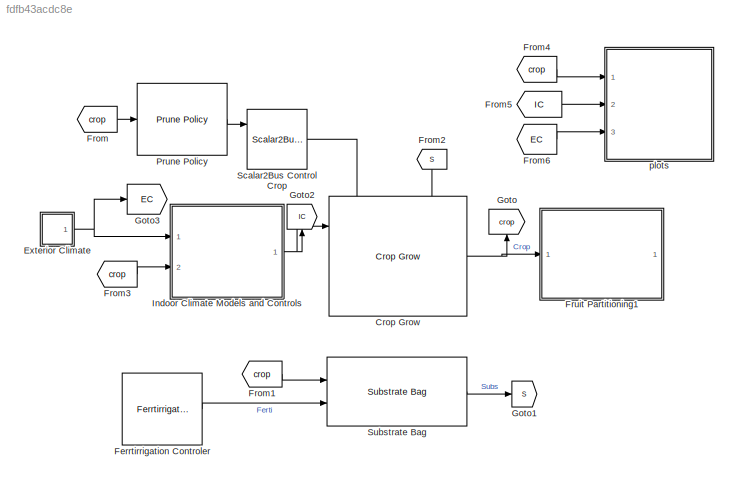
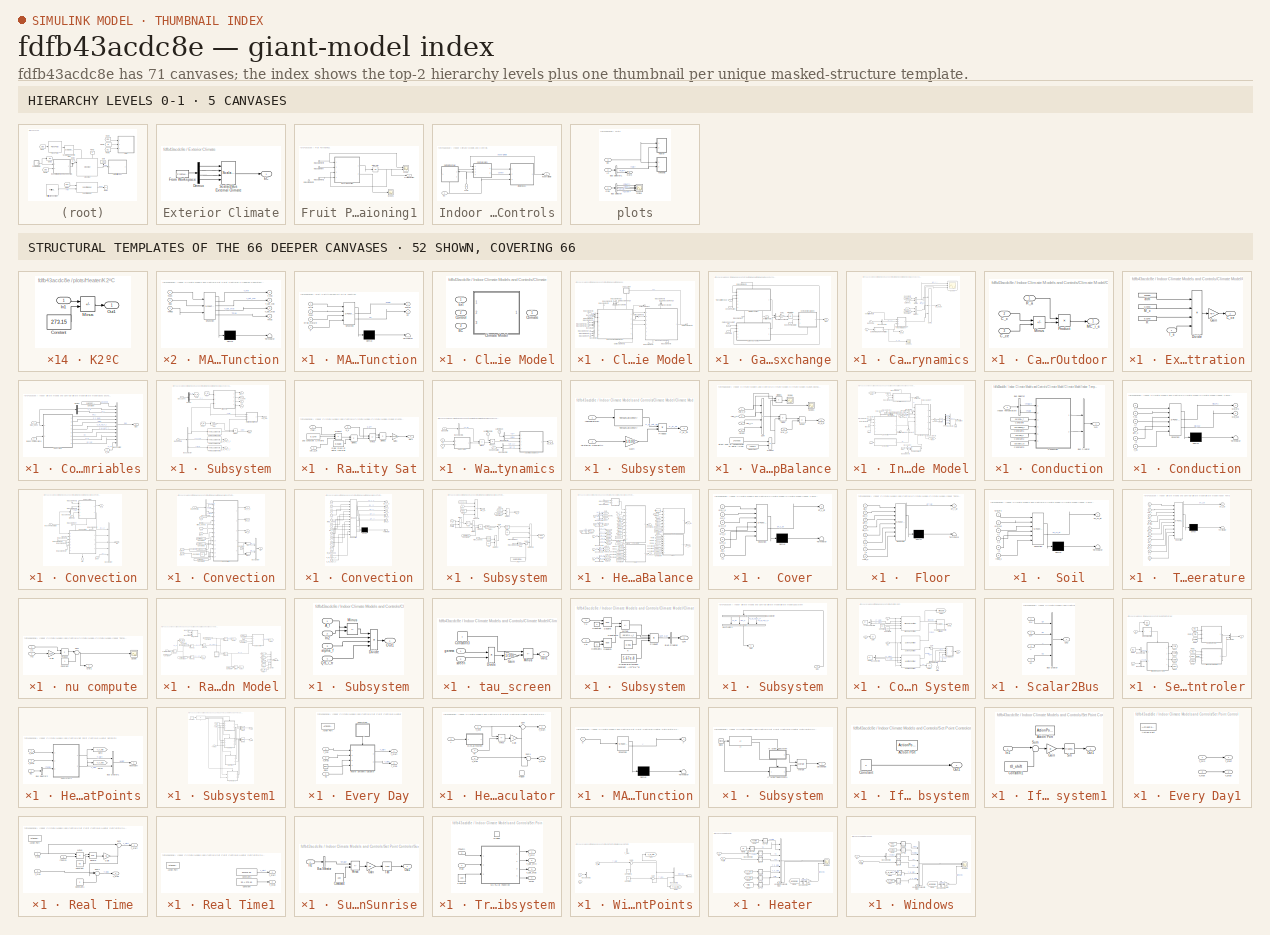
[diagram: thumbnail index - top-2 hierarchy levels (5 canvases) + 52 structural-template representatives of the remaining 66 canvases]
MODEL slx_fdfb43acdc8e
KIND model
CONFIG AbsTol = auto
CONFIG EnableMultiTasking = off
CONFIG FixedStep = auto
CONFIG MaxStep = auto
CONFIG MinStep = auto
CONFIG RelTol = 1e-3
CONFIG SampleTimeConstraint = Unconstrained
CONFIG SolverName = ode23
CONFIG StartTime = 0.0
CONFIG StopTime = tspan(end)
BLOCK [Reference] Crop Grow  REF=HORTISIM/Horticulture/Models/Crop Grow
  Ports = [3, 1]
  SourceBlock = HORTISIM/Horticulture/Models/Crop Grow
  SourceProductName = Horti Simulator
BLOCK [SubSystem] Exterior Climate
  NameLocation = left
  Ports = [0, 1]
  RequestExecContextInheritance = off
BLOCK [Demux] Exterior Climate/Demux
  Ports = [1, 4]
BLOCK [Outport] Exterior Climate/EC
BLOCK [FromWorkspace] Exterior Climate/From Workspace
  VariableName = EC
BLOCK [Reference] Exterior Climate/Scalar2Bus External Climate  REF=HORTISIM/Other 
Functions/Scalar2Bus
External Climate
  Ports = [4, 1]
  SourceBlock = HORTISIM/Other \nFunctions/Scalar2Bus\nExternal Climate
  SourceProductName = Horti Simulator
  SourceType = SubSystem
BLOCK [Reference] Ferrtirrigation Controler  REF=HORTISIM/Horticulture/Controls/Ferrtirrigation
 Controler
  NameLocation = top
  Ports = [0, 1]
  SourceBlock = HORTISIM/Horticulture/Controls/Ferrtirrigation\n Controler
  SourceProductName = Horti Simulator
BLOCK [From] From
  GotoTag = crop
BLOCK [From] From1
  GotoTag = crop
BLOCK [From] From2
  GotoTag = S
  NameLocation = left
BLOCK [From] From3
  GotoTag = crop
BLOCK [From] From4
  GotoTag = crop
BLOCK [From] From5
  GotoTag = IC
BLOCK [From] From6
  GotoTag = EC
BLOCK [SubSystem] Fruit Partitioning1
  AncestorBlock = HORTISIM/Horticulture/Models/Fruit Partitioning1
  Ports = [1, 1]
  RequestExecContextInheritance = off
BLOCK [Outport] Fruit Partitioning1/Fruit Distribution
BLOCK [Inport] Fruit Partitioning1/In Bus Element
BLOCK [Inport] Fruit Partitioning1/In Bus Element1
BLOCK [Inport] Fruit Partitioning1/In Bus Element3
BLOCK [Inport] Fruit Partitioning1/In Bus Element4
BLOCK [Integrator] Fruit Partitioning1/Integrator
  InitialCondition = 1e-3
  Ports = [1, 1]
BLOCK [SubSystem] Fruit Partitioning1/MATLAB Function
  ErrorFcn = Stateflow.Translate.translate
  PermitHierarchicalResolution = ExplicitOnly
  Ports = [4, 2]
  RequestExecContextInheritance = off
  SFBlockType = MATLAB Function
  TreatAsAtomicUnit = on
BLOCK [Demux] Fruit Partitioning1/MATLAB Function/ Demux 
  Outputs = 1
  Ports = [1, 1]
BLOCK [S-Function] Fruit Partitioning1/MATLAB Function/ SFunction 
  EnableBusSupport = on
  FunctionName = sf_sfun
  PortCounts = [4 3]
  Ports = [4, 3]
  SFcnIsStateOwnerBlock = off
  SFunctionDeploymentMode = off
  Tag = Stateflow S-Function 8
BLOCK [Terminator] Fruit Partitioning1/MATLAB Function/ Terminator 
BLOCK [Inport] Fruit Partitioning1/MATLAB Function/Cfruit
BLOCK [Inport] Fruit Partitioning1/MATLAB Function/Cfruit_mature
  Port = 3
BLOCK [Outport] Fruit Partitioning1/MATLAB Function/DT
  Port = 2
BLOCK [Inport] Fruit Partitioning1/MATLAB Function/T
  Port = 4
BLOCK [Inport] Fruit Partitioning1/MATLAB Function/Tsum
  Port = 2
BLOCK [Outport] Fruit Partitioning1/MATLAB Function/dCmdt
BLOCK [Scope] Fruit Partitioning1/Scope
  Floating = off
  NumInputPorts = 2
  Ports = [2]
  ScopeSpecificationString = Simulink.scopes.TimeScopeBlockCfg('CurrentConfiguration', extmgr.ConfigurationSet(extmgr.Configuration('Core','General UI',true),extmgr.Configuration('Core','Source UI',true),extmgr.Configuration('Sources','WiredSimulink',true,'DataLoggingVariableName','ScopeData2'),extmgr.Configuration('Visuals','Time Domain',true,'SerializedDisplays',{struct('MinYLimReal','-0.09261','MaxYLimReal','0.84345','YLab...<+1598ch>
BLOCK [Scope] Fruit Partitioning1/Scope1
  Floating = off
  NumInputPorts = 1
  Ports = [1]
  ScopeSpecificationString = Simulink.scopes.TimeScopeBlockCfg('CurrentConfiguration', extmgr.ConfigurationSet(extmgr.Configuration('Core','General UI',true),extmgr.Configuration('Core','Source UI',true),extmgr.Configuration('Sources','WiredSimulink',true,'DataLoggingVariableName','ScopeData1'),extmgr.Configuration('Visuals','Time Domain',true,'SerializedDisplays',{struct('MinYLimReal','-0.00625','MaxYLimReal','0.05625','YLab...<+1406ch>
BLOCK [Goto] Goto
  GotoTag = crop
  NameLocation = right
BLOCK [Goto] Goto1
  GotoTag = S
BLOCK [Goto] Goto2
  GotoTag = IC
  NameLocation = right
BLOCK [Goto] Goto3
  GotoTag = EC
BLOCK [SubSystem] Indoor Climate Models and Controls
  Ports = [2, 1]
  RequestExecContextInheritance = off
BLOCK [SubSystem] Indoor Climate Models and Controls/Climate Model
  LabelModeActiveChoice = Choice
  Ports = [3, 1]
  RequestExecContextInheritance = off
  Variant = on
  VariantControl = Choice
  VariantControlMode = label
BLOCK [Outport] Indoor Climate Models and Controls/Climate Model/Climate
BLOCK [SubSystem] Indoor Climate Models and Controls/Climate Model/Climate Model
  AncestorBlock = HORTISIM/Climate/Models/Climate Model
  Ports = [3, 1]
  RequestExecContextInheritance = off
  VariantControl = Choice
BLOCK [BusCreator] Indoor Climate Models and Controls/Climate Model/Climate Model/Bus Creator
  DisplayOption = bar
  InheritFromInputs = on
  Inputs = 3
  Ports = [3, 1]
BLOCK [BusCreator] Indoor Climate Models and Controls/Climate Model/Climate Model/Bus Creator1
  DisplayOption = bar
  InheritFromInputs = on
  Inputs = 3
  Ports = [3, 1]
BLOCK [BusCreator] Indoor Climate Models and Controls/Climate Model/Climate Model/Bus Creator2
  DisplayOption = bar
  InheritFromInputs = on
  Inputs = 2
  NameLocation = left
  Ports = [2, 1]
BLOCK [BusCreator] Indoor Climate Models and Controls/Climate Model/Climate Model/Bus Creator3
  DisplayOption = bar
  InheritFromInputs = on
  Inputs = 3
  NameLocation = left
  Ports = [3, 1]
BLOCK [BusCreator] Indoor Climate Models and Controls/Climate Model/Climate Model/Bus Creator4
  DisplayOption = bar
  InheritFromInputs = on
  Inputs = 2
  Ports = [2, 1]
BLOCK [SubSystem] Indoor Climate Models and Controls/Climate Model/Climate Model/Gases Exchange
  NameLocation = top
  PortSchema = {"entries":[{"content":{"sides":[{"content":{"connectorIds":["In1","In2","In3","In4"]},"type":"ConnectorPlacement.EquallySpacedRectSide","uuid":"550da9a1-5f22-4db3-9ee3-e3750278f626"},{"content":{"connectorIds":["Out1"],"side":"RIGHT"},"type":"ConnectorPlacement.EquallySpacedRectSide","uuid":"cf559ec0-337d-42e7-96bb-a49ff9e682f6"},{"content":{"connectorIds":["In5"],"side":"TOP"},"type":"ConnectorP...<+418ch>
  Ports = [7, 1]
  RequestExecContextInheritance = off
BLOCK [Outport] Indoor Climate Models and Controls/Climate Model/Climate Model/Gases Exchange/ Gas
BLOCK [Inport] Indoor Climate Models and Controls/Climate Model/Climate Model/Gases Exchange/CO2 Pump
  Port = 7
BLOCK [Inport] Indoor Climate Models and Controls/Climate Model/Climate Model/Gases Exchange/Carbon Consumption
  Port = 6
BLOCK [SubSystem] Indoor Climate Models and Controls/Climate Model/Climate Model/Gases Exchange/Carbon Dynamics
  PortSchema = {"entries":[{"content":{"sides":[{"content":{"connectorIds":["In1","In2","In3"]},"type":"ConnectorPlacement.EquallySpacedRectSide","uuid":"ce6da3e3-21f1-4394-8848-c3b9ed37cfe4"},{"content":{"connectorIds":["Out1","Out2"],"side":"RIGHT"},"type":"ConnectorPlacement.EquallySpacedRectSide","uuid":"ff9d1dc7-ad1d-4f02-8424-55a857bc099f"},{"content":{"connectorIds":["In4","In5"],"side":"TOP"},"type":"Con...<+270ch>
  Ports = [5, 2]
  RequestExecContextInheritance = off
BLOCK [BusSelector] Indoor Climate Models and Controls/Climate Model/Climate Model/Gases Exchange/Carbon Dynamics/Bus Selector1
  OutputSignals = C_c
  Ports = [1, 1]
BLOCK [Outport] Indoor Climate Models and Controls/Climate Model/Climate Model/Gases Exchange/Carbon Dynamics/C_ce
  Port = 2
BLOCK [SubSystem] Indoor Climate Models and Controls/Climate Model/Climate Model/Gases Exchange/Carbon Dynamics/Carbon Exchange Indoor-Outdoor
  Ports = [3, 1]
  RequestExecContextInheritance = off
BLOCK [Inport] Indoor Climate Models and Controls/Climate Model/Climate Model/Gases Exchange/Carbon Dynamics/Carbon Exchange Indoor-Outdoor/C_c
  Port = 2
BLOCK [Inport] Indoor Climate Models and Controls/Climate Model/Climate Model/Gases Exchange/Carbon Dynamics/Carbon Exchange Indoor-Outdoor/C_ce
  Port = 3
BLOCK [Outport] Indoor Climate Models and Controls/Climate Model/Climate Model/Gases Exchange/Carbon Dynamics/Carbon Exchange Indoor-Outdoor/MC_i_e
BLOCK [Sum] Indoor Climate Models and Controls/Climate Model/Climate Model/Gases Exchange/Carbon Dynamics/Carbon Exchange Indoor-Outdoor/Minus
  IconShape = rectangular
  Inputs = +-
  Ports = [2, 1]
BLOCK [Product] Indoor Climate Models and Controls/Climate Model/Climate Model/Gases Exchange/Carbon Dynamics/Carbon Exchange Indoor-Outdoor/Product
  Ports = [2, 1]
BLOCK [Inport] Indoor Climate Models and Controls/Climate Model/Climate Model/Gases Exchange/Carbon Dynamics/Carbon Exchange Indoor-Outdoor/R_a
BLOCK [Inport] Indoor Climate Models and Controls/Climate Model/Climate Model/Gases Exchange/Carbon Dynamics/CarbonC
BLOCK [Constant] Indoor Climate Models and Controls/Climate Model/Climate Model/Gases Exchange/Carbon Dynamics/Constant
  Value = params.V
BLOCK [Constant] Indoor Climate Models and Controls/Climate Model/Climate Model/Gases Exchange/Carbon Dynamics/Constant1
  Value = params.V
BLOCK [Product] Indoor Climate Models and Controls/Climate Model/Climate Model/Gases Exchange/Carbon Dynamics/Divide
  Inputs = /*
  Ports = [2, 1]
BLOCK [Product] Indoor Climate Models and Controls/Climate Model/Climate Model/Gases Exchange/Carbon Dynamics/Divide1
  Inputs = */
  Ports = [2, 1]
BLOCK [SubSystem] Indoor Climate Models and Controls/Climate Model/Climate Model/Gases Exchange/Carbon Dynamics/External CO2 Concentration
  Ports = [1, 1]
  RequestExecContextInheritance = off
BLOCK [Outport] Indoor Climate Models and Controls/Climate Model/Climate Model/Gases Exchange/Carbon Dynamics/External CO2 Concentration/C_ce
BLOCK [Product] Indoor Climate Models and Controls/Climate Model/Climate Model/Gases Exchange/Carbon Dynamics/External CO2 Concentration/Divide
  Inputs = **//
  Ports = [4, 1]
BLOCK [Gain] Indoor Climate Models and Controls/Climate Model/Climate Model/Gases Exchange/Carbon Dynamics/External CO2 Concentration/Gain
  Gain = 4e-4
BLOCK [Constant] Indoor Climate Models and Controls/Climate Model/Climate Model/Gases Exchange/Carbon Dynamics/External CO2 Concentration/M_c
  Value = 0.0440
BLOCK [Constant] Indoor Climate Models and Controls/Climate Model/Climate Model/Gases Exchange/Carbon Dynamics/External CO2 Concentration/R
  Value = 8.3140
BLOCK [Inport] Indoor Climate Models and Controls/Climate Model/Climate Model/Gases Exchange/Carbon Dynamics/External CO2 Concentration/T_e
BLOCK [Constant] Indoor Climate Models and Controls/Climate Model/Climate Model/Gases Exchange/Carbon Dynamics/External CO2 Concentration/atm
  Value = 101300
BLOCK [Inport] Indoor Climate Models and Controls/Climate Model/Climate Model/Gases Exchange/Carbon Dynamics/GasComp
  Port = 3
BLOCK [Inport] Indoor Climate Models and Controls/Climate Model/Climate Model/Gases Exchange/Carbon Dynamics/MC_cc_i
  Port = 2
BLOCK [Scope] Indoor Climate Models and Controls/Climate Model/Climate Model/Gases Exchange/Carbon Dynamics/Scope
  Floating = off
  NumInputPorts = 3
  Ports = [3]
  ScopeSpecificationString = Simulink.scopes.TimeScopeBlockCfg('CurrentConfiguration', extmgr.ConfigurationSet(extmgr.Configuration('Core','General UI',true),extmgr.Configuration('Core','Source UI',true),extmgr.Configuration('Sources','WiredSimulink',true,'DataLoggingVariableName','ScopeData9'),extmgr.Configuration('Visuals','Time Domain',true,'SerializedDisplays',{struct('MinYLimReal','-0.00000004','MaxYLimReal','0.000000016...<+2820ch>
BLOCK [Scope] Indoor Climate Models and Controls/Climate Model/Climate Model/Gases Exchange/Carbon Dynamics/Scope1
  Floating = off
  NumInputPorts = 1
  Ports = [1]
  ScopeSpecificationString = Simulink.scopes.TimeScopeBlockCfg('CurrentConfiguration', extmgr.ConfigurationSet(extmgr.Configuration('Core','General UI',true),extmgr.Configuration('Core','Source UI',true),extmgr.Configuration('Sources','WiredSimulink',true,'DataLoggingVariableName','ScopeData1'),extmgr.Configuration('Visuals','Time Domain',true,'SerializedDisplays',{struct('MinYLimReal','0.000723','MaxYLimReal','0.000797','YLa...<+1423ch>
BLOCK [Sum] Indoor Climate Models and Controls/Climate Model/Climate Model/Gases Exchange/Carbon Dynamics/Sum1
  IconShape = rectangular
  Inputs = |++-
  Ports = [3, 1]
BLOCK [Inport] Indoor Climate Models and Controls/Climate Model/Climate Model/Gases Exchange/Carbon Dynamics/Te
  Port = 4
BLOCK [Inport] Indoor Climate Models and Controls/Climate Model/Climate Model/Gases Exchange/Carbon Dynamics/Ventilation Rate
  Port = 5
BLOCK [Outport] Indoor Climate Models and Controls/Climate Model/Climate Model/Gases Exchange/Carbon Dynamics/dC_c_dt
BLOCK [SubSystem] Indoor Climate Models and Controls/Climate Model/Climate Model/Gases Exchange/Compute Mid Variables
  PortSchema = {"entries":[{"content":{"sides":[{"content":{"connectorIds":["In1","In2"]},"type":"ConnectorPlacement.EquallySpacedRectSide","uuid":"c9e251e2-f19d-4856-b15c-3b9f1eb64f83"},{"content":{"connectorIds":["Out1"],"side":"RIGHT"},"type":"ConnectorPlacement.EquallySpacedRectSide","uuid":"10734817-c937-42fb-8ae5-9505620c6f0f"},{"content":{"connectorIds":[],"side":"TOP"},"type":"ConnectorPlacement.EquallyS...<+395ch>
  Ports = [3, 1]
  RequestExecContextInheritance = off
BLOCK [BusCreator] Indoor Climate Models and Controls/Climate Model/Climate Model/Gases Exchange/Compute Mid Variables/Bus Creator
  DisplayOption = bar
  InheritFromInputs = on
  Inputs = 12
  Ports = [12, 1]
BLOCK [Inport] Indoor Climate Models and Controls/Climate Model/Climate Model/Gases Exchange/Compute Mid Variables/C_ce
  Port = 3
BLOCK [Constant] Indoor Climate Models and Controls/Climate Model/Climate Model/Gases Exchange/Compute Mid Variables/Constant
  Value = params.int_air_speed
BLOCK [Demux] Indoor Climate Models and Controls/Climate Model/Climate Model/Gases Exchange/Compute Mid Variables/Demux
  Outputs = 2
  Ports = [1, 2]
BLOCK [Outport] Indoor Climate Models and Controls/Climate Model/Climate Model/Gases Exchange/Compute Mid Variables/Gas
BLOCK [Inport] Indoor Climate Models and Controls/Climate Model/Climate Model/Gases Exchange/Compute Mid Variables/Gas_Conc
BLOCK [Inport] Indoor Climate Models and Controls/Climate Model/Climate Model/Gases Exchange/Compute Mid Variables/Indoor Temperature
  Port = 2
BLOCK [SubSystem] Indoor Climate Models and Controls/Climate Model/Climate Model/Gases Exchange/Compute Mid Variables/Subsystem
  Ports = [2, 8]
  RequestExecContextInheritance = off
BLOCK [SubSystem] Indoor Climate Models and Controls/Climate Model/Climate Model/Gases Exchange/Compute Mid Variables/Subsystem/Air Density
  ErrorFcn = Stateflow.Translate.translate
  PermitHierarchicalResolution = ExplicitOnly
  Ports = [3, 4]
  RequestExecContextInheritance = off
  SFBlockType = MATLAB Function
  TreatAsAtomicUnit = on
BLOCK [Demux] Indoor Climate Models and Controls/Climate Model/Climate Model/Gases Exchange/Compute Mid Variables/Subsystem/Air Density/ Demux 
  Outputs = 1
  Ports = [1, 1]
BLOCK [S-Function] Indoor Climate Models and Controls/Climate Model/Climate Model/Gases Exchange/Compute Mid Variables/Subsystem/Air Density/ SFunction 
  EnableBusSupport = on
  FunctionName = sf_sfun
  PortCounts = [3 5]
  Ports = [3, 5]
  SFcnIsStateOwnerBlock = off
  SFunctionDeploymentMode = off
  Tag = Stateflow S-Function 4
BLOCK [Terminator] Indoor Climate Models and Controls/Climate Model/Climate Model/Gases Exchange/Compute Mid Variables/Subsystem/Air Density/ Terminator 
BLOCK [Inport] Indoor Climate Models and Controls/Climate Model/Climate Model/Gases Exchange/Compute Mid Variables/Subsystem/Air Density/C_c
  Port = 2
BLOCK [Outport] Indoor Climate Models and Controls/Climate Model/Climate Model/Gases Exchange/Compute Mid Variables/Subsystem/Air Density/C_c_ppm
  Port = 2
BLOCK [Inport] Indoor Climate Models and Controls/Climate Model/Climate Model/Gases Exchange/Compute Mid Variables/Subsystem/Air Density/C_w
BLOCK [Inport] Indoor Climate Models and Controls/Climate Model/Climate Model/Gases Exchange/Compute Mid Variables/Subsystem/Air Density/T_i
  Port = 3
BLOCK [Outport] Indoor Climate Models and Controls/Climate Model/Climate Model/Gases Exchange/Compute Mid Variables/Subsystem/Air Density/p_a
  Port = 4
BLOCK [Outport] Indoor Climate Models and Controls/Climate Model/Climate Model/Gases Exchange/Compute Mid Variables/Subsystem/Air Density/rho_i
BLOCK [Outport] Indoor Climate Models and Controls/Climate Model/Climate Model/Gases Exchange/Compute Mid Variables/Subsystem/Air Density/xH
  Port = 3
BLOCK [BusSelector] Indoor Climate Models and Controls/Climate Model/Climate Model/Gases Exchange/Compute Mid Variables/Subsystem/Bus Selector
  OutputSignals = Tair,Tcover,Tfloor
  Ports = [1, 3]
BLOCK [Outport] Indoor Climate Models and Controls/Climate Model/Climate Model/Gases Exchange/Compute Mid Variables/Subsystem/C_c_ppm
  Port = 2
BLOCK [Outport] Indoor Climate Models and Controls/Climate Model/Climate Model/Gases Exchange/Compute Mid Variables/Subsystem/C_w_sat_T_c
  Port = 4
BLOCK [Outport] Indoor Climate Models and Controls/Climate Model/Climate Model/Gases Exchange/Compute Mid Variables/Subsystem/C_w_sat_T_f
  Port = 5
BLOCK [Demux] Indoor Climate Models and Controls/Climate Model/Climate Model/Gases Exchange/Compute Mid Variables/Subsystem/Demux
  Outputs = 2
  Ports = [1, 2]
BLOCK [Product] Indoor Climate Models and Controls/Climate Model/Climate Model/Gases Exchange/Compute Mid Variables/Subsystem/Divide
  Inputs = */
  Ports = [2, 1]
BLOCK [From] Indoor Climate Models and Controls/Climate Model/Climate Model/Gases Exchange/Compute Mid Variables/Subsystem/From
  GotoTag = C_w
BLOCK [From] Indoor Climate Models and Controls/Climate Model/Climate Model/Gases Exchange/Compute Mid Variables/Subsystem/From2
  GotoTag = C_w
BLOCK [Gain] Indoor Climate Models and Controls/Climate Model/Climate Model/Gases Exchange/Compute Mid Variables/Subsystem/Gain
  Gain = 100
BLOCK [Inport] Indoor Climate Models and Controls/Climate Model/Climate Model/Gases Exchange/Compute Mid Variables/Subsystem/Gas_Conc
BLOCK [Goto] Indoor Climate Models and Controls/Climate Model/Climate Model/Gases Exchange/Compute Mid Variables/Subsystem/Goto
  GotoTag = C_w
BLOCK [Outport] Indoor Climate Models and Controls/Climate Model/Climate Model/Gases Exchange/Compute Mid Variables/Subsystem/HRInt
  Port = 3
BLOCK [Inport] Indoor Climate Models and Controls/Climate Model/Climate Model/Gases Exchange/Compute Mid Variables/Subsystem/IndoorTemp
  Port = 2
BLOCK [SubSystem] Indoor Climate Models and Controls/Climate Model/Climate Model/Gases Exchange/Compute Mid Variables/Subsystem/Ratio of Humidity Sat
  Ports = [3, 1]
  RequestExecContextInheritance = off
BLOCK [Constant] Indoor Climate Models and Controls/Climate Model/Climate Model/Gases Exchange/Compute Mid Variables/Subsystem/Ratio of Humidity Sat/ molar mass of water [kg//mol]
  Value = 0.0180
BLOCK [Inport] Indoor Climate Models and Controls/Climate Model/Climate Model/Gases Exchange/Compute Mid Variables/Subsystem/Ratio of Humidity Sat/<Tair>
BLOCK [Product] Indoor Climate Models and Controls/Climate Model/Climate Model/Gases Exchange/Compute Mid Variables/Subsystem/Ratio of Humidity Sat/Divide1
  Inputs = */
  Ports = [2, 1]
BLOCK [Product] Indoor Climate Models and Controls/Climate Model/Climate Model/Gases Exchange/Compute Mid Variables/Subsystem/Ratio of Humidity Sat/Divide2
  Inputs = */
  Ports = [2, 1]
BLOCK [Gain] Indoor Climate Models and Controls/Climate Model/Climate Model/Gases Exchange/Compute Mid Variables/Subsystem/Ratio of Humidity Sat/Gain1
  Gain = 0.62198
BLOCK [Sum] Indoor Climate Models and Controls/Climate Model/Climate Model/Gases Exchange/Compute Mid Variables/Subsystem/Ratio of Humidity Sat/Minus
  IconShape = rectangular
  Inputs = +-
  Ports = [2, 1]
BLOCK [Outport] Indoor Climate Models and Controls/Climate Model/Climate Model/Gases Exchange/Compute Mid Variables/Subsystem/Ratio of Humidity Sat/Out1
BLOCK [Product] Indoor Climate Models and Controls/Climate Model/Climate Model/Gases Exchange/Compute Mid Variables/Subsystem/Ratio of Humidity Sat/Product
  Inputs = 3
  Ports = [3, 1]
BLOCK [Constant] Indoor Climate Models and Controls/Climate Model/Climate Model/Gases Exchange/Compute Mid Variables/Subsystem/Ratio of Humidity Sat/gas constant [J//mol//K]
  Value = 8.3140
BLOCK [Inport] Indoor Climate Models and Controls/Climate Model/Climate Model/Gases Exchange/Compute Mid Variables/Subsystem/Ratio of Humidity Sat/p_a
  Port = 2
BLOCK [Inport] Indoor Climate Models and Controls/Climate Model/Climate Model/Gases Exchange/Compute Mid Variables/Subsystem/Ratio of Humidity Sat/sat_C_w
  Port = 3
BLOCK [Reference] Indoor Climate Models and Controls/Climate Model/Climate Model/Gases Exchange/Compute Mid Variables/Subsystem/Temp2SatDensity  REF=HORTISIM/Other 
Functions/Temp2SatDensity
  Ports = [1, 1]
  SourceBlock = HORTISIM/Other \nFunctions/Temp2SatDensity
  SourceProductName = Horti Simulator
  SourceType = SubSystem
BLOCK [Reference] Indoor Climate Models and Controls/Climate Model/Climate Model/Gases Exchange/Compute Mid Variables/Subsystem/Temp2SatDensity1  REF=HORTISIM/Other 
Functions/Temp2SatDensity
  Ports = [1, 1]
  SourceBlock = HORTISIM/Other \nFunctions/Temp2SatDensity
  SourceProductName = Horti Simulator
  SourceType = SubSystem
BLOCK [Reference] Indoor Climate Models and Controls/Climate Model/Climate Model/Gases Exchange/Compute Mid Variables/Subsystem/Temp2SatDensity2  REF=HORTISIM/Other 
Functions/Temp2SatDensity
  Ports = [1, 1]
  SourceBlock = HORTISIM/Other \nFunctions/Temp2SatDensity
  SourceProductName = Horti Simulator
  SourceType = SubSystem
BLOCK [Outport] Indoor Climate Models and Controls/Climate Model/Climate Model/Gases Exchange/Compute Mid Variables/Subsystem/p_a
  Port = 7
BLOCK [Outport] Indoor Climate Models and Controls/Climate Model/Climate Model/Gases Exchange/Compute Mid Variables/Subsystem/rho_i
BLOCK [Outport] Indoor Climate Models and Controls/Climate Model/Climate Model/Gases Exchange/Compute Mid Variables/Subsystem/xH
  Port = 6
BLOCK [Outport] Indoor Climate Models and Controls/Climate Model/Climate Model/Gases Exchange/Compute Mid Variables/Subsystem/xH_sat
  Port = 8
BLOCK [Inport] Indoor Climate Models and Controls/Climate Model/Climate Model/Gases Exchange/Condensation
  Port = 4
BLOCK [Gain] Indoor Climate Models and Controls/Climate Model/Climate Model/Gases Exchange/Gain1
  Gain = 24*3600
BLOCK [Inport] Indoor Climate Models and Controls/Climate Model/Climate Model/Gases Exchange/In Bus Element
  Port = 5
BLOCK [Inport] Indoor Climate Models and Controls/Climate Model/Climate Model/Gases Exchange/In Bus Element1
  Port = 5
BLOCK [Inport] Indoor Climate Models and Controls/Climate Model/Climate Model/Gases Exchange/Indoor Temperature
BLOCK [Integrator] Indoor Climate Models and Controls/Climate Model/Climate Model/Gases Exchange/Integrator1
  AbsoluteTolerance = 1e-5
  InitialCondition = x0.G0
  Ports = [1, 1]
BLOCK [Inport] Indoor Climate Models and Controls/Climate Model/Climate Model/Gases Exchange/Transpiration Heat
  Port = 2
BLOCK [Concatenate] Indoor Climate Models and Controls/Climate Model/Climate Model/Gases Exchange/Vector Concatenate
  Ports = [2, 1]
BLOCK [Inport] Indoor Climate Models and Controls/Climate Model/Climate Model/Gases Exchange/Ventilation Rate
  NameLocation = top
  Port = 3
BLOCK [SubSystem] Indoor Climate Models and Controls/Climate Model/Climate Model/Gases Exchange/Water Dynamics
  PortSchema = {"entries":[{"content":{"sides":[{"content":{"connectorIds":["In1","In2","In3"]},"type":"ConnectorPlacement.EquallySpacedRectSide","uuid":"ce6da3e3-21f1-4394-8848-c3b9ed37cfe4"},{"content":{"connectorIds":["Out1"],"side":"RIGHT"},"type":"ConnectorPlacement.EquallySpacedRectSide","uuid":"ff9d1dc7-ad1d-4f02-8424-55a857bc099f"},{"content":{"connectorIds":["In4"],"side":"TOP"},"type":"ConnectorPlaceme...<+412ch>
  Ports = [6, 1]
  RequestExecContextInheritance = off
BLOCK [BusSelector] Indoor Climate Models and Controls/Climate Model/Climate Model/Gases Exchange/Water Dynamics/Bus Selector
  OutputSignals = QT,Qfog
  Ports = [1, 2]
BLOCK [BusSelector] Indoor Climate Models and Controls/Climate Model/Climate Model/Gases Exchange/Water Dynamics/Bus Selector1
  OutputSignals = C_w
  Ports = [1, 1]
BLOCK [BusSelector] Indoor Climate Models and Controls/Climate Model/Climate Model/Gases Exchange/Water Dynamics/Bus Selector2
  OutputSignals = QP_i_c,QP_i_f
  Ports = [1, 2]
BLOCK [Inport] Indoor Climate Models and Controls/Climate Model/Climate Model/Gases Exchange/Water Dynamics/Condensation
  Port = 3
BLOCK [Inport] Indoor Climate Models and Controls/Climate Model/Climate Model/Gases Exchange/Water Dynamics/GasComp
BLOCK [Inport] Indoor Climate Models and Controls/Climate Model/Climate Model/Gases Exchange/Water Dynamics/He
  Port = 4
BLOCK [Inport] Indoor Climate Models and Controls/Climate Model/Climate Model/Gases Exchange/Water Dynamics/Latent Heat
  NameLocation = left
  Port = 2
BLOCK [Sum] Indoor Climate Models and Controls/Climate Model/Climate Model/Gases Exchange/Water Dynamics/Minus
  IconShape = rectangular
  Inputs = +-
  Ports = [2, 1]
BLOCK [Product] Indoor Climate Models and Controls/Climate Model/Climate Model/Gases Exchange/Water Dynamics/Product
  Ports = [2, 1]
BLOCK [SubSystem] Indoor Climate Models and Controls/Climate Model/Climate Model/Gases Exchange/Water Dynamics/Subsystem
  Ports = [2, 1]
  RequestExecContextInheritance = off
BLOCK [Inport] Indoor Climate Models and Controls/Climate Model/Climate Model/Gases Exchange/Water Dynamics/Subsystem/<Exterior Humidity>
  Port = 2
BLOCK [Inport] Indoor Climate Models and Controls/Climate Model/Climate Model/Gases Exchange/Water Dynamics/Subsystem/<Temperature>
BLOCK [Outport] Indoor Climate Models and Controls/Climate Model/Climate Model/Gases Exchange/Water Dynamics/Subsystem/C_w_Te
BLOCK [Gain] Indoor Climate Models and Controls/Climate Model/Climate Model/Gases Exchange/Water Dynamics/Subsystem/Gain
  Gain = 1/100
BLOCK [Product] Indoor Climate Models and Controls/Climate Model/Climate Model/Gases Exchange/Water Dynamics/Subsystem/Product
  Ports = [2, 1]
BLOCK [Reference] Indoor Climate Models and Controls/Climate Model/Climate Model/Gases Exchange/Water Dynamics/Subsystem/Temp2SatDensity  REF=HORTISIM/Other 
Functions/Temp2SatDensity
  Ports = [1, 1]
  SourceBlock = HORTISIM/Other \nFunctions/Temp2SatDensity
  SourceProductName = Horti Simulator
  SourceType = SubSystem
BLOCK [Inport] Indoor Climate Models and Controls/Climate Model/Climate Model/Gases Exchange/Water Dynamics/Te
  Port = 5
BLOCK [SubSystem] Indoor Climate Models and Controls/Climate Model/Climate Model/Gases Exchange/Water Dynamics/Vapor Mass Balance
  Ports = [5, 1]
  RequestExecContextInheritance = off
BLOCK [Inport] Indoor Climate Models and Controls/Climate Model/Climate Model/Gases Exchange/Water Dynamics/Vapor Mass Balance/<QP_i_c>
  Port = 4
BLOCK [Inport] Indoor Climate Models and Controls/Climate Model/Climate Model/Gases Exchange/Water Dynamics/Vapor Mass Balance/<QP_i_f>
  Port = 5
BLOCK [Inport] Indoor Climate Models and Controls/Climate Model/Climate Model/Gases Exchange/Water Dynamics/Vapor Mass Balance/<QT_v_i>
BLOCK [Inport] Indoor Climate Models and Controls/Climate Model/Climate Model/Gases Exchange/Water Dynamics/Vapor Mass Balance/<Qfog>
  Port = 2
BLOCK [Constant] Indoor Climate Models and Controls/Climate Model/Climate Model/Gases Exchange/Water Dynamics/Vapor Mass Balance/Constant1
  Value = params.V
BLOCK [Product] Indoor Climate Models and Controls/Climate Model/Climate Model/Gases Exchange/Water Dynamics/Vapor Mass Balance/Divide
  Inputs = */
  Ports = [2, 1]
BLOCK [Product] Indoor Climate Models and Controls/Climate Model/Climate Model/Gases Exchange/Water Dynamics/Vapor Mass Balance/Divide1
  Inputs = */
  Ports = [2, 1]
BLOCK [Inport] Indoor Climate Models and Controls/Climate Model/Climate Model/Gases Exchange/Water Dynamics/Vapor Mass Balance/MW_i_e
  Port = 3
BLOCK [Sum] Indoor Climate Models and Controls/Climate Model/Climate Model/Gases Exchange/Water Dynamics/Vapor Mass Balance/Minus
  IconShape = rectangular
  Inputs = +-
  Ports = [2, 1]
BLOCK [Product] Indoor Climate Models and Controls/Climate Model/Climate Model/Gases Exchange/Water Dynamics/Vapor Mass Balance/Product
  Ports = [2, 1]
BLOCK [Scope] Indoor Climate Models and Controls/Climate Model/Climate Model/Gases Exchange/Water Dynamics/Vapor Mass Balance/Scope
  Floating = off
  NumInputPorts = 1
  Ports = [1]
  ScopeSpecificationString = Simulink.scopes.TimeScopeBlockCfg('CurrentConfiguration', extmgr.ConfigurationSet(extmgr.Configuration('Core','General UI',true),extmgr.Configuration('Core','Source UI',true),extmgr.Configuration('Sources','WiredSimulink',true,'DataLoggingVariableName','ScopeData1'),extmgr.Configuration('Visuals','Time Domain',true,'SerializedDisplays',{struct('MinYLimReal','-0.00000004','MaxYLimReal','0.00000038'...<+1412ch>
BLOCK [Scope] Indoor Climate Models and Controls/Climate Model/Climate Model/Gases Exchange/Water Dynamics/Vapor Mass Balance/Scope1
  Floating = off
  NumInputPorts = 1
  Ports = [1]
  ScopeSpecificationString = Simulink.scopes.TimeScopeBlockCfg('CurrentConfiguration', extmgr.ConfigurationSet(extmgr.Configuration('Core','General UI',true),extmgr.Configuration('Core','Source UI',true),extmgr.Configuration('Sources','WiredSimulink',true,'DataLoggingVariableName','ScopeData4'),extmgr.Configuration('Visuals','Time Domain',true,'SerializedDisplays',{struct('MinYLimReal','-2530.14826','MaxYLimReal','22771.3343'...<+1418ch>
BLOCK [Sum] Indoor Climate Models and Controls/Climate Model/Climate Model/Gases Exchange/Water Dynamics/Vapor Mass Balance/Sum
  IconShape = rectangular
  Inputs = |+--+
  Ports = [4, 1]
BLOCK [Outport] Indoor Climate Models and Controls/Climate Model/Climate Model/Gases Exchange/Water Dynamics/Vapor Mass Balance/dC_w_dt
BLOCK [Constant] Indoor Climate Models and Controls/Climate Model/Climate Model/Gases Exchange/Water Dynamics/Vapor Mass Balance/latent heat of condensation of water [J//kg]
  Value = 2437000
BLOCK [Inport] Indoor Climate Models and Controls/Climate Model/Climate Model/Gases Exchange/Water Dynamics/Ventilation Rate
  NameLocation = left
  Port = 6
BLOCK [Outport] Indoor Climate Models and Controls/Climate Model/Climate Model/Gases Exchange/Water Dynamics/dC_w_dt
BLOCK [Inport] Indoor Climate Models and Controls/Climate Model/Climate Model/In Bus Element1
BLOCK [Inport] Indoor Climate Models and Controls/Climate Model/Climate Model/In Bus Element10
  NameLocation = left
  Port = 3
BLOCK [Inport] Indoor Climate Models and Controls/Climate Model/Climate Model/In Bus Element11
  Port = 3
BLOCK [Inport] Indoor Climate Models and Controls/Climate Model/Climate Model/In Bus Element12
  Port = 3
BLOCK [Inport] Indoor Climate Models and Controls/Climate Model/Climate Model/In Bus Element13
  Port = 3
BLOCK [Inport] Indoor Climate Models and Controls/Climate Model/Climate Model/In Bus Element14
BLOCK [Inport] Indoor Climate Models and Controls/Climate Model/Climate Model/In Bus Element15
  NameLocation = left
  Port = 2
BLOCK [Inport] Indoor Climate Models and Controls/Climate Model/Climate Model/In Bus Element16
  NameLocation = left
  Port = 2
BLOCK [Inport] Indoor Climate Models and Controls/Climate Model/Climate Model/In Bus Element2
BLOCK [Inport] Indoor Climate Models and Controls/Climate Model/Climate Model/In Bus Element3
  NameLocation = left
  Port = 2
BLOCK [Inport] Indoor Climate Models and Controls/Climate Model/Climate Model/In Bus Element4
  Port = 2
BLOCK [Inport] Indoor Climate Models and Controls/Climate Model/Climate Model/In Bus Element5
  NameLocation = left
  Port = 2
BLOCK [Inport] Indoor Climate Models and Controls/Climate Model/Climate Model/In Bus Element6
  Port = 2
BLOCK [Inport] Indoor Climate Models and Controls/Climate Model/Climate Model/In Bus Element7
BLOCK [Inport] Indoor Climate Models and Controls/Climate Model/Climate Model/In Bus Element8
  Port = 2
BLOCK [Inport] Indoor Climate Models and Controls/Climate Model/Climate Model/In Bus Element9
  NameLocation = left
  Port = 3
BLOCK [SubSystem] Indoor Climate Models and Controls/Climate Model/Climate Model/Indoor Temperature Model
  PortSchema = {"entries":[{"content":{"sides":[{"content":{"connectorIds":["In1","In2","In3"]},"type":"ConnectorPlacement.EquallySpacedRectSide","uuid":"402556d7-b277-4cb3-8556-883bae99c69c"},{"content":{"connectorIds":["Out1","Out2","Out3","Out4"],"side":"RIGHT"},"type":"ConnectorPlacement.EquallySpacedRectSide","uuid":"e8ec9f82-8759-4d98-a5e5-ef4db996ec8c"},{"content":{"connectorIds":["In4","In5","In6"],"side...<+440ch>
  Ports = [6, 5]
  RequestExecContextInheritance = off
BLOCK [BusCreator] Indoor Climate Models and Controls/Climate Model/Climate Model/Indoor Temperature Model/Bus Creator
  DisplayOption = bar
  InheritFromInputs = on
  Inputs = 2
  Ports = [2, 1]
BLOCK [BusCreator] Indoor Climate Models and Controls/Climate Model/Climate Model/Indoor Temperature Model/Bus Creator1
  DisplayOption = bar
  InheritFromInputs = on
  Inputs = 2
  Ports = [2, 1]
BLOCK [BusCreator] Indoor Climate Models and Controls/Climate Model/Climate Model/Indoor Temperature Model/Bus Creator2
  DisplayOption = bar
  InheritFromInputs = on
  Inputs = 4
  NameLocation = left
  Ports = [4, 1]
BLOCK [BusCreator] Indoor Climate Models and Controls/Climate Model/Climate Model/Indoor Temperature Model/Bus Creator3
  DisplayOption = bar
  InheritFromInputs = on
  Inputs = 4
  Ports = [4, 1]
BLOCK [BusSelector] Indoor Climate Models and Controls/Climate Model/Climate Model/Indoor Temperature Model/Bus Selector
  OutputSignals = Tcover
  Ports = [1, 1]
BLOCK [Outport] Indoor Climate Models and Controls/Climate Model/Climate Model/Indoor Temperature Model/Condensation Heat
  NameLocation = left
  Port = 4
BLOCK [SubSystem] Indoor Climate Models and Controls/Climate Model/Climate Model/Indoor Temperature Model/Conduction
  Ports = [1, 1]
  RequestExecContextInheritance = off
BLOCK [BusCreator] Indoor Climate Models and Controls/Climate Model/Climate Model/Indoor Temperature Model/Conduction/Bus Creator
  DisplayOption = bar
  InheritFromInputs = on
  Inputs = 2
  Ports = [2, 1]
BLOCK [BusSelector] Indoor Climate Models and Controls/Climate Model/Climate Model/Indoor Temperature Model/Conduction/Bus Selector
  OutputSignals = Tfloor,Tsoil
  Ports = [1, 2]
BLOCK [SubSystem] Indoor Climate Models and Controls/Climate Model/Climate Model/Indoor Temperature Model/Conduction/Conduction
  ErrorFcn = Stateflow.Translate.translate
  NameLocation = top
  PermitHierarchicalResolution = ExplicitOnly
  Ports = [6, 2]
  RequestExecContextInheritance = off
  SFBlockType = MATLAB Function
  TreatAsAtomicUnit = on
BLOCK [Demux] Indoor Climate Models and Controls/Climate Model/Climate Model/Indoor Temperature Model/Conduction/Conduction/ Demux 
  Outputs = 1
  Ports = [1, 1]
BLOCK [S-Function] Indoor Climate Models and Controls/Climate Model/Climate Model/Indoor Temperature Model/Conduction/Conduction/ SFunction 
  EnableBusSupport = on
  FunctionName = sf_sfun
  PortCounts = [6 3]
  Ports = [6, 3]
  SFcnIsStateOwnerBlock = off
  SFunctionDeploymentMode = off
  Tag = Stateflow S-Function 6
BLOCK [Terminator] Indoor Climate Models and Controls/Climate Model/Climate Model/Indoor Temperature Model/Conduction/Conduction/ Terminator 
BLOCK [Inport] Indoor Climate Models and Controls/Climate Model/Climate Model/Indoor Temperature Model/Conduction/Conduction/A_f
  Port = 3
BLOCK [Outport] Indoor Climate Models and Controls/Climate Model/Climate Model/Indoor Temperature Model/Conduction/Conduction/QD_s12
  Port = 2
BLOCK [Outport] Indoor Climate Models and Controls/Climate Model/Climate Model/Indoor Temperature Model/Conduction/Conduction/QD_sf1
BLOCK [Inport] Indoor Climate Models and Controls/Climate Model/Climate Model/Indoor Temperature Model/Conduction/Conduction/T_f
BLOCK [Inport] Indoor Climate Models and Controls/Climate Model/Climate Model/Indoor Temperature Model/Conduction/Conduction/T_s1
  Port = 2
BLOCK [Inport] Indoor Climate Models and Controls/Climate Model/Climate Model/Indoor Temperature Model/Conduction/Conduction/T_ss
  Port = 6
BLOCK [Inport] Indoor Climate Models and Controls/Climate Model/Climate Model/Indoor Temperature Model/Conduction/Conduction/l_s
  Port = 5
BLOCK [Inport] Indoor Climate Models and Controls/Climate Model/Climate Model/Indoor Temperature Model/Conduction/Conduction/lam_s
  Port = 4
BLOCK [Constant] Indoor Climate Models and Controls/Climate Model/Climate Model/Indoor Temperature Model/Conduction/Constant
  Value = params.A_f
BLOCK [Constant] Indoor Climate Models and Controls/Climate Model/Climate Model/Indoor Temperature Model/Conduction/Constant1
  Value = params.lam_s
BLOCK [Constant] Indoor Climate Models and Controls/Climate Model/Climate Model/Indoor Temperature Model/Conduction/Constant2
  Value = params.l_s
BLOCK [Constant] Indoor Climate Models and Controls/Climate Model/Climate Model/Indoor Temperature Model/Conduction/Constant3
  Value = params.T_ss
BLOCK [Inport] Indoor Climate Models and Controls/Climate Model/Climate Model/Indoor Temperature Model/Conduction/Indoor Temperature
BLOCK [Outport] Indoor Climate Models and Controls/Climate Model/Climate Model/Indoor Temperature Model/Conduction/QD
BLOCK [SubSystem] Indoor Climate Models and Controls/Climate Model/Climate Model/Indoor Temperature Model/Convection
  PortSchema = {"entries":[{"content":{"sides":[{"content":{"connectorIds":["In1","In2","In3"]},"type":"ConnectorPlacement.EquallySpacedRectSide","uuid":"3a7e199a-659d-4634-89e1-ef85cb7ed502"},{"content":{"connectorIds":["Out1","Out2","Out3"],"side":"RIGHT"},"type":"ConnectorPlacement.EquallySpacedRectSide","uuid":"10ed7806-8be5-4e88-a0ca-6abfb5c9ab8d"},{"content":{"connectorIds":["In4","In5"],"side":"TOP"},"typ...<+421ch>
  Ports = [5, 3]
  RequestExecContextInheritance = off
BLOCK [BusCreator] Indoor Climate Models and Controls/Climate Model/Climate Model/Indoor Temperature Model/Convection/Bus Creator
  DisplayOption = bar
  InheritFromInputs = on
  Inputs = 5
  Ports = [5, 1]
BLOCK [BusSelector] Indoor Climate Models and Controls/Climate Model/Climate Model/Indoor Temperature Model/Convection/Bus Selector1
  OutputSignals = Tair
  Ports = [1, 1]
BLOCK [SubSystem] Indoor Climate Models and Controls/Climate Model/Climate Model/Indoor Temperature Model/Convection/Convection
  PortSchema = {"entries":[{"content":{"sides":[{"content":{"connectorIds":["In1","In2","In3","In4","In5"]},"type":"ConnectorPlacement.EquallySpacedRectSide","uuid":"490685c0-4e11-426f-bb8f-3f4d655c5ac7"},{"content":{"connectorIds":["Out1","Out2","Out3"],"side":"RIGHT"},"type":"ConnectorPlacement.EquallySpacedRectSide","uuid":"d4812e49-5d44-4dbe-a973-0d0765960a30"},{"content":{"connectorIds":["In6","In7"],"side"...<+439ch>
  Ports = [7, 4]
  RequestExecContextInheritance = off
BLOCK [BusCreator] Indoor Climate Models and Controls/Climate Model/Climate Model/Indoor Temperature Model/Convection/Convection/Bus Creator
  DisplayOption = bar
  InheritFromInputs = on
  Inputs = 2
  Ports = [2, 1]
BLOCK [BusSelector] Indoor Climate Models and Controls/Climate Model/Climate Model/Indoor Temperature Model/Convection/Convection/Bus Selector1
  OutputSignals = Tcover,Tair,Tfloor
  Ports = [1, 3]
BLOCK [Inport] Indoor Climate Models and Controls/Climate Model/Climate Model/Indoor Temperature Model/Convection/Convection/C_w
  Port = 7
BLOCK [Constant] Indoor Climate Models and Controls/Climate Model/Climate Model/Indoor Temperature Model/Convection/Convection/Constant
  Value = 0
BLOCK [Constant] Indoor Climate Models and Controls/Climate Model/Climate Model/Indoor Temperature Model/Convection/Convection/Constant1
  Value = params.A_f
BLOCK [Constant] Indoor Climate Models and Controls/Climate Model/Climate Model/Indoor Temperature Model/Convection/Convection/Constant2
  Value = params.A_f
BLOCK [Constant] Indoor Climate Models and Controls/Climate Model/Climate Model/Indoor Temperature Model/Convection/Convection/Constant3
  Value = params.d_c
BLOCK [Constant] Indoor Climate Models and Controls/Climate Model/Climate Model/Indoor Temperature Model/Convection/Convection/Constant4
  Value = 0.5
BLOCK [Constant] Indoor Climate Models and Controls/Climate Model/Climate Model/Indoor Temperature Model/Convection/Convection/Constant5
  Value = params.int_air_speed
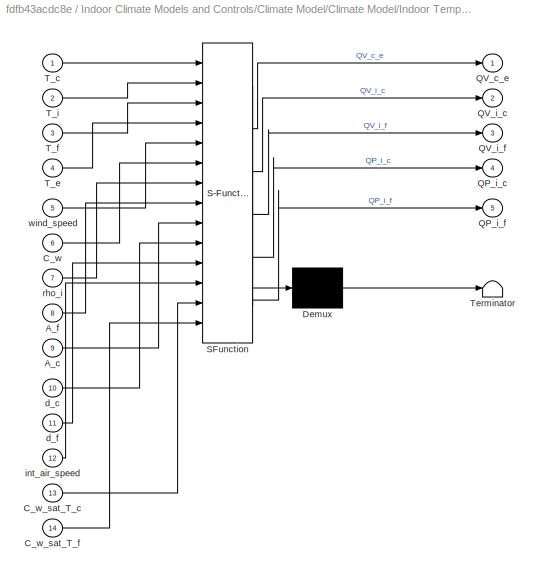
BLOCK [SubSystem] Indoor Climate Models and Controls/Climate Model/Climate Model/Indoor Temperature Model/Convection/Convection/Convection
  ErrorFcn = Stateflow.Translate.translate
  NameLocation = top
  PermitHierarchicalResolution = ExplicitOnly
  Ports = [14, 5]
  RequestExecContextInheritance = off
  SFBlockType = MATLAB Function
  TreatAsAtomicUnit = on
BLOCK [Demux] Indoor Climate Models and Controls/Climate Model/Climate Model/Indoor Temperature Model/Convection/Convection/Convection/ Demux 
  Outputs = 1
  Ports = [1, 1]
BLOCK [S-Function] Indoor Climate Models and Controls/Climate Model/Climate Model/Indoor Temperature Model/Convection/Convection/Convection/ SFunction 
  EnableBusSupport = on
  FunctionName = sf_sfun
  PortCounts = [14 6]
  Ports = [14, 6]
  SFcnIsStateOwnerBlock = off
  SFunctionDeploymentMode = off
  Tag = Stateflow S-Function 7
BLOCK [Terminator] Indoor Climate Models and Controls/Climate Model/Climate Model/Indoor Temperature Model/Convection/Convection/Convection/ Terminator 
BLOCK [Inport] Indoor Climate Models and Controls/Climate Model/Climate Model/Indoor Temperature Model/Convection/Convection/Convection/A_c
  Port = 9
BLOCK [Inport] Indoor Climate Models and Controls/Climate Model/Climate Model/Indoor Temperature Model/Convection/Convection/Convection/A_f
  Port = 8
BLOCK [Inport] Indoor Climate Models and Controls/Climate Model/Climate Model/Indoor Temperature Model/Convection/Convection/Convection/C_w
  Port = 6
BLOCK [Inport] Indoor Climate Models and Controls/Climate Model/Climate Model/Indoor Temperature Model/Convection/Convection/Convection/C_w_sat_T_c
  Port = 13
BLOCK [Inport] Indoor Climate Models and Controls/Climate Model/Climate Model/Indoor Temperature Model/Convection/Convection/Convection/C_w_sat_T_f
  Port = 14
BLOCK [Outport] Indoor Climate Models and Controls/Climate Model/Climate Model/Indoor Temperature Model/Convection/Convection/Convection/QP_i_c
  Port = 4
BLOCK [Outport] Indoor Climate Models and Controls/Climate Model/Climate Model/Indoor Temperature Model/Convection/Convection/Convection/QP_i_f
  Port = 5
BLOCK [Outport] Indoor Climate Models and Controls/Climate Model/Climate Model/Indoor Temperature Model/Convection/Convection/Convection/QV_c_e
BLOCK [Outport] Indoor Climate Models and Controls/Climate Model/Climate Model/Indoor Temperature Model/Convection/Convection/Convection/QV_i_c
  Port = 2
BLOCK [Outport] Indoor Climate Models and Controls/Climate Model/Climate Model/Indoor Temperature Model/Convection/Convection/Convection/QV_i_f
  Port = 3
BLOCK [Inport] Indoor Climate Models and Controls/Climate Model/Climate Model/Indoor Temperature Model/Convection/Convection/Convection/T_c
BLOCK [Inport] Indoor Climate Models and Controls/Climate Model/Climate Model/Indoor Temperature Model/Convection/Convection/Convection/T_e
  Port = 4
BLOCK [Inport] Indoor Climate Models and Controls/Climate Model/Climate Model/Indoor Temperature Model/Convection/Convection/Convection/T_f
  Port = 3
BLOCK [Inport] Indoor Climate Models and Controls/Climate Model/Climate Model/Indoor Temperature Model/Convection/Convection/Convection/T_i
  Port = 2
BLOCK [Inport] Indoor Climate Models and Controls/Climate Model/Climate Model/Indoor Temperature Model/Convection/Convection/Convection/d_c
  Port = 10
BLOCK [Inport] Indoor Climate Models and Controls/Climate Model/Climate Model/Indoor Temperature Model/Convection/Convection/Convection/d_f
  Port = 11
BLOCK [Inport] Indoor Climate Models and Controls/Climate Model/Climate Model/Indoor Temperature Model/Convection/Convection/Convection/int_air_speed
  Port = 12
BLOCK [Inport] Indoor Climate Models and Controls/Climate Model/Climate Model/Indoor Temperature Model/Convection/Convection/Convection/rho_i
  Port = 7
BLOCK [Inport] Indoor Climate Models and Controls/Climate Model/Climate Model/Indoor Temperature Model/Convection/Convection/Convection/wind_speed
  Port = 5
BLOCK [Inport] Indoor Climate Models and Controls/Climate Model/Climate Model/Indoor Temperature Model/Convection/Convection/Cw_Tc
  Port = 2
BLOCK [Inport] Indoor Climate Models and Controls/Climate Model/Climate Model/Indoor Temperature Model/Convection/Convection/Cw_Tf
  Port = 3
BLOCK [Inport] Indoor Climate Models and Controls/Climate Model/Climate Model/Indoor Temperature Model/Convection/Convection/IndoorTemp
BLOCK [MinMax] Indoor Climate Models and Controls/Climate Model/Climate Model/Indoor Temperature Model/Convection/Convection/Max
  Function = max
  Inputs = 2
  Ports = [2, 1]
BLOCK [MinMax] Indoor Climate Models and Controls/Climate Model/Climate Model/Indoor Temperature Model/Convection/Convection/Max1
  Function = max
  Inputs = 2
  Ports = [2, 1]
BLOCK [Outport] Indoor Climate Models and Controls/Climate Model/Climate Model/Indoor Temperature Model/Convection/Convection/QP
  Port = 4
BLOCK [Outport] Indoor Climate Models and Controls/Climate Model/Climate Model/Indoor Temperature Model/Convection/Convection/QV_c_e
BLOCK [Outport] Indoor Climate Models and Controls/Climate Model/Climate Model/Indoor Temperature Model/Convection/Convection/QV_i_c
  Port = 2
BLOCK [Outport] Indoor Climate Models and Controls/Climate Model/Climate Model/Indoor Temperature Model/Convection/Convection/QV_i_f
  Port = 3
BLOCK [Inport] Indoor Climate Models and Controls/Climate Model/Climate Model/Indoor Temperature Model/Convection/Convection/T_e
  Port = 4
BLOCK [Inport] Indoor Climate Models and Controls/Climate Model/Climate Model/Indoor Temperature Model/Convection/Convection/rho_i
  Port = 6
BLOCK [Inport] Indoor Climate Models and Controls/Climate Model/Climate Model/Indoor Temperature Model/Convection/Convection/wind_speed
  Port = 5
BLOCK [Inport] Indoor Climate Models and Controls/Climate Model/Climate Model/Indoor Temperature Model/Convection/In Bus Element
  Port = 5
BLOCK [Inport] Indoor Climate Models and Controls/Climate Model/Climate Model/Indoor Temperature Model/Convection/In Bus Element1
BLOCK [Inport] Indoor Climate Models and Controls/Climate Model/Climate Model/Indoor Temperature Model/Convection/In Bus Element2
BLOCK [Inport] Indoor Climate Models and Controls/Climate Model/Climate Model/Indoor Temperature Model/Convection/In Bus Element3
BLOCK [Inport] Indoor Climate Models and Controls/Climate Model/Climate Model/Indoor Temperature Model/Convection/In Bus Element4
BLOCK [Inport] Indoor Climate Models and Controls/Climate Model/Climate Model/Indoor Temperature Model/Convection/In Bus Element5
  NameLocation = top
  Port = 5
BLOCK [Inport] Indoor Climate Models and Controls/Climate Model/Climate Model/Indoor Temperature Model/Convection/In Bus Element6
  Port = 5
BLOCK [Inport] Indoor Climate Models and Controls/Climate Model/Climate Model/Indoor Temperature Model/Convection/In Bus Element7
  Port = 5
BLOCK [Inport] Indoor Climate Models and Controls/Climate Model/Climate Model/Indoor Temperature Model/Convection/Indoor Temperature
  Port = 3
BLOCK [Outport] Indoor Climate Models and Controls/Climate Model/Climate Model/Indoor Temperature Model/Convection/QP
  NameLocation = left
  Port = 2
BLOCK [Outport] Indoor Climate Models and Controls/Climate Model/Climate Model/Indoor Temperature Model/Convection/QV
  PortDimensions = 5
  VarSizeSig = No
BLOCK [Inport] Indoor Climate Models and Controls/Climate Model/Climate Model/Indoor Temperature Model/Convection/QV_i
  Port = 4
BLOCK [Outport] Indoor Climate Models and Controls/Climate Model/Climate Model/Indoor Temperature Model/Convection/R_a
  Port = 3
BLOCK [SubSystem] Indoor Climate Models and Controls/Climate Model/Climate Model/Indoor Temperature Model/Convection/Subsystem
  PortSchema = {"entries":[{"content":{"sides":[{"content":{"connectorIds":["In1","In2","In3","In4"]},"type":"ConnectorPlacement.EquallySpacedRectSide","uuid":"b628b76c-815c-4d2d-bf8b-9241abf78a18"},{"content":{"connectorIds":["Out1","Out2"],"side":"RIGHT"},"type":"ConnectorPlacement.EquallySpacedRectSide","uuid":"d01161a9-1f84-445a-b084-f8cb6d6fe506"},{"content":{"connectorIds":[],"side":"TOP"},"type":"Connecto...<+414ch>
  Ports = [5, 2]
  RequestExecContextInheritance = off
BLOCK [Inport] Indoor Climate Models and Controls/Climate Model/Climate Model/Indoor Temperature Model/Convection/Subsystem/<Tair>
  Port = 3
BLOCK [Constant] Indoor Climate Models and Controls/Climate Model/Climate Model/Indoor Temperature Model/Convection/Subsystem/AR1
  Value = params.minWindows
  VectorParams1D = off
BLOCK [Abs] Indoor Climate Models and Controls/Climate Model/Climate Model/Indoor Temperature Model/Convection/Subsystem/Abs
  SaturateOnIntegerOverflow = off
  ZeroCross = off
BLOCK [Constant] Indoor Climate Models and Controls/Climate Model/Climate Model/Indoor Temperature Model/Convection/Subsystem/Cd
  Value = 0.8
  VectorParams1D = off
BLOCK [Constant] Indoor Climate Models and Controls/Climate Model/Climate Model/Indoor Temperature Model/Convection/Subsystem/Constant
  Value = params.V
BLOCK [Constant] Indoor Climate Models and Controls/Climate Model/Climate Model/Indoor Temperature Model/Convection/Subsystem/Constant1
  Value = params.H
BLOCK [Constant] Indoor Climate Models and Controls/Climate Model/Climate Model/Indoor Temperature Model/Convection/Subsystem/Cw
  Value = 0.7
  VectorParams1D = off
BLOCK [Product] Indoor Climate Models and Controls/Climate Model/Climate Model/Indoor Temperature Model/Convection/Subsystem/Divide
  Inputs = */
  Ports = [2, 1]
BLOCK [Product] Indoor Climate Models and Controls/Climate Model/Climate Model/Indoor Temperature Model/Convection/Subsystem/Divide1
  Inputs = */
  Ports = [2, 1]
BLOCK [From] Indoor Climate Models and Controls/Climate Model/Climate Model/Indoor Temperature Model/Convection/Subsystem/From
  GotoTag = Vdot
BLOCK [From] Indoor Climate Models and Controls/Climate Model/Climate Model/Indoor Temperature Model/Convection/Subsystem/From1
  GotoTag = Vdot
BLOCK [Gain] Indoor Climate Models and Controls/Climate Model/Climate Model/Indoor Temperature Model/Convection/Subsystem/Gain
  Gain = 1/100
BLOCK [Gain] Indoor Climate Models and Controls/Climate Model/Climate Model/Indoor Temperature Model/Convection/Subsystem/Gain1
  Gain = 2*9.8100/4
BLOCK [Goto] Indoor Climate Models and Controls/Climate Model/Climate Model/Indoor Temperature Model/Convection/Subsystem/Goto
  GotoTag = Vdot
BLOCK [Inport] Indoor Climate Models and Controls/Climate Model/Climate Model/Indoor Temperature Model/Convection/Subsystem/In Bus Element
  Port = 4
BLOCK [Inport] Indoor Climate Models and Controls/Climate Model/Climate Model/Indoor Temperature Model/Convection/Subsystem/In Bus Element1
  Port = 4
BLOCK [Sum] Indoor Climate Models and Controls/Climate Model/Climate Model/Indoor Temperature Model/Convection/Subsystem/Minus
  IconShape = rectangular
  Inputs = -+
  Ports = [2, 1]
BLOCK [Product] Indoor Climate Models and Controls/Climate Model/Climate Model/Indoor Temperature Model/Convection/Subsystem/Product
  Ports = [2, 1]
BLOCK [Product] Indoor Climate Models and Controls/Climate Model/Climate Model/Indoor Temperature Model/Convection/Subsystem/Product1
  Ports = [2, 1]
BLOCK [Product] Indoor Climate Models and Controls/Climate Model/Climate Model/Indoor Temperature Model/Convection/Subsystem/Product2
  Inputs = 4
  Ports = [4, 1]
BLOCK [Product] Indoor Climate Models and Controls/Climate Model/Climate Model/Indoor Temperature Model/Convection/Subsystem/Product3
  Inputs = 4
  Ports = [4, 1]
BLOCK [Outport] Indoor Climate Models and Controls/Climate Model/Climate Model/Indoor Temperature Model/Convection/Subsystem/QV_i_e
  Port = 2
BLOCK [Outport] Indoor Climate Models and Controls/Climate Model/Climate Model/Indoor Temperature Model/Convection/Subsystem/R_a
BLOCK [Sqrt] Indoor Climate Models and Controls/Climate Model/Climate Model/Indoor Temperature Model/Convection/Subsystem/Sqrt
BLOCK [Math] Indoor Climate Models and Controls/Climate Model/Climate Model/Indoor Temperature Model/Convection/Subsystem/Square
  Operator = square
  Ports = [1, 1]
BLOCK [Sum] Indoor Climate Models and Controls/Climate Model/Climate Model/Indoor Temperature Model/Convection/Subsystem/Sum
  Inputs = |++
  Ports = [2, 1]
BLOCK [Sum] Indoor Climate Models and Controls/Climate Model/Climate Model/Indoor Temperature Model/Convection/Subsystem/Sum1
  Inputs = |++
  Ports = [2, 1]
BLOCK [Inport] Indoor Climate Models and Controls/Climate Model/Climate Model/Indoor Temperature Model/Convection/Subsystem/T_e
BLOCK [Constant] Indoor Climate Models and Controls/Climate Model/Climate Model/Indoor Temperature Model/Convection/Subsystem/c_i
  Value = 1.0032e+03
  VectorParams1D = off
BLOCK [Inport] Indoor Climate Models and Controls/Climate Model/Climate Model/Indoor Temperature Model/Convection/Subsystem/rho_i
  Port = 5
BLOCK [Inport] Indoor Climate Models and Controls/Climate Model/Climate Model/Indoor Temperature Model/Convection/Subsystem/wind_speed
  Port = 2
BLOCK [Inport] Indoor Climate Models and Controls/Climate Model/Climate Model/Indoor Temperature Model/Convection/Windows
  Port = 2
BLOCK [Demux] Indoor Climate Models and Controls/Climate Model/Climate Model/Indoor Temperature Model/Demux
  Ports = [1, 4]
BLOCK [Inport] Indoor Climate Models and Controls/Climate Model/Climate Model/Indoor Temperature Model/Fog
  Port = 4
BLOCK [From] Indoor Climate Models and Controls/Climate Model/Climate Model/Indoor Temperature Model/From
  GotoTag = screen
BLOCK [From] Indoor Climate Models and Controls/Climate Model/Climate Model/Indoor Temperature Model/From1
  GotoTag = T
BLOCK [From] Indoor Climate Models and Controls/Climate Model/Climate Model/Indoor Temperature Model/From2
  GotoTag = T
BLOCK [From] Indoor Climate Models and Controls/Climate Model/Climate Model/Indoor Temperature Model/From3
  GotoTag = T
BLOCK [Goto] Indoor Climate Models and Controls/Climate Model/Climate Model/Indoor Temperature Model/Goto
  GotoTag = T
  NameLocation = left
BLOCK [Goto] Indoor Climate Models and Controls/Climate Model/Climate Model/Indoor Temperature Model/Goto1
  GotoTag = screen
  NameLocation = top
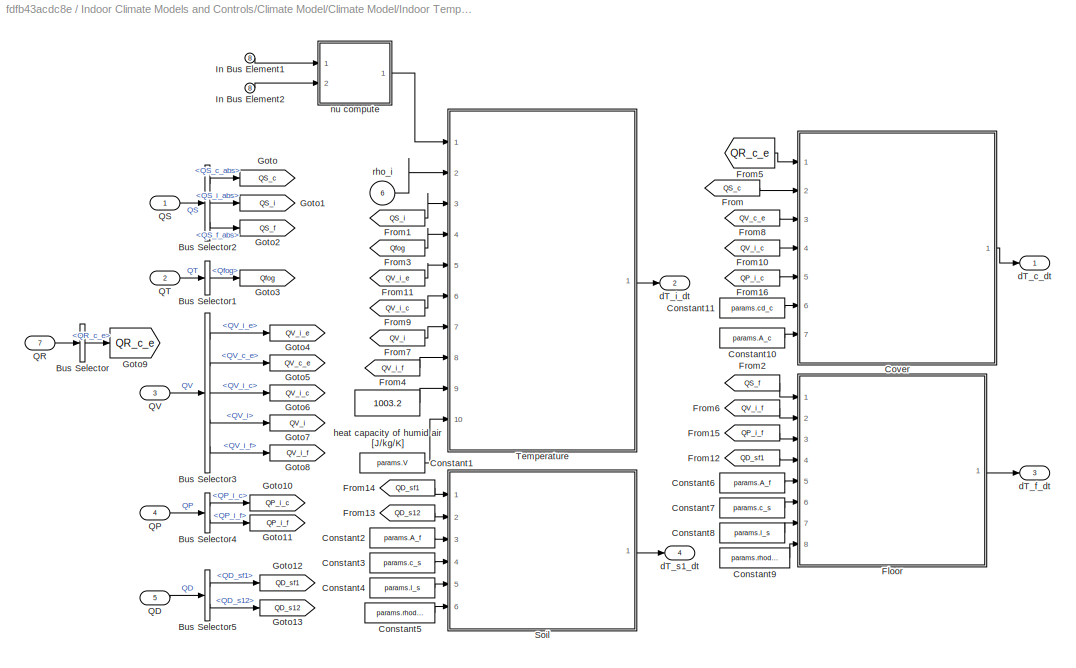
BLOCK [SubSystem] Indoor Climate Models and Controls/Climate Model/Climate Model/Indoor Temperature Model/Heat Balance
  PortSchema = {"entries":[{"content":{"sides":[{"content":{"connectorIds":["In1","In2","In3","In4","In5"]},"type":"ConnectorPlacement.EquallySpacedRectSide","uuid":"ccfbb954-e9e7-4841-9dc1-a760315eb250"},{"content":{"connectorIds":["Out1","Out2","Out3","Out4"],"side":"RIGHT"},"type":"ConnectorPlacement.EquallySpacedRectSide","uuid":"e9754eb2-54ce-43cf-bf33-7cf2f1345c42"},{"content":{"connectorIds":["In6"],"side...<+445ch>
  Ports = [8, 4]
  RequestExecContextInheritance = off
BLOCK [SubSystem] Indoor Climate Models and Controls/Climate Model/Climate Model/Indoor Temperature Model/Heat Balance/ Cover
  ErrorFcn = Stateflow.Translate.translate
  PermitHierarchicalResolution = ExplicitOnly
  Ports = [7, 1]
  RequestExecContextInheritance = off
  SFBlockType = MATLAB Function
  TreatAsAtomicUnit = on
BLOCK [Demux] Indoor Climate Models and Controls/Climate Model/Climate Model/Indoor Temperature Model/Heat Balance/ Cover/ Demux 
  Outputs = 1
  Ports = [1, 1]
BLOCK [S-Function] Indoor Climate Models and Controls/Climate Model/Climate Model/Indoor Temperature Model/Heat Balance/ Cover/ SFunction 
  EnableBusSupport = on
  FunctionName = sf_sfun
  PortCounts = [7 2]
  Ports = [7, 2]
  SFcnIsStateOwnerBlock = off
  SFunctionDeploymentMode = off
  Tag = Stateflow S-Function 1
BLOCK [Terminator] Indoor Climate Models and Controls/Climate Model/Climate Model/Indoor Temperature Model/Heat Balance/ Cover/ Terminator 
BLOCK [Inport] Indoor Climate Models and Controls/Climate Model/Climate Model/Indoor Temperature Model/Heat Balance/ Cover/A_c
  Port = 7
BLOCK [Inport] Indoor Climate Models and Controls/Climate Model/Climate Model/Indoor Temperature Model/Heat Balance/ Cover/QP_i_c
  Port = 5
BLOCK [Inport] Indoor Climate Models and Controls/Climate Model/Climate Model/Indoor Temperature Model/Heat Balance/ Cover/QR_c_e
BLOCK [Inport] Indoor Climate Models and Controls/Climate Model/Climate Model/Indoor Temperature Model/Heat Balance/ Cover/QS_c
  Port = 2
BLOCK [Inport] Indoor Climate Models and Controls/Climate Model/Climate Model/Indoor Temperature Model/Heat Balance/ Cover/QV_c_e
  Port = 3
BLOCK [Inport] Indoor Climate Models and Controls/Climate Model/Climate Model/Indoor Temperature Model/Heat Balance/ Cover/QV_i_c
  Port = 4
BLOCK [Inport] Indoor Climate Models and Controls/Climate Model/Climate Model/Indoor Temperature Model/Heat Balance/ Cover/cd_c
  Port = 6
BLOCK [Outport] Indoor Climate Models and Controls/Climate Model/Climate Model/Indoor Temperature Model/Heat Balance/ Cover/dT_c_dt
BLOCK [SubSystem] Indoor Climate Models and Controls/Climate Model/Climate Model/Indoor Temperature Model/Heat Balance/ Floor
  ErrorFcn = Stateflow.Translate.translate
  PermitHierarchicalResolution = ExplicitOnly
  Ports = [8, 1]
  RequestExecContextInheritance = off
  SFBlockType = MATLAB Function
  TreatAsAtomicUnit = on
BLOCK [Demux] Indoor Climate Models and Controls/Climate Model/Climate Model/Indoor Temperature Model/Heat Balance/ Floor/ Demux 
  Outputs = 1
  Ports = [1, 1]
BLOCK [S-Function] Indoor Climate Models and Controls/Climate Model/Climate Model/Indoor Temperature Model/Heat Balance/ Floor/ SFunction 
  EnableBusSupport = on
  FunctionName = sf_sfun
  PortCounts = [8 2]
  Ports = [8, 2]
  SFcnIsStateOwnerBlock = off
  SFunctionDeploymentMode = off
  Tag = Stateflow S-Function 3
BLOCK [Terminator] Indoor Climate Models and Controls/Climate Model/Climate Model/Indoor Temperature Model/Heat Balance/ Floor/ Terminator 
BLOCK [Inport] Indoor Climate Models and Controls/Climate Model/Climate Model/Indoor Temperature Model/Heat Balance/ Floor/A_f
  Port = 5
BLOCK [Inport] Indoor Climate Models and Controls/Climate Model/Climate Model/Indoor Temperature Model/Heat Balance/ Floor/QD_sf1
  Port = 4
BLOCK [Inport] Indoor Climate Models and Controls/Climate Model/Climate Model/Indoor Temperature Model/Heat Balance/ Floor/QP_i_f
  Port = 3
BLOCK [Inport] Indoor Climate Models and Controls/Climate Model/Climate Model/Indoor Temperature Model/Heat Balance/ Floor/QS_f
BLOCK [Inport] Indoor Climate Models and Controls/Climate Model/Climate Model/Indoor Temperature Model/Heat Balance/ Floor/QV_i_f
  Port = 2
BLOCK [Inport] Indoor Climate Models and Controls/Climate Model/Climate Model/Indoor Temperature Model/Heat Balance/ Floor/c_s
  Port = 6
BLOCK [Outport] Indoor Climate Models and Controls/Climate Model/Climate Model/Indoor Temperature Model/Heat Balance/ Floor/dT_f_dt
BLOCK [Inport] Indoor Climate Models and Controls/Climate Model/Climate Model/Indoor Temperature Model/Heat Balance/ Floor/l_s
  Port = 7
BLOCK [Inport] Indoor Climate Models and Controls/Climate Model/Climate Model/Indoor Temperature Model/Heat Balance/ Floor/rhod_s
  Port = 8
BLOCK [SubSystem] Indoor Climate Models and Controls/Climate Model/Climate Model/Indoor Temperature Model/Heat Balance/ Soil
  ErrorFcn = Stateflow.Translate.translate
  PermitHierarchicalResolution = ExplicitOnly
  Ports = [6, 1]
  RequestExecContextInheritance = off
  SFBlockType = MATLAB Function
  TreatAsAtomicUnit = on
BLOCK [Demux] Indoor Climate Models and Controls/Climate Model/Climate Model/Indoor Temperature Model/Heat Balance/ Soil/ Demux 
  Outputs = 1
  Ports = [1, 1]
BLOCK [S-Function] Indoor Climate Models and Controls/Climate Model/Climate Model/Indoor Temperature Model/Heat Balance/ Soil/ SFunction 
  EnableBusSupport = on
  FunctionName = sf_sfun
  PortCounts = [6 2]
  Ports = [6, 2]
  SFcnIsStateOwnerBlock = off
  SFunctionDeploymentMode = off
  Tag = Stateflow S-Function 10
BLOCK [Terminator] Indoor Climate Models and Controls/Climate Model/Climate Model/Indoor Temperature Model/Heat Balance/ Soil/ Terminator 
BLOCK [Inport] Indoor Climate Models and Controls/Climate Model/Climate Model/Indoor Temperature Model/Heat Balance/ Soil/A_f
  Port = 3
BLOCK [Inport] Indoor Climate Models and Controls/Climate Model/Climate Model/Indoor Temperature Model/Heat Balance/ Soil/QD_s12
  Port = 2
BLOCK [Inport] Indoor Climate Models and Controls/Climate Model/Climate Model/Indoor Temperature Model/Heat Balance/ Soil/QD_sf1
BLOCK [Inport] Indoor Climate Models and Controls/Climate Model/Climate Model/Indoor Temperature Model/Heat Balance/ Soil/c_s
  Port = 4
BLOCK [Outport] Indoor Climate Models and Controls/Climate Model/Climate Model/Indoor Temperature Model/Heat Balance/ Soil/dT_s1_dt
BLOCK [Inport] Indoor Climate Models and Controls/Climate Model/Climate Model/Indoor Temperature Model/Heat Balance/ Soil/l_s
  Port = 5
BLOCK [Inport] Indoor Climate Models and Controls/Climate Model/Climate Model/Indoor Temperature Model/Heat Balance/ Soil/rhod_s
  Port = 6
BLOCK [SubSystem] Indoor Climate Models and Controls/Climate Model/Climate Model/Indoor Temperature Model/Heat Balance/ Temperature
  ErrorFcn = Stateflow.Translate.translate
  PermitHierarchicalResolution = ExplicitOnly
  Ports = [10, 1]
  RequestExecContextInheritance = off
  SFBlockType = MATLAB Function
  TreatAsAtomicUnit = on
BLOCK [Demux] Indoor Climate Models and Controls/Climate Model/Climate Model/Indoor Temperature Model/Heat Balance/ Temperature/ Demux 
  Outputs = 1
  Ports = [1, 1]
BLOCK [S-Function] Indoor Climate Models and Controls/Climate Model/Climate Model/Indoor Temperature Model/Heat Balance/ Temperature/ SFunction 
  EnableBusSupport = on
  FunctionName = sf_sfun
  PortCounts = [10 2]
  Ports = [10, 2]
  SFcnIsStateOwnerBlock = off
  SFunctionDeploymentMode = off
  Tag = Stateflow S-Function 5
BLOCK [Terminator] Indoor Climate Models and Controls/Climate Model/Climate Model/Indoor Temperature Model/Heat Balance/ Temperature/ Terminator 
BLOCK [Inport] Indoor Climate Models and Controls/Climate Model/Climate Model/Indoor Temperature Model/Heat Balance/ Temperature/QS_i
  Port = 3
BLOCK [Inport] Indoor Climate Models and Controls/Climate Model/Climate Model/Indoor Temperature Model/Heat Balance/ Temperature/QT_fog
  Port = 4
BLOCK [Inport] Indoor Climate Models and Controls/Climate Model/Climate Model/Indoor Temperature Model/Heat Balance/ Temperature/QV_i
  Port = 7
BLOCK [Inport] Indoor Climate Models and Controls/Climate Model/Climate Model/Indoor Temperature Model/Heat Balance/ Temperature/QV_i_c
  Port = 6
BLOCK [Inport] Indoor Climate Models and Controls/Climate Model/Climate Model/Indoor Temperature Model/Heat Balance/ Temperature/QV_i_e
  Port = 5
BLOCK [Inport] Indoor Climate Models and Controls/Climate Model/Climate Model/Indoor Temperature Model/Heat Balance/ Temperature/QV_i_f
  Port = 8
BLOCK [Inport] Indoor Climate Models and Controls/Climate Model/Climate Model/Indoor Temperature Model/Heat Balance/ Temperature/V
  Port = 10
BLOCK [Inport] Indoor Climate Models and Controls/Climate Model/Climate Model/Indoor Temperature Model/Heat Balance/ Temperature/c_i
  Port = 9
BLOCK [Outport] Indoor Climate Models and Controls/Climate Model/Climate Model/Indoor Temperature Model/Heat Balance/ Temperature/dT_i_dt
BLOCK [Inport] Indoor Climate Models and Controls/Climate Model/Climate Model/Indoor Temperature Model/Heat Balance/ Temperature/nu
BLOCK [Inport] Indoor Climate Models and Controls/Climate Model/Climate Model/Indoor Temperature Model/Heat Balance/ Temperature/rho_i
  Port = 2
BLOCK [BusSelector] Indoor Climate Models and Controls/Climate Model/Climate Model/Indoor Temperature Model/Heat Balance/Bus Selector
  OutputSignals = QR_c_e
  Ports = [1, 1]
BLOCK [BusSelector] Indoor Climate Models and Controls/Climate Model/Climate Model/Indoor Temperature Model/Heat Balance/Bus Selector1
  OutputSignals = Qfog
  Ports = [1, 1]
BLOCK [BusSelector] Indoor Climate Models and Controls/Climate Model/Climate Model/Indoor Temperature Model/Heat Balance/Bus Selector2
  OutputSignals = QS_c_abs,QS_i_abs,QS_f_abs
  Ports = [1, 3]
BLOCK [BusSelector] Indoor Climate Models and Controls/Climate Model/Climate Model/Indoor Temperature Model/Heat Balance/Bus Selector3
  OutputSignals = QV_i_e,QV_c_e,QV_i_c,QV_i,QV_i_f
  Ports = [1, 5]
BLOCK [BusSelector] Indoor Climate Models and Controls/Climate Model/Climate Model/Indoor Temperature Model/Heat Balance/Bus Selector4
  OutputSignals = QP_i_c,QP_i_f
  Ports = [1, 2]
BLOCK [BusSelector] Indoor Climate Models and Controls/Climate Model/Climate Model/Indoor Temperature Model/Heat Balance/Bus Selector5
  OutputSignals = QD_sf1,QD_s12
  Ports = [1, 2]
BLOCK [Constant] Indoor Climate Models and Controls/Climate Model/Climate Model/Indoor Temperature Model/Heat Balance/Constant1
  Value = params.V
BLOCK [Constant] Indoor Climate Models and Controls/Climate Model/Climate Model/Indoor Temperature Model/Heat Balance/Constant10
  Value = params.A_c
BLOCK [Constant] Indoor Climate Models and Controls/Climate Model/Climate Model/Indoor Temperature Model/Heat Balance/Constant11
  Value = params.cd_c
BLOCK [Constant] Indoor Climate Models and Controls/Climate Model/Climate Model/Indoor Temperature Model/Heat Balance/Constant2
  Value = params.A_f
BLOCK [Constant] Indoor Climate Models and Controls/Climate Model/Climate Model/Indoor Temperature Model/Heat Balance/Constant3
  Value = params.c_s
BLOCK [Constant] Indoor Climate Models and Controls/Climate Model/Climate Model/Indoor Temperature Model/Heat Balance/Constant4
  Value = params.l_s
BLOCK [Constant] Indoor Climate Models and Controls/Climate Model/Climate Model/Indoor Temperature Model/Heat Balance/Constant5
  Value = params.rhod_s
BLOCK [Constant] Indoor Climate Models and Controls/Climate Model/Climate Model/Indoor Temperature Model/Heat Balance/Constant6
  Value = params.A_f
BLOCK [Constant] Indoor Climate Models and Controls/Climate Model/Climate Model/Indoor Temperature Model/Heat Balance/Constant7
  Value = params.c_s
BLOCK [Constant] Indoor Climate Models and Controls/Climate Model/Climate Model/Indoor Temperature Model/Heat Balance/Constant8
  Value = params.l_s
BLOCK [Constant] Indoor Climate Models and Controls/Climate Model/Climate Model/Indoor Temperature Model/Heat Balance/Constant9
  Value = params.rhod_s
BLOCK [From] Indoor Climate Models and Controls/Climate Model/Climate Model/Indoor Temperature Model/Heat Balance/From
  GotoTag = QS_c
BLOCK [From] Indoor Climate Models and Controls/Climate Model/Climate Model/Indoor Temperature Model/Heat Balance/From1
  GotoTag = QS_i
BLOCK [From] Indoor Climate Models and Controls/Climate Model/Climate Model/Indoor Temperature Model/Heat Balance/From10
  GotoTag = QV_i_c
BLOCK [From] Indoor Climate Models and Controls/Climate Model/Climate Model/Indoor Temperature Model/Heat Balance/From11
  GotoTag = QV_i_e
BLOCK [From] Indoor Climate Models and Controls/Climate Model/Climate Model/Indoor Temperature Model/Heat Balance/From12
  GotoTag = QD_sf1
BLOCK [From] Indoor Climate Models and Controls/Climate Model/Climate Model/Indoor Temperature Model/Heat Balance/From13
  GotoTag = QD_s12
BLOCK [From] Indoor Climate Models and Controls/Climate Model/Climate Model/Indoor Temperature Model/Heat Balance/From14
  GotoTag = QD_sf1
BLOCK [From] Indoor Climate Models and Controls/Climate Model/Climate Model/Indoor Temperature Model/Heat Balance/From15
  GotoTag = QP_i_f
BLOCK [From] Indoor Climate Models and Controls/Climate Model/Climate Model/Indoor Temperature Model/Heat Balance/From16
  GotoTag = QP_i_c
BLOCK [From] Indoor Climate Models and Controls/Climate Model/Climate Model/Indoor Temperature Model/Heat Balance/From2
  GotoTag = QS_f
BLOCK [From] Indoor Climate Models and Controls/Climate Model/Climate Model/Indoor Temperature Model/Heat Balance/From3
  GotoTag = Qfog
BLOCK [From] Indoor Climate Models and Controls/Climate Model/Climate Model/Indoor Temperature Model/Heat Balance/From4
  GotoTag = QV_i_f
BLOCK [From] Indoor Climate Models and Controls/Climate Model/Climate Model/Indoor Temperature Model/Heat Balance/From5
  GotoTag = QR_c_e
BLOCK [From] Indoor Climate Models and Controls/Climate Model/Climate Model/Indoor Temperature Model/Heat Balance/From6
  GotoTag = QV_i_f
BLOCK [From] Indoor Climate Models and Controls/Climate Model/Climate Model/Indoor Temperature Model/Heat Balance/From7
  GotoTag = QV_i
BLOCK [From] Indoor Climate Models and Controls/Climate Model/Climate Model/Indoor Temperature Model/Heat Balance/From8
  GotoTag = QV_c_e
BLOCK [From] Indoor Climate Models and Controls/Climate Model/Climate Model/Indoor Temperature Model/Heat Balance/From9
  GotoTag = QV_i_c
BLOCK [Goto] Indoor Climate Models and Controls/Climate Model/Climate Model/Indoor Temperature Model/Heat Balance/Goto
  GotoTag = QS_c
BLOCK [Goto] Indoor Climate Models and Controls/Climate Model/Climate Model/Indoor Temperature Model/Heat Balance/Goto1
  GotoTag = QS_i
BLOCK [Goto] Indoor Climate Models and Controls/Climate Model/Climate Model/Indoor Temperature Model/Heat Balance/Goto10
  GotoTag = QP_i_c
BLOCK [Goto] Indoor Climate Models and Controls/Climate Model/Climate Model/Indoor Temperature Model/Heat Balance/Goto11
  GotoTag = QP_i_f
BLOCK [Goto] Indoor Climate Models and Controls/Climate Model/Climate Model/Indoor Temperature Model/Heat Balance/Goto12
  GotoTag = QD_sf1
BLOCK [Goto] Indoor Climate Models and Controls/Climate Model/Climate Model/Indoor Temperature Model/Heat Balance/Goto13
  GotoTag = QD_s12
BLOCK [Goto] Indoor Climate Models and Controls/Climate Model/Climate Model/Indoor Temperature Model/Heat Balance/Goto2
  GotoTag = QS_f
BLOCK [Goto] Indoor Climate Models and Controls/Climate Model/Climate Model/Indoor Temperature Model/Heat Balance/Goto3
  GotoTag = Qfog
BLOCK [Goto] Indoor Climate Models and Controls/Climate Model/Climate Model/Indoor Temperature Model/Heat Balance/Goto4
  GotoTag = QV_i_e
BLOCK [Goto] Indoor Climate Models and Controls/Climate Model/Climate Model/Indoor Temperature Model/Heat Balance/Goto5
  GotoTag = QV_c_e
BLOCK [Goto] Indoor Climate Models and Controls/Climate Model/Climate Model/Indoor Temperature Model/Heat Balance/Goto6
  GotoTag = QV_i_c
BLOCK [Goto] Indoor Climate Models and Controls/Climate Model/Climate Model/Indoor Temperature Model/Heat Balance/Goto7
  GotoTag = QV_i
BLOCK [Goto] Indoor Climate Models and Controls/Climate Model/Climate Model/Indoor Temperature Model/Heat Balance/Goto8
  GotoTag = QV_i_f
BLOCK [Goto] Indoor Climate Models and Controls/Climate Model/Climate Model/Indoor Temperature Model/Heat Balance/Goto9
  GotoTag = QR_c_e
BLOCK [Inport] Indoor Climate Models and Controls/Climate Model/Climate Model/Indoor Temperature Model/Heat Balance/In Bus Element1
  Port = 8
BLOCK [Inport] Indoor Climate Models and Controls/Climate Model/Climate Model/Indoor Temperature Model/Heat Balance/In Bus Element2
  Port = 8
BLOCK [Inport] Indoor Climate Models and Controls/Climate Model/Climate Model/Indoor Temperature Model/Heat Balance/QD
  Port = 5
BLOCK [Inport] Indoor Climate Models and Controls/Climate Model/Climate Model/Indoor Temperature Model/Heat Balance/QP
  Port = 4
BLOCK [Inport] Indoor Climate Models and Controls/Climate Model/Climate Model/Indoor Temperature Model/Heat Balance/QR
  Port = 7
BLOCK [Inport] Indoor Climate Models and Controls/Climate Model/Climate Model/Indoor Temperature Model/Heat Balance/QS
BLOCK [Inport] Indoor Climate Models and Controls/Climate Model/Climate Model/Indoor Temperature Model/Heat Balance/QT
  Port = 2
BLOCK [Inport] Indoor Climate Models and Controls/Climate Model/Climate Model/Indoor Temperature Model/Heat Balance/QV
  Port = 3
BLOCK [Outport] Indoor Climate Models and Controls/Climate Model/Climate Model/Indoor Temperature Model/Heat Balance/dT_c_dt
BLOCK [Outport] Indoor Climate Models and Controls/Climate Model/Climate Model/Indoor Temperature Model/Heat Balance/dT_f_dt
  Port = 3
BLOCK [Outport] Indoor Climate Models and Controls/Climate Model/Climate Model/Indoor Temperature Model/Heat Balance/dT_i_dt
  Port = 2
BLOCK [Outport] Indoor Climate Models and Controls/Climate Model/Climate Model/Indoor Temperature Model/Heat Balance/dT_s1_dt
  Port = 4
BLOCK [Constant] Indoor Climate Models and Controls/Climate Model/Climate Model/Indoor Temperature Model/Heat Balance/heat capacity of humid air [J//kg//K] 
  Value = 1003.2
BLOCK [SubSystem] Indoor Climate Models and Controls/Climate Model/Climate Model/Indoor Temperature Model/Heat Balance/nu compute
  Ports = [2, 1]
  RequestExecContextInheritance = off
BLOCK [Constant] Indoor Climate Models and Controls/Climate Model/Climate Model/Indoor Temperature Model/Heat Balance/nu compute/Constant
BLOCK [Gain] Indoor Climate Models and Controls/Climate Model/Climate Model/Indoor Temperature Model/Heat Balance/nu compute/Gain
  Gain = 1/100
BLOCK [Inport] Indoor Climate Models and Controls/Climate Model/Climate Model/Indoor Temperature Model/Heat Balance/nu compute/In1
BLOCK [Inport] Indoor Climate Models and Controls/Climate Model/Climate Model/Indoor Temperature Model/Heat Balance/nu compute/In2
  Port = 2
BLOCK [Outport] Indoor Climate Models and Controls/Climate Model/Climate Model/Indoor Temperature Model/Heat Balance/nu compute/Out1
BLOCK [Product] Indoor Climate Models and Controls/Climate Model/Climate Model/Indoor Temperature Model/Heat Balance/nu compute/Product
  Ports = [2, 1]
BLOCK [Scope] Indoor Climate Models and Controls/Climate Model/Climate Model/Indoor Temperature Model/Heat Balance/nu compute/Scope
  Floating = off
  NumInputPorts = 1
  Ports = [1]
  ScopeSpecificationString = Simulink.scopes.TimeScopeBlockCfg('CurrentConfiguration', extmgr.ConfigurationSet(extmgr.Configuration('Core','General UI',true),extmgr.Configuration('Core','Source UI',true),extmgr.Configuration('Sources','WiredSimulink',true),extmgr.Configuration('Visuals','Time Domain',true,'SerializedDisplays',{struct('MinYLimReal','0.999999999999997','MaxYLimReal','1.000000000000025','YLabelReal','','MinYLimM...<+1430ch>
BLOCK [Sum] Indoor Climate Models and Controls/Climate Model/Climate Model/Indoor Temperature Model/Heat Balance/nu compute/Sum
  Inputs = |++
  Ports = [2, 1]
BLOCK [Inport] Indoor Climate Models and Controls/Climate Model/Climate Model/Indoor Temperature Model/Heat Balance/rho_i
  Port = 6
BLOCK [Inport] Indoor Climate Models and Controls/Climate Model/Climate Model/Indoor Temperature Model/In Bus Element
  NameLocation = left
  Port = 3
BLOCK [Inport] Indoor Climate Models and Controls/Climate Model/Climate Model/Indoor Temperature Model/In Bus Element1
  Port = 3
BLOCK [Inport] Indoor Climate Models and Controls/Climate Model/Climate Model/Indoor Temperature Model/In Bus Element10
  NameLocation = left
  Port = 6
BLOCK [Inport] Indoor Climate Models and Controls/Climate Model/Climate Model/Indoor Temperature Model/In Bus Element11
  NameLocation = left
  Port = 6
BLOCK [Inport] Indoor Climate Models and Controls/Climate Model/Climate Model/Indoor Temperature Model/In Bus Element2
  Port = 2
BLOCK [Inport] Indoor Climate Models and Controls/Climate Model/Climate Model/Indoor Temperature Model/In Bus Element3
  NameLocation = left
  Port = 6
BLOCK [Inport] Indoor Climate Models and Controls/Climate Model/Climate Model/Indoor Temperature Model/In Bus Element4
  Port = 2
BLOCK [Inport] Indoor Climate Models and Controls/Climate Model/Climate Model/Indoor Temperature Model/In Bus Element5
  Port = 2
BLOCK [Inport] Indoor Climate Models and Controls/Climate Model/Climate Model/Indoor Temperature Model/In Bus Element6
  NameLocation = left
  Port = 6
BLOCK [Inport] Indoor Climate Models and Controls/Climate Model/Climate Model/Indoor Temperature Model/In Bus Element7
  NameLocation = left
  Port = 6
BLOCK [Inport] Indoor Climate Models and Controls/Climate Model/Climate Model/Indoor Temperature Model/In Bus Element8
  Port = 2
BLOCK [Inport] Indoor Climate Models and Controls/Climate Model/Climate Model/Indoor Temperature Model/In Bus Element9
  Port = 3
BLOCK [Outport] Indoor Climate Models and Controls/Climate Model/Climate Model/Indoor Temperature Model/Indoor Climate
BLOCK [Integrator] Indoor Climate Models and Controls/Climate Model/Climate Model/Indoor Temperature Model/Integrator
  AbsoluteTolerance = 0.01
  InitialCondition = x0.T0
  Ports = [1, 1]
BLOCK [Gain] Indoor Climate Models and Controls/Climate Model/Climate Model/Indoor Temperature Model/Mass2Heat
  Gain = 2437000
BLOCK [SubSystem] Indoor Climate Models and Controls/Climate Model/Climate Model/Indoor Temperature Model/Radiation Model
  PortSchema = {"entries":[{"content":{"sides":[{"content":{"connectorIds":["In1","In2"]},"type":"ConnectorPlacement.EquallySpacedRectSide","uuid":"cb5a2538-07d5-409a-bc47-ac7157db0ef4"},{"content":{"connectorIds":["Out1"],"side":"RIGHT"},"type":"ConnectorPlacement.EquallySpacedRectSide","uuid":"7dfe2e6f-8ee6-45c0-8502-080571e1b483"},{"content":{"connectorIds":["In3"],"side":"TOP"},"type":"ConnectorPlacement.Equ...<+251ch>
  Ports = [3, 1]
  RequestExecContextInheritance = off
BLOCK [SubSystem] Indoor Climate Models and Controls/Climate Model/Climate Model/Indoor Temperature Model/Radiation Model/1-\alpha
  PortSchema = {"entries":[{"content":{"sides":[{"content":{"connectorIds":[]},"type":"ConnectorPlacement.EquallySpacedRectSide","uuid":"bf116baa-1c91-42ba-b5ce-6949a5122443"},{"content":{"connectorIds":["Out1"],"side":"RIGHT"},"type":"ConnectorPlacement.EquallySpacedRectSide","uuid":"479b2a41-aae8-4d0f-95ce-40d0c52850dd"},{"content":{"connectorIds":["In1"],"side":"TOP"},"type":"ConnectorPlacement.EquallySpacedR...<+240ch>
  Ports = [1, 1]
  RequestExecContextInheritance = off
BLOCK [Constant] Indoor Climate Models and Controls/Climate Model/Climate Model/Indoor Temperature Model/Radiation Model/1-\alpha/Constant6
BLOCK [Inport] Indoor Climate Models and Controls/Climate Model/Climate Model/Indoor Temperature Model/Radiation Model/1-\alpha/In1
BLOCK [Sum] Indoor Climate Models and Controls/Climate Model/Climate Model/Indoor Temperature Model/Radiation Model/1-\alpha/Minus
  IconShape = rectangular
  Inputs = +-
  Ports = [2, 1]
BLOCK [Outport] Indoor Climate Models and Controls/Climate Model/Climate Model/Indoor Temperature Model/Radiation Model/1-\alpha/Out1
BLOCK [Inport] Indoor Climate Models and Controls/Climate Model/Climate Model/Indoor Temperature Model/Radiation Model/Area
  Port = 3
BLOCK [BusCreator] Indoor Climate Models and Controls/Climate Model/Climate Model/Indoor Temperature Model/Radiation Model/Bus Creator
  DisplayOption = bar
  InheritFromInputs = on
  Inputs = 5
  Ports = [5, 1]
BLOCK [Constant] Indoor Climate Models and Controls/Climate Model/Climate Model/Indoor Temperature Model/Radiation Model/Constant
  Value = params.alpha_f
BLOCK [Constant] Indoor Climate Models and Controls/Climate Model/Climate Model/Indoor Temperature Model/Radiation Model/Constant1
  Value = params.alpha_c
BLOCK [Constant] Indoor Climate Models and Controls/Climate Model/Climate Model/Indoor Temperature Model/Radiation Model/Constant2
  Value = params.tau_c
BLOCK [Constant] Indoor Climate Models and Controls/Climate Model/Climate Model/Indoor Temperature Model/Radiation Model/Constant3
  Value = params.alpha_i
BLOCK [Constant] Indoor Climate Models and Controls/Climate Model/Climate Model/Indoor Temperature Model/Radiation Model/Constant4
  Value = params.A_f
BLOCK [Constant] Indoor Climate Models and Controls/Climate Model/Climate Model/Indoor Temperature Model/Radiation Model/Constant5
  Value = params.A_f
BLOCK [Constant] Indoor Climate Models and Controls/Climate Model/Climate Model/Indoor Temperature Model/Radiation Model/Constant7
  Value = params.A_f
BLOCK [Product] Indoor Climate Models and Controls/Climate Model/Climate Model/Indoor Temperature Model/Radiation Model/Divide
  Inputs = */
  Ports = [2, 1]
BLOCK [Inport] Indoor Climate Models and Controls/Climate Model/Climate Model/Indoor Temperature Model/Radiation Model/Exterior Radiation
  Port = 2
BLOCK [From] Indoor Climate Models and Controls/Climate Model/Climate Model/Indoor Temperature Model/Radiation Model/From
  GotoTag = QS_f
BLOCK [From] Indoor Climate Models and Controls/Climate Model/Climate Model/Indoor Temperature Model/Radiation Model/From1
  GotoTag = QS_i
BLOCK [From] Indoor Climate Models and Controls/Climate Model/Climate Model/Indoor Temperature Model/Radiation Model/From2
  GotoTag = QS_c
BLOCK [From] Indoor Climate Models and Controls/Climate Model/Climate Model/Indoor Temperature Model/Radiation Model/From3
  GotoTag = R_i
BLOCK [From] Indoor Climate Models and Controls/Climate Model/Climate Model/Indoor Temperature Model/Radiation Model/From4
  GotoTag = QS_tot
BLOCK [Goto] Indoor Climate Models and Controls/Climate Model/Climate Model/Indoor Temperature Model/Radiation Model/Goto
  GotoTag = QS_c
BLOCK [Goto] Indoor Climate Models and Controls/Climate Model/Climate Model/Indoor Temperature Model/Radiation Model/Goto1
  GotoTag = QS_i
BLOCK [Goto] Indoor Climate Models and Controls/Climate Model/Climate Model/Indoor Temperature Model/Radiation Model/Goto2
  GotoTag = QS_f
BLOCK [Goto] Indoor Climate Models and Controls/Climate Model/Climate Model/Indoor Temperature Model/Radiation Model/Goto3
  GotoTag = R_i
BLOCK [Goto] Indoor Climate Models and Controls/Climate Model/Climate Model/Indoor Temperature Model/Radiation Model/Goto4
  GotoTag = QS_tot
BLOCK [Inport] Indoor Climate Models and Controls/Climate Model/Climate Model/Indoor Temperature Model/Radiation Model/In Bus Element
BLOCK [Inport] Indoor Climate Models and Controls/Climate Model/Climate Model/Indoor Temperature Model/Radiation Model/In Bus Element1
BLOCK [Product] Indoor Climate Models and Controls/Climate Model/Climate Model/Indoor Temperature Model/Radiation Model/Product
  Ports = [2, 1]
BLOCK [Product] Indoor Climate Models and Controls/Climate Model/Climate Model/Indoor Temperature Model/Radiation Model/Product1
  Ports = [2, 1]
BLOCK [Product] Indoor Climate Models and Controls/Climate Model/Climate Model/Indoor Temperature Model/Radiation Model/Product2
  Ports = [2, 1]
BLOCK [Product] Indoor Climate Models and Controls/Climate Model/Climate Model/Indoor Temperature Model/Radiation Model/Product3
  Ports = [2, 1]
BLOCK [Product] Indoor Climate Models and Controls/Climate Model/Climate Model/Indoor Temperature Model/Radiation Model/Product4
  Ports = [2, 1]
BLOCK [Product] Indoor Climate Models and Controls/Climate Model/Climate Model/Indoor Temperature Model/Radiation Model/Product5
  Ports = [2, 1]
BLOCK [Outport] Indoor Climate Models and Controls/Climate Model/Climate Model/Indoor Temperature Model/Radiation Model/Solar Energy  
BLOCK [SubSystem] Indoor Climate Models and Controls/Climate Model/Climate Model/Indoor Temperature Model/Radiation Model/Subsystem
  Ports = [4, 1]
  RequestExecContextInheritance = off
BLOCK [Inport] Indoor Climate Models and Controls/Climate Model/Climate Model/Indoor Temperature Model/Radiation Model/Subsystem/A_f
BLOCK [Product] Indoor Climate Models and Controls/Climate Model/Climate Model/Indoor Temperature Model/Radiation Model/Subsystem/Divide
  Inputs = */**
  Ports = [4, 1]
BLOCK [Inport] Indoor Climate Models and Controls/Climate Model/Climate Model/Indoor Temperature Model/Radiation Model/Subsystem/In2
  Port = 2
BLOCK [Sum] Indoor Climate Models and Controls/Climate Model/Climate Model/Indoor Temperature Model/Radiation Model/Subsystem/Minus
  IconShape = rectangular
  Inputs = +-
  Ports = [2, 1]
BLOCK [Outport] Indoor Climate Models and Controls/Climate Model/Climate Model/Indoor Temperature Model/Radiation Model/Subsystem/Out1
BLOCK [Inport] Indoor Climate Models and Controls/Climate Model/Climate Model/Indoor Temperature Model/Radiation Model/Subsystem/QS_i_tr
  Port = 4
BLOCK [Inport] Indoor Climate Models and Controls/Climate Model/Climate Model/Indoor Temperature Model/Radiation Model/Subsystem/alpha_f
  Port = 3
BLOCK [SubSystem] Indoor Climate Models and Controls/Climate Model/Climate Model/Indoor Temperature Model/Radiation Model/tau_screen
  Ports = [2, 1]
  RequestExecContextInheritance = off
BLOCK [Constant] Indoor Climate Models and Controls/Climate Model/Climate Model/Indoor Temperature Model/Radiation Model/tau_screen/Constant3
BLOCK [Product] Indoor Climate Models and Controls/Climate Model/Climate Model/Indoor Temperature Model/Radiation Model/tau_screen/Divide
  Inputs = **
  Ports = [2, 1]
BLOCK [Gain] Indoor Climate Models and Controls/Climate Model/Climate Model/Indoor Temperature Model/Radiation Model/tau_screen/Gain
  Gain = 1/100
BLOCK [Sum] Indoor Climate Models and Controls/Climate Model/Climate Model/Indoor Temperature Model/Radiation Model/tau_screen/Minus
  IconShape = rectangular
  Inputs = +-
  Ports = [2, 1]
BLOCK [Outport] Indoor Climate Models and Controls/Climate Model/Climate Model/Indoor Temperature Model/Radiation Model/tau_screen/Out1
BLOCK [Inport] Indoor Climate Models and Controls/Climate Model/Climate Model/Indoor Temperature Model/Radiation Model/tau_screen/gamma
BLOCK [Inport] Indoor Climate Models and Controls/Climate Model/Climate Model/Indoor Temperature Model/Radiation Model/tau_screen/screen
  Port = 2
BLOCK [Inport] Indoor Climate Models and Controls/Climate Model/Climate Model/Indoor Temperature Model/Screen
  NameLocation = top
  Port = 5
BLOCK [Gain] Indoor Climate Models and Controls/Climate Model/Climate Model/Indoor Temperature Model/Sec2Days
  Gain = 24*3600
BLOCK [Outport] Indoor Climate Models and Controls/Climate Model/Climate Model/Indoor Temperature Model/Solar Energy
  Port = 5
BLOCK [SubSystem] Indoor Climate Models and Controls/Climate Model/Climate Model/Indoor Temperature Model/Subsystem
  Ports = [2, 1]
  RequestExecContextInheritance = off
BLOCK [Constant] Indoor Climate Models and Controls/Climate Model/Climate Model/Indoor Temperature Model/Subsystem/ Stefan-Boltzmann constant [W//m^2//K^4] 
  Value = 5.67e-8
BLOCK [BusCreator] Indoor Climate Models and Controls/Climate Model/Climate Model/Indoor Temperature Model/Subsystem/Bus Creator
  DisplayOption = bar
  InheritFromInputs = on
  Inputs = 1
  Ports = [1, 1]
BLOCK [Constant] Indoor Climate Models and Controls/Climate Model/Climate Model/Indoor Temperature Model/Subsystem/Constant
  Value = 4
BLOCK [Constant] Indoor Climate Models and Controls/Climate Model/Climate Model/Indoor Temperature Model/Subsystem/Constant1
  Value = 4
BLOCK [Constant] Indoor Climate Models and Controls/Climate Model/Climate Model/Indoor Temperature Model/Subsystem/Constant2
  Value = params.A_c
BLOCK [Sum] Indoor Climate Models and Controls/Climate Model/Climate Model/Indoor Temperature Model/Subsystem/Minus
  IconShape = rectangular
  Inputs = +-
  Ports = [2, 1]
BLOCK [Product] Indoor Climate Models and Controls/Climate Model/Climate Model/Indoor Temperature Model/Subsystem/Product
  Inputs = 4
  Ports = [4, 1]
BLOCK [Outport] Indoor Climate Models and Controls/Climate Model/Climate Model/Indoor Temperature Model/Subsystem/QR
BLOCK [Math] Indoor Climate Models and Controls/Climate Model/Climate Model/Indoor Temperature Model/Subsystem/Square
  Operator = pow
  Ports = [2, 1]
BLOCK [Math] Indoor Climate Models and Controls/Climate Model/Climate Model/Indoor Temperature Model/Subsystem/Square1
  Operator = pow
  Ports = [2, 1]
BLOCK [Inport] Indoor Climate Models and Controls/Climate Model/Climate Model/Indoor Temperature Model/Subsystem/Tc
BLOCK [Inport] Indoor Climate Models and Controls/Climate Model/Climate Model/Indoor Temperature Model/Subsystem/Te
  Port = 2
BLOCK [Constant] Indoor Climate Models and Controls/Climate Model/Climate Model/Indoor Temperature Model/Subsystem/k
  Value = 0.985
BLOCK [Outport] Indoor Climate Models and Controls/Climate Model/Climate Model/Indoor Temperature Model/Transpiration Heat
  NameLocation = left
  Port = 2
BLOCK [Concatenate] Indoor Climate Models and Controls/Climate Model/Climate Model/Indoor Temperature Model/Vector Concatenate
  NumInputs = 4
  Ports = [4, 1]
BLOCK [Outport] Indoor Climate Models and Controls/Climate Model/Climate Model/Indoor Temperature Model/Ventilation Rate
  Port = 3
BLOCK [Inport] Indoor Climate Models and Controls/Climate Model/Climate Model/Indoor Temperature Model/Windows
BLOCK [Outport] Indoor Climate Models and Controls/Climate Model/Climate Model/Out Bus Element
BLOCK [Outport] Indoor Climate Models and Controls/Climate Model/Climate Model/Out Bus Element1
BLOCK [Outport] Indoor Climate Models and Controls/Climate Model/Climate Model/Out Bus Element2
BLOCK [Outport] Indoor Climate Models and Controls/Climate Model/Climate Model/Out Bus Element3
BLOCK [SubSystem] Indoor Climate Models and Controls/Climate Model/Climate Model/Subsystem
  NameLocation = left
  PortSchema = {"entries":[{"content":{"sides":[{"content":{"connectorIds":[]},"type":"ConnectorPlacement.EquallySpacedRectSide","uuid":"35868875-f783-4ad4-af7a-8ba6d23e35d0"},{"content":{"connectorIds":["Out1"],"side":"RIGHT"},"type":"ConnectorPlacement.EquallySpacedRectSide","uuid":"2025d12d-e021-4399-bfe6-d7037c727539"},{"content":{"connectorIds":[],"side":"TOP"},"type":"ConnectorPlacement.EquallySpacedRectSi...<+384ch>
  Ports = [1, 1]
  RequestExecContextInheritance = off
BLOCK [BusCreator] Indoor Climate Models and Controls/Climate Model/Climate Model/Subsystem/Bus Creator3
  DisplayOption = bar
  InheritFromInputs = on
  Inputs = 4
  NameLocation = left
  Ports = [4, 1]
BLOCK [BusSelector] Indoor Climate Models and Controls/Climate Model/Climate Model/Subsystem/Bus Selector
  NameLocation = left
  OutputSignals = C_w,rho_i,C_w_sat_T_c,C_w_sat_T_f
  Ports = [1, 4]
BLOCK [Inport] Indoor Climate Models and Controls/Climate Model/Climate Model/Subsystem/Gas
BLOCK [Outport] Indoor Climate Models and Controls/Climate Model/Climate Model/Subsystem/Out1
BLOCK [Inport] Indoor Climate Models and Controls/Climate Model/Control
  Port = 2
BLOCK [Inport] Indoor Climate Models and Controls/Climate Model/EC
  Port = 3
BLOCK [Inport] Indoor Climate Models and Controls/Climate Model/Ext
BLOCK [SubSystem] Indoor Climate Models and Controls/Control System
  NameLocation = top
  PortSchema = {"entries":[{"content":{"sides":[{"content":{"connectorIds":["In1","In2","In3"]},"type":"ConnectorPlacement.EquallySpacedRectSide","uuid":"7d0146e2-a53b-49ab-a7f4-04cd7ef00b9a"},{"content":{"connectorIds":["Out1","Out2"],"side":"RIGHT"},"type":"ConnectorPlacement.EquallySpacedRectSide","uuid":"fee587e2-4b5c-4140-8904-07609d427593"},{"content":{"connectorIds":[],"side":"TOP"},"type":"ConnectorPlace...<+408ch>
  Ports = [4, 2]
  RequestExecContextInheritance = off
BLOCK [BusSelector] Indoor Climate Models and Controls/Control System/Bus Selector
  NameLocation = right
  OutputSignals = HeatVars.QV,HeatVars.QT,A_v,CC
  Ports = [1, 4]
BLOCK [BusSelector] Indoor Climate Models and Controls/Control System/Bus Selector1
  OutputSignals = Heater.T_start,Windows.T_stop
  Ports = [1, 2]
BLOCK [BusSelector] Indoor Climate Models and Controls/Control System/Bus Selector2
  OutputSignals = Heater.T_stop,Heater.T_start
  Ports = [1, 2]
BLOCK [Outport] Indoor Climate Models and Controls/Control System/CoCl1
  Port = 2
BLOCK [Constant] Indoor Climate Models and Controls/Control System/Constant2
  Value = 100
BLOCK [Constant] Indoor Climate Models and Controls/Control System/Constant3
  Value = 80
BLOCK [Inport] Indoor Climate Models and Controls/Control System/Crop
  NameLocation = right
  Port = 3
BLOCK [Inport] Indoor Climate Models and Controls/Control System/EC
  Port = 4
BLOCK [Outport] Indoor Climate Models and Controls/Control System/Ext
BLOCK [From] Indoor Climate Models and Controls/Control System/From
  GotoTag = st
BLOCK [From] Indoor Climate Models and Controls/Control System/From1
  GotoTag = st
BLOCK [Goto] Indoor Climate Models and Controls/Control System/Goto
  GotoTag = st
BLOCK [Goto] Indoor Climate Models and Controls/Control System/Goto1
  GotoTag = Th
  TagVisibility = global
BLOCK [Goto] Indoor Climate Models and Controls/Control System/Goto2
  GotoTag = Windows
  TagVisibility = global
BLOCK [Reference] Indoor Climate Models and Controls/Control System/Heating Controler  REF=HORTISIM/Climate/Controls/Heating Controler
  NameLocation = top
  Ports = [4, 3]
  SourceBlock = HORTISIM/Climate/Controls/Heating Controler
  SourceProductName = Horti Simulator
BLOCK [Inport] Indoor Climate Models and Controls/Control System/IC
BLOCK [Inport] Indoor Climate Models and Controls/Control System/ST
  Port = 2
BLOCK [SubSystem] Indoor Climate Models and Controls/Control System/Scalar2Bus 
  Ports = [4, 1]
  RequestExecContextInheritance = off
BLOCK [Inport] Indoor Climate Models and Controls/Control System/Scalar2Bus /A
  Port = 3
BLOCK [BusCreator] Indoor Climate Models and Controls/Control System/Scalar2Bus /Bus Creator
  DisplayOption = bar
  InheritFromInputs = on
  Inputs = 4
  Ports = [4, 1]
BLOCK [Inport] Indoor Climate Models and Controls/Control System/Scalar2Bus /CC
  Port = 4
BLOCK [Outport] Indoor Climate Models and Controls/Control System/Scalar2Bus /CoCl
BLOCK [Inport] Indoor Climate Models and Controls/Control System/Scalar2Bus /QT
  Port = 2
BLOCK [Inport] Indoor Climate Models and Controls/Control System/Scalar2Bus /QV
BLOCK [Reference] Indoor Climate Models and Controls/Control System/Scalar2Bus Control Climate1  REF=HORTISIM/Other 
Functions/Scalar2Bus 
Control Climate
  Ports = [4, 1]
  SourceBlock = HORTISIM/Other \nFunctions/Scalar2Bus \nControl Climate
  SourceProductName = Horti Simulator
  SourceType = SubSystem
BLOCK [Reference] Indoor Climate Models and Controls/Control System/Screen Controler  REF=HORTISIM/Climate/Controls/Screen Controler
  NameLocation = top
  Ports = [1, 2]
  SourceBlock = HORTISIM/Climate/Controls/Screen Controler
  SourceProductName = Horti Simulator
BLOCK [Sum] Indoor Climate Models and Controls/Control System/Sum
  Inputs = |++
  Ports = [2, 1]
BLOCK [Reference] Indoor Climate Models and Controls/Control System/Windows Controler  REF=HORTISIM/Climate/Controls/Windows Controler
  NameLocation = top
  Ports = [5, 2]
  SourceBlock = HORTISIM/Climate/Controls/Windows Controler
  SourceProductName = Horti Simulator
BLOCK [Inport] Indoor Climate Models and Controls/Crop
  NameLocation = right
  Port = 2
BLOCK [Inport] Indoor Climate Models and Controls/EC
BLOCK [Outport] Indoor Climate Models and Controls/Indoor Climate
BLOCK [SubSystem] Indoor Climate Models and Controls/Set Point Controler
  NameLocation = top
  PortSchema = {"entries":[{"content":{"sides":[{"content":{"connectorIds":["Out1","In1"]},"type":"ConnectorPlacement.EquallySpacedRectSide","uuid":"f4e16d49-2d4b-4271-89b5-3d9d4afc6df8"},{"content":{"connectorIds":[],"side":"RIGHT"},"type":"ConnectorPlacement.EquallySpacedRectSide","uuid":"2cc2085b-d4b5-43d5-9499-e0c517c8a674"},{"content":{"connectorIds":[],"side":"TOP"},"type":"ConnectorPlacement.EquallySpaced...<+390ch>
  Ports = [2, 1]
  RequestExecContextInheritance = off
BLOCK [BusCreator] Indoor Climate Models and Controls/Set Point Controler/Bus Creator
  DisplayOption = bar
  InheritFromInputs = on
  Inputs = 2
  Ports = [2, 1]
BLOCK [BusSelector] Indoor Climate Models and Controls/Set Point Controler/Bus Selector
  OutputSignals = Tsum
  Ports = [1, 1]
BLOCK [BusSelector] Indoor Climate Models and Controls/Set Point Controler/Bus Selector1
  OutputSignals = Rad
  Ports = [1, 1]
BLOCK [Inport] Indoor Climate Models and Controls/Set Point Controler/Crop
BLOCK [Inport] Indoor Climate Models and Controls/Set Point Controler/EC
  Port = 2
BLOCK [From] Indoor Climate Models and Controls/Set Point Controler/From
  GotoTag = EC
BLOCK [From] Indoor Climate Models and Controls/Set Point Controler/From1
  GotoTag = EC
BLOCK [From] Indoor Climate Models and Controls/Set Point Controler/From2
  GotoTag = EC
BLOCK [From] Indoor Climate Models and Controls/Set Point Controler/From3
  GotoTag = Tmin
  TagVisibility = global
BLOCK [From] Indoor Climate Models and Controls/Set Point Controler/From4
  GotoTag = Toptmin
  TagVisibility = global
BLOCK [From] Indoor Climate Models and Controls/Set Point Controler/From5
  GotoTag = Toptmax
  TagVisibility = global
BLOCK [From] Indoor Climate Models and Controls/Set Point Controler/From6
  GotoTag = Tmax
  TagVisibility = global
BLOCK [Goto] Indoor Climate Models and Controls/Set Point Controler/Goto
  GotoTag = EC
BLOCK [Goto] Indoor Climate Models and Controls/Set Point Controler/Goto1
  GotoTag = Tmin
  TagVisibility = global
BLOCK [Goto] Indoor Climate Models and Controls/Set Point Controler/Goto2
  GotoTag = Toptmin
  TagVisibility = global
BLOCK [Goto] Indoor Climate Models and Controls/Set Point Controler/Goto3
  GotoTag = Toptmax
  TagVisibility = global
BLOCK [Goto] Indoor Climate Models and Controls/Set Point Controler/Goto4
  GotoTag = Tmax
  TagVisibility = global
BLOCK [SubSystem] Indoor Climate Models and Controls/Set Point Controler/Heater SetPoints
  Ports = [3, 1]
  RequestExecContextInheritance = off
BLOCK [BusCreator] Indoor Climate Models and Controls/Set Point Controler/Heater SetPoints/Bus Creator1
  DisplayOption = bar
  InheritFromInputs = on
  Inputs = 2
  Ports = [2, 1]
BLOCK [BusSelector] Indoor Climate Models and Controls/Set Point Controler/Heater SetPoints/Bus Selector2
  OutputSignals = Temp
  Ports = [1, 1]
BLOCK [Inport] Indoor Climate Models and Controls/Set Point Controler/Heater SetPoints/EC
BLOCK [Goto] Indoor Climate Models and Controls/Set Point Controler/Heater SetPoints/Goto
  GotoTag = T_h_start
  TagVisibility = global
BLOCK [Goto] Indoor Climate Models and Controls/Set Point Controler/Heater SetPoints/Goto1
  GotoTag = T_h_stop
  TagVisibility = global
BLOCK [Outport] Indoor Climate Models and Controls/Set Point Controler/Heater SetPoints/HeateSetr
BLOCK [SubSystem] Indoor Climate Models and Controls/Set Point Controler/Heater SetPoints/Subsystem1
  Ports = [3, 2]
  RequestExecContextInheritance = off
BLOCK [Inport] Indoor Climate Models and Controls/Set Point Controler/Heater SetPoints/Subsystem1/<Temp>
  Port = 3
BLOCK [Constant] Indoor Climate Models and Controls/Set Point Controler/Heater SetPoints/Subsystem1/Constant
  Value = 2
BLOCK [SubSystem] Indoor Climate Models and Controls/Set Point Controler/Heater SetPoints/Subsystem1/Every Day
  Ports = [3, 2, 0, 0, 0, 0, 0, 1]
  RequestExecContextInheritance = off
BLOCK [ActionPort] Indoor Climate Models and Controls/Set Point Controler/Heater SetPoints/Subsystem1/Every Day/Action Port
  ActionPortLabel = if(u1 == 1)
BLOCK [Clock] Indoor Climate Models and Controls/Set Point Controler/Heater SetPoints/Subsystem1/Every Day/Clock
BLOCK [SubSystem] Indoor Climate Models and Controls/Set Point Controler/Heater SetPoints/Subsystem1/Every Day/Heater Setpoints Calculator
  Ports = [4, 2, 0, 1]
  RequestExecContextInheritance = off
BLOCK [Gain] Indoor Climate Models and Controls/Set Point Controler/Heater SetPoints/Subsystem1/Every Day/Heater Setpoints Calculator/Gain
  Gain = 2
BLOCK [SubSystem] Indoor Climate Models and Controls/Set Point Controler/Heater SetPoints/Subsystem1/Every Day/Heater Setpoints Calculator/MATLAB Function
  Commented = through
  ErrorFcn = Stateflow.Translate.translate
  PermitHierarchicalResolution = ExplicitOnly
  Ports = [1, 1]
  RequestExecContextInheritance = off
  SFBlockType = MATLAB Function
  TreatAsAtomicUnit = on
BLOCK [Demux] Indoor Climate Models and Controls/Set Point Controler/Heater SetPoints/Subsystem1/Every Day/Heater Setpoints Calculator/MATLAB Function/ Demux 
  Outputs = 1
  Ports = [1, 1]
BLOCK [S-Function] Indoor Climate Models and Controls/Set Point Controler/Heater SetPoints/Subsystem1/Every Day/Heater Setpoints Calculator/MATLAB Function/ SFunction 
  EnableBusSupport = on
  FunctionName = sf_sfun
  PortCounts = [1 2]
  Ports = [1, 2]
  SFcnIsStateOwnerBlock = off
  SFunctionDeploymentMode = off
  Tag = Stateflow S-Function 9
BLOCK [Terminator] Indoor Climate Models and Controls/Set Point Controler/Heater SetPoints/Subsystem1/Every Day/Heater Setpoints Calculator/MATLAB Function/ Terminator 
BLOCK [Inport] Indoor Climate Models and Controls/Set Point Controler/Heater SetPoints/Subsystem1/Every Day/Heater Setpoints Calculator/MATLAB Function/u
BLOCK [Outport] Indoor Climate Models and Controls/Set Point Controler/Heater SetPoints/Subsystem1/Every Day/Heater Setpoints Calculator/MATLAB Function/y
BLOCK [Sum] Indoor Climate Models and Controls/Set Point Controler/Heater SetPoints/Subsystem1/Every Day/Heater Setpoints Calculator/Minus
  IconShape = rectangular
  Inputs = +-
  Ports = [2, 1]
BLOCK [Sum] Indoor Climate Models and Controls/Set Point Controler/Heater SetPoints/Subsystem1/Every Day/Heater Setpoints Calculator/Sum
  Inputs = |++
  Ports = [2, 1]
BLOCK [Sum] Indoor Climate Models and Controls/Set Point Controler/Heater SetPoints/Subsystem1/Every Day/Heater Setpoints Calculator/Sum1
  Inputs = |++
  NameLocation = top
  Ports = [2, 1]
BLOCK [Inport] Indoor Climate Models and Controls/Set Point Controler/Heater SetPoints/Subsystem1/Every Day/Heater Setpoints Calculator/T_max
  Port = 2
BLOCK [Inport] Indoor Climate Models and Controls/Set Point Controler/Heater SetPoints/Subsystem1/Every Day/Heater Setpoints Calculator/T_min
BLOCK [Outport] Indoor Climate Models and Controls/Set Point Controler/Heater SetPoints/Subsystem1/Every Day/Heater Setpoints Calculator/T_start
BLOCK [Outport] Indoor Climate Models and Controls/Set Point Controler/Heater SetPoints/Subsystem1/Every Day/Heater Setpoints Calculator/T_stop
  Port = 2
BLOCK [Inport] Indoor Climate Models and Controls/Set Point Controler/Heater SetPoints/Subsystem1/Every Day/Heater Setpoints Calculator/Te
  Port = 4
BLOCK [TriggerPort] Indoor Climate Models and Controls/Set Point Controler/Heater SetPoints/Subsystem1/Every Day/Heater Setpoints Calculator/Trigger
  Ports = []
  StatesWhenEnabling = held
  TriggerType = either
  VariantControl = (inherit)
BLOCK [Inport] Indoor Climate Models and Controls/Set Point Controler/Heater SetPoints/Subsystem1/Every Day/Heater Setpoints Calculator/t
  Port = 3
BLOCK [SubSystem] Indoor Climate Models and Controls/Set Point Controler/Heater SetPoints/Subsystem1/Every Day/Subsystem
  NameLocation = left
  Ports = [0, 1]
  RequestExecContextInheritance = off
BLOCK [Clock] Indoor Climate Models and Controls/Set Point Controler/Heater SetPoints/Subsystem1/Every Day/Subsystem/Clock
BLOCK [Outport] Indoor Climate Models and Controls/Set Point Controler/Heater SetPoints/Subsystem1/Every Day/Subsystem/DayChange
BLOCK [If] Indoor Climate Models and Controls/Set Point Controler/Heater SetPoints/Subsystem1/Every Day/Subsystem/If
  IfExpression = u1 == 0
  Ports = [1, 2]
BLOCK [SubSystem] Indoor Climate Models and Controls/Set Point Controler/Heater SetPoints/Subsystem1/Every Day/Subsystem/If Action Subsystem
  Ports = [0, 1, 0, 0, 0, 0, 0, 1]
  RequestExecContextInheritance = off
  TreatAsAtomicUnit = on
BLOCK [ActionPort] Indoor Climate Models and Controls/Set Point Controler/Heater SetPoints/Subsystem1/Every Day/Subsystem/If Action Subsystem/Action Port
  ActionPortLabel = if(u1 == 0)
BLOCK [Constant] Indoor Climate Models and Controls/Set Point Controler/Heater SetPoints/Subsystem1/Every Day/Subsystem/If Action Subsystem/Constant
  Value = 0
BLOCK [Outport] Indoor Climate Models and Controls/Set Point Controler/Heater SetPoints/Subsystem1/Every Day/Subsystem/If Action Subsystem/Out1
BLOCK [SubSystem] Indoor Climate Models and Controls/Set Point Controler/Heater SetPoints/Subsystem1/Every Day/Subsystem/If Action Subsystem1
  Ports = [1, 1, 0, 0, 0, 0, 0, 1]
  RequestExecContextInheritance = off
  TreatAsAtomicUnit = on
BLOCK [ActionPort] Indoor Climate Models and Controls/Set Point Controler/Heater SetPoints/Subsystem1/Every Day/Subsystem/If Action Subsystem1/Action Port
  ActionPortLabel = else
BLOCK [Constant] Indoor Climate Models and Controls/Set Point Controler/Heater SetPoints/Subsystem1/Every Day/Subsystem/If Action Subsystem1/Constant1
  Value = t0_shift
BLOCK [Gain] Indoor Climate Models and Controls/Set Point Controler/Heater SetPoints/Subsystem1/Every Day/Subsystem/If Action Subsystem1/Gain
  Gain = pi
BLOCK [Inport] Indoor Climate Models and Controls/Set Point Controler/Heater SetPoints/Subsystem1/Every Day/Subsystem/If Action Subsystem1/In1
BLOCK [Outport] Indoor Climate Models and Controls/Set Point Controler/Heater SetPoints/Subsystem1/Every Day/Subsystem/If Action Subsystem1/Out1
BLOCK [Trigonometry] Indoor Climate Models and Controls/Set Point Controler/Heater SetPoints/Subsystem1/Every Day/Subsystem/If Action Subsystem1/Sin
  Ports = [1, 1]
BLOCK [Sum] Indoor Climate Models and Controls/Set Point Controler/Heater SetPoints/Subsystem1/Every Day/Subsystem/If Action Subsystem1/Sum
  Inputs = |++
  Ports = [2, 1]
BLOCK [Merge] Indoor Climate Models and Controls/Set Point Controler/Heater SetPoints/Subsystem1/Every Day/Subsystem/Merge
  Ports = [2, 1]
BLOCK [Inport] Indoor Climate Models and Controls/Set Point Controler/Heater SetPoints/Subsystem1/Every Day/T_max
  NameLocation = top
  Port = 2
BLOCK [Inport] Indoor Climate Models and Controls/Set Point Controler/Heater SetPoints/Subsystem1/Every Day/T_min
  NameLocation = top
BLOCK [Outport] Indoor Climate Models and Controls/Set Point Controler/Heater SetPoints/Subsystem1/Every Day/T_start
BLOCK [Outport] Indoor Climate Models and Controls/Set Point Controler/Heater SetPoints/Subsystem1/Every Day/T_stop
  Port = 2
BLOCK [Inport] Indoor Climate Models and Controls/Set Point Controler/Heater SetPoints/Subsystem1/Every Day/Te
  Port = 3
BLOCK [SubSystem] Indoor Climate Models and Controls/Set Point Controler/Heater SetPoints/Subsystem1/Every Day1
  Ports = [2, 2, 0, 0, 0, 0, 0, 1]
  RequestExecContextInheritance = off
BLOCK [ActionPort] Indoor Climate Models and Controls/Set Point Controler/Heater SetPoints/Subsystem1/Every Day1/Action Port
  ActionPortLabel = elseif(u1==4)
BLOCK [Inport] Indoor Climate Models and Controls/Set Point Controler/Heater SetPoints/Subsystem1/Every Day1/T_max
  NameLocation = top
  Port = 2
BLOCK [Inport] Indoor Climate Models and Controls/Set Point Controler/Heater SetPoints/Subsystem1/Every Day1/T_min
  NameLocation = top
BLOCK [Outport] Indoor Climate Models and Controls/Set Point Controler/Heater SetPoints/Subsystem1/Every Day1/T_start
BLOCK [Outport] Indoor Climate Models and Controls/Set Point Controler/Heater SetPoints/Subsystem1/Every Day1/T_stop
  Port = 2
BLOCK [If] Indoor Climate Models and Controls/Set Point Controler/Heater SetPoints/Subsystem1/If
  ElseIfExpressions = u1 == 2,u1 == 3,u1==4
  IfExpression = u1 == 1
  Ports = [1, 4]
  ShowElse = off
BLOCK [Merge] Indoor Climate Models and Controls/Set Point Controler/Heater SetPoints/Subsystem1/Merge
  Inputs = 4
  Ports = [4, 1]
BLOCK [Merge] Indoor Climate Models and Controls/Set Point Controler/Heater SetPoints/Subsystem1/Merge1
  Inputs = 4
  Ports = [4, 1]
BLOCK [SubSystem] Indoor Climate Models and Controls/Set Point Controler/Heater SetPoints/Subsystem1/Real Time
  Ports = [3, 2, 0, 0, 0, 0, 0, 1]
  RequestExecContextInheritance = off
BLOCK [Inport] Indoor Climate Models and Controls/Set Point Controler/Heater SetPoints/Subsystem1/Real Time/<Temp>
  Port = 3
BLOCK [ActionPort] Indoor Climate Models and Controls/Set Point Controler/Heater SetPoints/Subsystem1/Real Time/Action Port
  ActionPortLabel = elseif(u1 == 2)
BLOCK [Constant] Indoor Climate Models and Controls/Set Point Controler/Heater SetPoints/Subsystem1/Real Time/Constant
  Value = 0.5
BLOCK [Constant] Indoor Climate Models and Controls/Set Point Controler/Heater SetPoints/Subsystem1/Real Time/Constant1
  Value = 2
BLOCK [Gain] Indoor Climate Models and Controls/Set Point Controler/Heater SetPoints/Subsystem1/Real Time/Gain
  Gain = 3.5
BLOCK [Sum] Indoor Climate Models and Controls/Set Point Controler/Heater SetPoints/Subsystem1/Real Time/Minus
  IconShape = rectangular
  Inputs = +-
  Ports = [2, 1]
BLOCK [Math] Indoor Climate Models and Controls/Set Point Controler/Heater SetPoints/Subsystem1/Real Time/Square
  Operator = pow
  Ports = [2, 1]
  SignedPower = on
BLOCK [Sum] Indoor Climate Models and Controls/Set Point Controler/Heater SetPoints/Subsystem1/Real Time/Sum
  Inputs = |++
  Ports = [2, 1]
BLOCK [Sum] Indoor Climate Models and Controls/Set Point Controler/Heater SetPoints/Subsystem1/Real Time/Sum1
  Inputs = |+++
  NameLocation = top
  Ports = [3, 1]
BLOCK [Inport] Indoor Climate Models and Controls/Set Point Controler/Heater SetPoints/Subsystem1/Real Time/T_max
  Port = 2
BLOCK [Inport] Indoor Climate Models and Controls/Set Point Controler/Heater SetPoints/Subsystem1/Real Time/T_min
BLOCK [Outport] Indoor Climate Models and Controls/Set Point Controler/Heater SetPoints/Subsystem1/Real Time/T_start
BLOCK [Outport] Indoor Climate Models and Controls/Set Point Controler/Heater SetPoints/Subsystem1/Real Time/T_stop
  Port = 2
BLOCK [SubSystem] Indoor Climate Models and Controls/Set Point Controler/Heater SetPoints/Subsystem1/Real Time1
  Ports = [0, 2, 0, 0, 0, 0, 0, 1]
  RequestExecContextInheritance = off
BLOCK [ActionPort] Indoor Climate Models and Controls/Set Point Controler/Heater SetPoints/Subsystem1/Real Time1/Action Port
  ActionPortLabel = elseif(u1 == 3)
BLOCK [Constant] Indoor Climate Models and Controls/Set Point Controler/Heater SetPoints/Subsystem1/Real Time1/Constant
  Value = 20 + 273.15
BLOCK [Constant] Indoor Climate Models and Controls/Set Point Controler/Heater SetPoints/Subsystem1/Real Time1/Constant1
  Value = 10+273.15
BLOCK [Outport] Indoor Climate Models and Controls/Set Point Controler/Heater SetPoints/Subsystem1/Real Time1/T_start
BLOCK [Outport] Indoor Climate Models and Controls/Set Point Controler/Heater SetPoints/Subsystem1/Real Time1/T_stop
  Port = 2
BLOCK [Inport] Indoor Climate Models and Controls/Set Point Controler/Heater SetPoints/Subsystem1/T_max
  Port = 2
BLOCK [Inport] Indoor Climate Models and Controls/Set Point Controler/Heater SetPoints/Subsystem1/T_min
BLOCK [Outport] Indoor Climate Models and Controls/Set Point Controler/Heater SetPoints/Subsystem1/T_start
BLOCK [Outport] Indoor Climate Models and Controls/Set Point Controler/Heater SetPoints/Subsystem1/T_stop
  Port = 2
BLOCK [Inport] Indoor Climate Models and Controls/Set Point Controler/Heater SetPoints/T_max
  Port = 3
BLOCK [Inport] Indoor Climate Models and Controls/Set Point Controler/Heater SetPoints/T_min
  Port = 2
BLOCK [Outport] Indoor Climate Models and Controls/Set Point Controler/ST
BLOCK [SubSystem] Indoor Climate Models and Controls/Set Point Controler/Sunset Sunrise
  Ports = [1, 1]
  RequestExecContextInheritance = off
BLOCK [BusSelector] Indoor Climate Models and Controls/Set Point Controler/Sunset Sunrise/Bus Selector
  OutputSignals = Rad
  Ports = [1, 1]
BLOCK [Constant] Indoor Climate Models and Controls/Set Point Controler/Sunset Sunrise/Constant4
  Value = 100
BLOCK [Gain] Indoor Climate Models and Controls/Set Point Controler/Sunset Sunrise/Gain
  Gain = 10
  NameLocation = right
BLOCK [Inport] Indoor Climate Models and Controls/Set Point Controler/Sunset Sunrise/In1
BLOCK [Sum] Indoor Climate Models and Controls/Set Point Controler/Sunset Sunrise/Minus
  IconShape = rectangular
  Inputs = +-
  Ports = [2, 1]
BLOCK [Outport] Indoor Climate Models and Controls/Set Point Controler/Sunset Sunrise/Out1
BLOCK [Trigonometry] Indoor Climate Models and Controls/Set Point Controler/Sunset Sunrise/Tan
  Operator = tanh
  Ports = [1, 1]
BLOCK [SubSystem] Indoor Climate Models and Controls/Set Point Controler/Triggered Subsystem
  Ports = [2, 4, 0, 1]
  RequestExecContextInheritance = off
  TreatAsAtomicUnit = on
BLOCK [Inport] Indoor Climate Models and Controls/Set Point Controler/Triggered Subsystem/<Tsum>
  Port = 2
BLOCK [Constant] Indoor Climate Models and Controls/Set Point Controler/Triggered Subsystem/Constant
  Value = 100
BLOCK [SubSystem] Indoor Climate Models and Controls/Set Point Controler/Triggered Subsystem/MATLAB Function
  ErrorFcn = Stateflow.Translate.translate
  PermitHierarchicalResolution = ExplicitOnly
  Ports = [3, 4]
  RequestExecContextInheritance = off
  SFBlockType = MATLAB Function
  TreatAsAtomicUnit = on
BLOCK [Demux] Indoor Climate Models and Controls/Set Point Controler/Triggered Subsystem/MATLAB Function/ Demux 
  Outputs = 1
  Ports = [1, 1]
BLOCK [S-Function] Indoor Climate Models and Controls/Set Point Controler/Triggered Subsystem/MATLAB Function/ SFunction 
  EnableBusSupport = on
  FunctionName = sf_sfun
  PortCounts = [3 5]
  Ports = [3, 5]
  SFcnIsStateOwnerBlock = off
  SFunctionDeploymentMode = off
  Tag = Stateflow S-Function 2
BLOCK [Terminator] Indoor Climate Models and Controls/Set Point Controler/Triggered Subsystem/MATLAB Function/ Terminator 
BLOCK [Inport] Indoor Climate Models and Controls/Set Point Controler/Triggered Subsystem/MATLAB Function/Rad
  Port = 2
BLOCK [Inport] Indoor Climate Models and Controls/Set Point Controler/Triggered Subsystem/MATLAB Function/THRad
  Port = 3
BLOCK [Outport] Indoor Climate Models and Controls/Set Point Controler/Triggered Subsystem/MATLAB Function/T_min
BLOCK [Outport] Indoor Climate Models and Controls/Set Point Controler/Triggered Subsystem/MATLAB Function/T_opt_max
  Port = 3
BLOCK [Outport] Indoor Climate Models and Controls/Set Point Controler/Triggered Subsystem/MATLAB Function/T_opt_min
  Port = 2
BLOCK [Outport] Indoor Climate Models and Controls/Set Point Controler/Triggered Subsystem/MATLAB Function/Tmax
  Port = 4
BLOCK [Inport] Indoor Climate Models and Controls/Set Point Controler/Triggered Subsystem/MATLAB Function/Tsum
BLOCK [Inport] Indoor Climate Models and Controls/Set Point Controler/Triggered Subsystem/Rad
BLOCK [Outport] Indoor Climate Models and Controls/Set Point Controler/Triggered Subsystem/T_min
BLOCK [Outport] Indoor Climate Models and Controls/Set Point Controler/Triggered Subsystem/T_opt_max
  Port = 3
BLOCK [Outport] Indoor Climate Models and Controls/Set Point Controler/Triggered Subsystem/T_opt_min
  Port = 2
BLOCK [Outport] Indoor Climate Models and Controls/Set Point Controler/Triggered Subsystem/Tmax
  Port = 4
BLOCK [TriggerPort] Indoor Climate Models and Controls/Set Point Controler/Triggered Subsystem/Trigger
  InitialTriggerSignalState = positive
  Ports = []
  StatesWhenEnabling = held
  TriggerType = either
  VariantControl = (inherit)
BLOCK [SubSystem] Indoor Climate Models and Controls/Set Point Controler/Windows SetPoints
  PortSchema = {"entries":[{"content":{"sides":[{"content":{"connectorIds":["In1","In2","In3"]},"type":"ConnectorPlacement.EquallySpacedRectSide","uuid":"adbf67af-74ef-4d44-a221-2fa9350c3df6"},{"content":{"connectorIds":["Out1"],"side":"RIGHT"},"type":"ConnectorPlacement.EquallySpacedRectSide","uuid":"184ab568-f69f-420e-aba1-0e27e090a144"},{"content":{"connectorIds":["In4"],"side":"TOP"},"type":"ConnectorPlaceme...<+257ch>
  Ports = [4, 1]
  RequestExecContextInheritance = off
BLOCK [BusCreator] Indoor Climate Models and Controls/Set Point Controler/Windows SetPoints/Bus Creator2
  DisplayOption = bar
  InheritFromInputs = on
  Inputs = 2
  Ports = [2, 1]
BLOCK [BusSelector] Indoor Climate Models and Controls/Set Point Controler/Windows SetPoints/Bus Selector1
  OutputSignals = T_stop
  Ports = [1, 1]
BLOCK [Constant] Indoor Climate Models and Controls/Set Point Controler/Windows SetPoints/Constant
  Value = 10
BLOCK [Constant] Indoor Climate Models and Controls/Set Point Controler/Windows SetPoints/Constant1
BLOCK [Inport] Indoor Climate Models and Controls/Set Point Controler/Windows SetPoints/EC
BLOCK [Goto] Indoor Climate Models and Controls/Set Point Controler/Windows SetPoints/Goto
  GotoTag = T_w_start
  TagVisibility = global
BLOCK [Goto] Indoor Climate Models and Controls/Set Point Controler/Windows SetPoints/Goto1
  GotoTag = T_w_stop
  TagVisibility = global
BLOCK [Inport] Indoor Climate Models and Controls/Set Point Controler/Windows SetPoints/Hst
  Port = 4
BLOCK [Sum] Indoor Climate Models and Controls/Set Point Controler/Windows SetPoints/Sum
  Inputs = |++
  NameLocation = top
  Ports = [2, 1]
BLOCK [Sum] Indoor Climate Models and Controls/Set Point Controler/Windows SetPoints/Sum1
  Inputs = |++
  Ports = [2, 1]
BLOCK [Inport] Indoor Climate Models and Controls/Set Point Controler/Windows SetPoints/T_max
  NameLocation = left
  Port = 2
BLOCK [Inport] Indoor Climate Models and Controls/Set Point Controler/Windows SetPoints/T_min
  Port = 3
BLOCK [Outport] Indoor Climate Models and Controls/Set Point Controler/Windows SetPoints/Windows
BLOCK [Reference] Prune Policy  REF=HORTISIM/Horticulture/Controls/Prune
Policy
  Ports = [1, 1]
  SourceBlock = HORTISIM/Horticulture/Controls/Prune\nPolicy
  SourceProductName = Horti Simulator
BLOCK [Reference] Scalar2Bus Control Crop  REF=HORTISIM/Other 
Functions/Scalar2Bus
Control Crop
  Ports = [3, 1]
  SourceBlock = HORTISIM/Other \nFunctions/Scalar2Bus\nControl Crop
  SourceProductName = Horti Simulator
  SourceType = SubSystem
BLOCK [Reference] Substrate Bag  REF=HORTISIM/Horticulture/Models/Substrate Bag
  Ports = [2, 1]
  SourceBlock = HORTISIM/Horticulture/Models/Substrate Bag
  SourceProductName = Horti Simulator
BLOCK [SubSystem] plots
  Ports = [3]
  RequestExecContextInheritance = off
BLOCK [BusSelector] plots/Bus Selector
  OutputSignals = Carbon.Cbuff,Carbon.Cfruit,Carbon.Cleaf,Carbon.Cstem
  Ports = [1, 4]
BLOCK [BusSelector] plots/Bus Selector1
  OutputSignals = Temp.Tair,QS.R_int
  Ports = [1, 2]
BLOCK [Inport] plots/EC
  Port = 3
BLOCK [Goto] plots/Goto
  GotoTag = R
  TagVisibility = global
BLOCK [SubSystem] plots/Heater
  Ports = [2]
  RequestExecContextInheritance = off
BLOCK [Inport] plots/Heater/<Tair>
  Port = 2
BLOCK [BusSelector] plots/Heater/Bus Selector2
  OutputSignals = Temp
  Ports = [1, 1]
BLOCK [BusSelector] plots/Heater/Bus Selector3
  OutputSignals = value
  Ports = [1, 1]
BLOCK [Inport] plots/Heater/EC
BLOCK [From] plots/Heater/From
  GotoTag = R
  TagVisibility = global
BLOCK [From] plots/Heater/From1
  GotoTag = Toptmin
  TagVisibility = global
BLOCK [From] plots/Heater/From2
  GotoTag = T_h_start
  TagVisibility = global
BLOCK [From] plots/Heater/From3
  GotoTag = Windows
  TagVisibility = global
BLOCK [From] plots/Heater/From4
  GotoTag = Tmin
  TagVisibility = global
BLOCK [From] plots/Heater/From7
  GotoTag = T_h_stop
  TagVisibility = global
BLOCK [From] plots/Heater/From8
  GotoTag = Th
  TagVisibility = global
BLOCK [Gain] plots/Heater/Gain
BLOCK [SubSystem] plots/Heater/K2ºC
  Ports = [1, 1]
  RequestExecContextInheritance = off
BLOCK [Constant] plots/Heater/K2ºC/Constant
  Value = 273.15
BLOCK [Inport] plots/Heater/K2ºC/In1
BLOCK [Sum] plots/Heater/K2ºC/Minus
  IconShape = rectangular
  Inputs = +-
  Ports = [2, 1]
BLOCK [Outport] plots/Heater/K2ºC/Out1
BLOCK [SubSystem] plots/Heater/K2ºC1
  Ports = [1, 1]
  RequestExecContextInheritance = off
BLOCK [Constant] plots/Heater/K2ºC1/Constant
  Value = 273.15
BLOCK [Inport] plots/Heater/K2ºC1/In1
BLOCK [Sum] plots/Heater/K2ºC1/Minus
  IconShape = rectangular
  Inputs = +-
  Ports = [2, 1]
BLOCK [Outport] plots/Heater/K2ºC1/Out1
BLOCK [SubSystem] plots/Heater/K2ºC2
  Ports = [1, 1]
  RequestExecContextInheritance = off
BLOCK [Constant] plots/Heater/K2ºC2/Constant
  Value = 273.15
BLOCK [Inport] plots/Heater/K2ºC2/In1
BLOCK [Sum] plots/Heater/K2ºC2/Minus
  IconShape = rectangular
  Inputs = +-
  Ports = [2, 1]
BLOCK [Outport] plots/Heater/K2ºC2/Out1
BLOCK [SubSystem] plots/Heater/K2ºC3
  NameLocation = left
  Ports = [1, 1]
  RequestExecContextInheritance = off
BLOCK [Constant] plots/Heater/K2ºC3/Constant
  Value = 273.15
BLOCK [Inport] plots/Heater/K2ºC3/In1
BLOCK [Sum] plots/Heater/K2ºC3/Minus
  IconShape = rectangular
  Inputs = +-
  Ports = [2, 1]
BLOCK [Outport] plots/Heater/K2ºC3/Out1
BLOCK [SubSystem] plots/Heater/K2ºC4
  Ports = [1, 1]
  RequestExecContextInheritance = off
BLOCK [Constant] plots/Heater/K2ºC4/Constant
  Value = 273.15
BLOCK [Inport] plots/Heater/K2ºC4/In1
BLOCK [Sum] plots/Heater/K2ºC4/Minus
  IconShape = rectangular
  Inputs = +-
  Ports = [2, 1]
BLOCK [Outport] plots/Heater/K2ºC4/Out1
BLOCK [SubSystem] plots/Heater/K2ºC6
  Ports = [1, 1]
  RequestExecContextInheritance = off
BLOCK [Constant] plots/Heater/K2ºC6/Constant
  Value = 273.15
BLOCK [Inport] plots/Heater/K2ºC6/In1
BLOCK [Sum] plots/Heater/K2ºC6/Minus
  IconShape = rectangular
  Inputs = +-
  Ports = [2, 1]
BLOCK [Outport] plots/Heater/K2ºC6/Out1
BLOCK [SubSystem] plots/Heater/K2ºC7
  NameLocation = left
  Ports = [1, 1]
  RequestExecContextInheritance = off
BLOCK [Constant] plots/Heater/K2ºC7/Constant
  Value = 273.15
BLOCK [Inport] plots/Heater/K2ºC7/In1
BLOCK [Sum] plots/Heater/K2ºC7/Minus
  IconShape = rectangular
  Inputs = +-
  Ports = [2, 1]
BLOCK [Outport] plots/Heater/K2ºC7/Out1
BLOCK [Scope] plots/Heater/Scope1
  Floating = off
  NumInputPorts = 3
  Ports = [3]
  ScopeSpecificationString = Simulink.scopes.TimeScopeBlockCfg('CurrentConfiguration', extmgr.ConfigurationSet(extmgr.Configuration('Core','General UI',true),extmgr.Configuration('Core','Source UI',true),extmgr.Configuration('Sources','WiredSimulink',true,'DataLoggingVariableName','ScopeData1'),extmgr.Configuration('Visuals','Time Domain',true,'SerializedDisplays',{struct('MinYLimReal','-6.52426','MaxYLimReal','37.32758','YLa...<+2930ch>
BLOCK [Concatenate] plots/Heater/Vector Concatenate
  NumInputs = 7
  Ports = [7, 1]
BLOCK [Inport] plots/IC
  Port = 2
BLOCK [Scope] plots/Scope
  Floating = off
  NumInputPorts = 4
  Ports = [4]
  ScopeSpecificationString = Simulink.scopes.TimeScopeBlockCfg('CurrentConfiguration', extmgr.ConfigurationSet(extmgr.Configuration('Core','General UI',true),extmgr.Configuration('Core','Source UI',true),extmgr.Configuration('Sources','WiredSimulink',true),extmgr.Configuration('Visuals','Time Domain',true,'SerializedDisplays',{struct('MinYLimReal','-0.00624','MaxYLimReal','0.06619','YLabelReal','','MinYLimMag','0.00000','MaxY...<+1740ch>
BLOCK [SubSystem] plots/Windows
  Ports = [2]
  RequestExecContextInheritance = off
BLOCK [Inport] plots/Windows/<Tair>
  Port = 2
BLOCK [BusSelector] plots/Windows/Bus Selector2
  OutputSignals = Temp
  Ports = [1, 1]
BLOCK [BusSelector] plots/Windows/Bus Selector3
  OutputSignals = value
  Ports = [1, 1]
BLOCK [From] plots/Windows/From
  GotoTag = R
  TagVisibility = global
BLOCK [From] plots/Windows/From1
  GotoTag = Tmax
  TagVisibility = global
BLOCK [From] plots/Windows/From2
  GotoTag = Toptmax
  TagVisibility = global
BLOCK [From] plots/Windows/From3
  GotoTag = Windows
  TagVisibility = global
BLOCK [From] plots/Windows/From4
  GotoTag = T_w_start
  TagVisibility = global
BLOCK [From] plots/Windows/From7
  GotoTag = T_h_stop
  TagVisibility = global
BLOCK [Gain] plots/Windows/Gain
BLOCK [Inport] plots/Windows/In1
BLOCK [SubSystem] plots/Windows/K2ºC
  Ports = [1, 1]
  RequestExecContextInheritance = off
BLOCK [Constant] plots/Windows/K2ºC/Constant
  Value = 273.15
BLOCK [Inport] plots/Windows/K2ºC/In1
BLOCK [Sum] plots/Windows/K2ºC/Minus
  IconShape = rectangular
  Inputs = +-
  Ports = [2, 1]
BLOCK [Outport] plots/Windows/K2ºC/Out1
BLOCK [SubSystem] plots/Windows/K2ºC1
  Ports = [1, 1]
  RequestExecContextInheritance = off
BLOCK [Constant] plots/Windows/K2ºC1/Constant
  Value = 273.15
BLOCK [Inport] plots/Windows/K2ºC1/In1
BLOCK [Sum] plots/Windows/K2ºC1/Minus
  IconShape = rectangular
  Inputs = +-
  Ports = [2, 1]
BLOCK [Outport] plots/Windows/K2ºC1/Out1
BLOCK [SubSystem] plots/Windows/K2ºC2
  Ports = [1, 1]
  RequestExecContextInheritance = off
BLOCK [Constant] plots/Windows/K2ºC2/Constant
  Value = 273.15
BLOCK [Inport] plots/Windows/K2ºC2/In1
BLOCK [Sum] plots/Windows/K2ºC2/Minus
  IconShape = rectangular
  Inputs = +-
  Ports = [2, 1]
BLOCK [Outport] plots/Windows/K2ºC2/Out1
BLOCK [SubSystem] plots/Windows/K2ºC4
  Ports = [1, 1]
  RequestExecContextInheritance = off
BLOCK [Constant] plots/Windows/K2ºC4/Constant
  Value = 273.15
BLOCK [Inport] plots/Windows/K2ºC4/In1
BLOCK [Sum] plots/Windows/K2ºC4/Minus
  IconShape = rectangular
  Inputs = +-
  Ports = [2, 1]
BLOCK [Outport] plots/Windows/K2ºC4/Out1
BLOCK [SubSystem] plots/Windows/K2ºC5
  Ports = [1, 1]
  RequestExecContextInheritance = off
BLOCK [Constant] plots/Windows/K2ºC5/Constant
  Value = 273.15
BLOCK [Inport] plots/Windows/K2ºC5/In1
BLOCK [Sum] plots/Windows/K2ºC5/Minus
  IconShape = rectangular
  Inputs = +-
  Ports = [2, 1]
BLOCK [Outport] plots/Windows/K2ºC5/Out1
BLOCK [SubSystem] plots/Windows/K2ºC6
  Ports = [1, 1]
  RequestExecContextInheritance = off
BLOCK [Constant] plots/Windows/K2ºC6/Constant
  Value = 273.15
BLOCK [Inport] plots/Windows/K2ºC6/In1
BLOCK [Sum] plots/Windows/K2ºC6/Minus
  IconShape = rectangular
  Inputs = +-
  Ports = [2, 1]
BLOCK [Outport] plots/Windows/K2ºC6/Out1
BLOCK [Scope] plots/Windows/Scope1
  Floating = off
  NumInputPorts = 3
  Ports = [3]
  ScopeSpecificationString = Simulink.scopes.TimeScopeBlockCfg('CurrentConfiguration', extmgr.ConfigurationSet(extmgr.Configuration('Core','General UI',true),extmgr.Configuration('Core','Source UI',true),extmgr.Configuration('Sources','WiredSimulink',true,'DataLoggingVariableName','ScopeData1'),extmgr.Configuration('Visuals','Time Domain',true,'SerializedDisplays',{struct('MinYLimReal','1.81952','MaxYLimReal','44.24228','YLab...<+2992ch>
BLOCK [Concatenate] plots/Windows/Vector Concatenate
  NumInputs = 6
  Ports = [6, 1]
BLOCK [Inport] plots/crop
NET Crop Grow:1 -> Fruit Partitioning1:1, Goto:1
LINE Exterior Climate/Demux:1 -> Exterior Climate/Scalar2Bus External Climate:1
LINE Exterior Climate/Demux:2 -> Exterior Climate/Scalar2Bus External Climate:2
LINE Exterior Climate/Demux:3 -> Exterior Climate/Scalar2Bus External Climate:3
LINE Exterior Climate/Demux:4 -> Exterior Climate/Scalar2Bus External Climate:4
LINE Exterior Climate/From Workspace:1 -> Exterior Climate/Demux:1
LINE Exterior Climate/Scalar2Bus External Climate:1 -> Exterior Climate/EC:1
NET Exterior Climate:1 -> Goto3:1, Indoor Climate Models and Controls:1
LINE Ferrtirrigation Controler:1 -> Substrate Bag:2
LINE From1:1 -> Substrate Bag:1
LINE From2:1 -> Crop Grow:3
LINE From3:1 -> Indoor Climate Models and Controls:2
LINE From4:1 -> plots:1
LINE From5:1 -> plots:2
LINE From6:1 -> plots:3
LINE From:1 -> Prune Policy:1
NET Indoor Climate Models and Controls/Climate Model:1 -> Indoor Climate Models and Controls/Control System:1, Indoor Climate Models and Controls/Indoor Climate:1
LINE Indoor Climate Models and Controls/Control System/Bus Selector1:1 -> Indoor Climate Models and Controls/Control System/Windows Controler:2
LINE Indoor Climate Models and Controls/Control System/Bus Selector1:2 -> Indoor Climate Models and Controls/Control System/Windows Controler:3
LINE Indoor Climate Models and Controls/Control System/Bus Selector2:1 -> Indoor Climate Models and Controls/Control System/Heating Controler:1
LINE Indoor Climate Models and Controls/Control System/Bus Selector2:2 -> Indoor Climate Models and Controls/Control System/Heating Controler:2
LINE Indoor Climate Models and Controls/Control System/Bus Selector:1 -> Indoor Climate Models and Controls/Control System/Sum:2
LINE Indoor Climate Models and Controls/Control System/Bus Selector:2 -> Indoor Climate Models and Controls/Control System/Scalar2Bus :2
LINE Indoor Climate Models and Controls/Control System/Bus Selector:3 -> Indoor Climate Models and Controls/Control System/Scalar2Bus :3
LINE Indoor Climate Models and Controls/Control System/Bus Selector:4 -> Indoor Climate Models and Controls/Control System/Scalar2Bus :4
LINE Indoor Climate Models and Controls/Control System/Constant2:1 -> Indoor Climate Models and Controls/Control System/Windows Controler:5
LINE Indoor Climate Models and Controls/Control System/Constant3:1 -> Indoor Climate Models and Controls/Control System/Windows Controler:4
LINE Indoor Climate Models and Controls/Control System/Crop:1 -> Indoor Climate Models and Controls/Control System/Bus Selector:1
NET Indoor Climate Models and Controls/Control System/EC:1 -> Indoor Climate Models and Controls/Control System/Heating Controler:3, Indoor Climate Models and Controls/Control System/Screen Controler:1
LINE Indoor Climate Models and Controls/Control System/From1:1 -> Indoor Climate Models and Controls/Control System/Bus Selector2:1
LINE Indoor Climate Models and Controls/Control System/From:1 -> Indoor Climate Models and Controls/Control System/Bus Selector1:1
LINE Indoor Climate Models and Controls/Control System/Heating Controler:1 -> Indoor Climate Models and Controls/Control System/Sum:1
LINE Indoor Climate Models and Controls/Control System/Heating Controler:3 -> Indoor Climate Models and Controls/Control System/Goto1:1
NET Indoor Climate Models and Controls/Control System/IC:1 -> Indoor Climate Models and Controls/Control System/Heating Controler:4, Indoor Climate Models and Controls/Control System/Windows Controler:1
LINE Indoor Climate Models and Controls/Control System/ST:1 -> Indoor Climate Models and Controls/Control System/Goto:1
LINE Indoor Climate Models and Controls/Control System/Scalar2Bus /A:1 -> Indoor Climate Models and Controls/Control System/Scalar2Bus /Bus Creator:3
LINE Indoor Climate Models and Controls/Control System/Scalar2Bus /Bus Creator:1 -> Indoor Climate Models and Controls/Control System/Scalar2Bus /CoCl:1
LINE Indoor Climate Models and Controls/Control System/Scalar2Bus /CC:1 -> Indoor Climate Models and Controls/Control System/Scalar2Bus /Bus Creator:4
LINE Indoor Climate Models and Controls/Control System/Scalar2Bus /QT:1 -> Indoor Climate Models and Controls/Control System/Scalar2Bus /Bus Creator:2
LINE Indoor Climate Models and Controls/Control System/Scalar2Bus /QV:1 -> Indoor Climate Models and Controls/Control System/Scalar2Bus /Bus Creator:1
LINE Indoor Climate Models and Controls/Control System/Scalar2Bus :1 -> Indoor Climate Models and Controls/Control System/Ext:1
LINE Indoor Climate Models and Controls/Control System/Scalar2Bus Control Climate1:1 -> Indoor Climate Models and Controls/Control System/CoCl1:1
LINE Indoor Climate Models and Controls/Control System/Screen Controler:1 -> Indoor Climate Models and Controls/Control System/Scalar2Bus Control Climate1:2
LINE Indoor Climate Models and Controls/Control System/Sum:1 -> Indoor Climate Models and Controls/Control System/Scalar2Bus :1
NET Indoor Climate Models and Controls/Control System/Windows Controler:1 -> Indoor Climate Models and Controls/Control System/Goto2:1, Indoor Climate Models and Controls/Control System/Scalar2Bus Control Climate1:1
LINE Indoor Climate Models and Controls/Control System:1 -> Indoor Climate Models and Controls/Climate Model:1
LINE Indoor Climate Models and Controls/Control System:2 -> Indoor Climate Models and Controls/Climate Model:2
NET Indoor Climate Models and Controls/Crop:1 -> Indoor Climate Models and Controls/Control System:3, Indoor Climate Models and Controls/Set Point Controler:1
NET Indoor Climate Models and Controls/EC:1 -> Indoor Climate Models and Controls/Climate Model:3, Indoor Climate Models and Controls/Control System:4, Indoor Climate Models and Controls/Set Point Controler:2
LINE Indoor Climate Models and Controls/Set Point Controler/Bus Creator:1 -> Indoor Climate Models and Controls/Set Point Controler/ST:1
LINE Indoor Climate Models and Controls/Set Point Controler/Bus Selector1:1 -> Indoor Climate Models and Controls/Set Point Controler/Triggered Subsystem:1
LINE Indoor Climate Models and Controls/Set Point Controler/Bus Selector:1 -> Indoor Climate Models and Controls/Set Point Controler/Triggered Subsystem:2
LINE Indoor Climate Models and Controls/Set Point Controler/Crop:1 -> Indoor Climate Models and Controls/Set Point Controler/Bus Selector:1
NET Indoor Climate Models and Controls/Set Point Controler/EC:1 -> Indoor Climate Models and Controls/Set Point Controler/Goto:1, Indoor Climate Models and Controls/Set Point Controler/Sunset Sunrise:1
LINE Indoor Climate Models and Controls/Set Point Controler/From1:1 -> Indoor Climate Models and Controls/Set Point Controler/Windows SetPoints:1
LINE Indoor Climate Models and Controls/Set Point Controler/From2:1 -> Indoor Climate Models and Controls/Set Point Controler/Bus Selector1:1
LINE Indoor Climate Models and Controls/Set Point Controler/From3:1 -> Indoor Climate Models and Controls/Set Point Controler/Heater SetPoints:2
LINE Indoor Climate Models and Controls/Set Point Controler/From4:1 -> Indoor Climate Models and Controls/Set Point Controler/Heater SetPoints:3
LINE Indoor Climate Models and Controls/Set Point Controler/From5:1 -> Indoor Climate Models and Controls/Set Point Controler/Windows SetPoints:3
LINE Indoor Climate Models and Controls/Set Point Controler/From6:1 -> Indoor Climate Models and Controls/Set Point Controler/Windows SetPoints:2
LINE Indoor Climate Models and Controls/Set Point Controler/From:1 -> Indoor Climate Models and Controls/Set Point Controler/Heater SetPoints:1
LINE Indoor Climate Models and Controls/Set Point Controler/Heater SetPoints/Bus Creator1:1 -> Indoor Climate Models and Controls/Set Point Controler/Heater SetPoints/HeateSetr:1
LINE Indoor Climate Models and Controls/Set Point Controler/Heater SetPoints/Bus Selector2:1 -> Indoor Climate Models and Controls/Set Point Controler/Heater SetPoints/Subsystem1:3
LINE Indoor Climate Models and Controls/Set Point Controler/Heater SetPoints/EC:1 -> Indoor Climate Models and Controls/Set Point Controler/Heater SetPoints/Bus Selector2:1
NET Indoor Climate Models and Controls/Set Point Controler/Heater SetPoints/Subsystem1/<Temp>:1 -> Indoor Climate Models and Controls/Set Point Controler/Heater SetPoints/Subsystem1/Every Day:3, Indoor Climate Models and Controls/Set Point Controler/Heater SetPoints/Subsystem1/Real Time:3
LINE Indoor Climate Models and Controls/Set Point Controler/Heater SetPoints/Subsystem1/Constant:1 -> Indoor Climate Models and Controls/Set Point Controler/Heater SetPoints/Subsystem1/If:1
LINE Indoor Climate Models and Controls/Set Point Controler/Heater SetPoints/Subsystem1/Every Day/Clock:1 -> Indoor Climate Models and Controls/Set Point Controler/Heater SetPoints/Subsystem1/Every Day/Heater Setpoints Calculator:3
NET Indoor Climate Models and Controls/Set Point Controler/Heater SetPoints/Subsystem1/Every Day/Heater Setpoints Calculator/Gain:1 -> Indoor Climate Models and Controls/Set Point Controler/Heater SetPoints/Subsystem1/Every Day/Heater Setpoints Calculator/Sum1:2, Indoor Climate Models and Controls/Set Point Controler/Heater SetPoints/Subsystem1/Every Day/Heater Setpoints Calculator/Sum:2
LINE Indoor Climate Models and Controls/Set Point Controler/Heater SetPoints/Subsystem1/Every Day/Heater Setpoints Calculator/Minus:1 -> Indoor Climate Models and Controls/Set Point Controler/Heater SetPoints/Subsystem1/Every Day/Heater Setpoints Calculator/Gain:1
LINE Indoor Climate Models and Controls/Set Point Controler/Heater SetPoints/Subsystem1/Every Day/Heater Setpoints Calculator/Sum1:1 -> Indoor Climate Models and Controls/Set Point Controler/Heater SetPoints/Subsystem1/Every Day/Heater Setpoints Calculator/T_stop:1
LINE Indoor Climate Models and Controls/Set Point Controler/Heater SetPoints/Subsystem1/Every Day/Heater Setpoints Calculator/Sum:1 -> Indoor Climate Models and Controls/Set Point Controler/Heater SetPoints/Subsystem1/Every Day/Heater Setpoints Calculator/T_start:1
LINE Indoor Climate Models and Controls/Set Point Controler/Heater SetPoints/Subsystem1/Every Day/Heater Setpoints Calculator/T_max:1 -> Indoor Climate Models and Controls/Set Point Controler/Heater SetPoints/Subsystem1/Every Day/Heater Setpoints Calculator/Sum1:1
NET Indoor Climate Models and Controls/Set Point Controler/Heater SetPoints/Subsystem1/Every Day/Heater Setpoints Calculator/T_min:1 -> Indoor Climate Models and Controls/Set Point Controler/Heater SetPoints/Subsystem1/Every Day/Heater Setpoints Calculator/Minus:1, Indoor Climate Models and Controls/Set Point Controler/Heater SetPoints/Subsystem1/Every Day/Heater Setpoints Calculator/Sum:1
LINE Indoor Climate Models and Controls/Set Point Controler/Heater SetPoints/Subsystem1/Every Day/Heater Setpoints Calculator/Te:1 -> Indoor Climate Models and Controls/Set Point Controler/Heater SetPoints/Subsystem1/Every Day/Heater Setpoints Calculator/Minus:2
LINE Indoor Climate Models and Controls/Set Point Controler/Heater SetPoints/Subsystem1/Every Day/Heater Setpoints Calculator/t:1 -> Indoor Climate Models and Controls/Set Point Controler/Heater SetPoints/Subsystem1/Every Day/Heater Setpoints Calculator/MATLAB Function:1
LINE Indoor Climate Models and Controls/Set Point Controler/Heater SetPoints/Subsystem1/Every Day/Heater Setpoints Calculator:1 -> Indoor Climate Models and Controls/Set Point Controler/Heater SetPoints/Subsystem1/Every Day/T_start:1
LINE Indoor Climate Models and Controls/Set Point Controler/Heater SetPoints/Subsystem1/Every Day/Heater Setpoints Calculator:2 -> Indoor Climate Models and Controls/Set Point Controler/Heater SetPoints/Subsystem1/Every Day/T_stop:1
NET Indoor Climate Models and Controls/Set Point Controler/Heater SetPoints/Subsystem1/Every Day/Subsystem/Clock:1 -> Indoor Climate Models and Controls/Set Point Controler/Heater SetPoints/Subsystem1/Every Day/Subsystem/If Action Subsystem1:1, Indoor Climate Models and Controls/Set Point Controler/Heater SetPoints/Subsystem1/Every Day/Subsystem/If:1
LINE Indoor Climate Models and Controls/Set Point Controler/Heater SetPoints/Subsystem1/Every Day/Subsystem/If Action Subsystem/Constant:1 -> Indoor Climate Models and Controls/Set Point Controler/Heater SetPoints/Subsystem1/Every Day/Subsystem/If Action Subsystem/Out1:1
LINE Indoor Climate Models and Controls/Set Point Controler/Heater SetPoints/Subsystem1/Every Day/Subsystem/If Action Subsystem1/Constant1:1 -> Indoor Climate Models and Controls/Set Point Controler/Heater SetPoints/Subsystem1/Every Day/Subsystem/If Action Subsystem1/Sum:2
LINE Indoor Climate Models and Controls/Set Point Controler/Heater SetPoints/Subsystem1/Every Day/Subsystem/If Action Subsystem1/Gain:1 -> Indoor Climate Models and Controls/Set Point Controler/Heater SetPoints/Subsystem1/Every Day/Subsystem/If Action Subsystem1/Sin:1
LINE Indoor Climate Models and Controls/Set Point Controler/Heater SetPoints/Subsystem1/Every Day/Subsystem/If Action Subsystem1/In1:1 -> Indoor Climate Models and Controls/Set Point Controler/Heater SetPoints/Subsystem1/Every Day/Subsystem/If Action Subsystem1/Sum:1
LINE Indoor Climate Models and Controls/Set Point Controler/Heater SetPoints/Subsystem1/Every Day/Subsystem/If Action Subsystem1/Sin:1 -> Indoor Climate Models and Controls/Set Point Controler/Heater SetPoints/Subsystem1/Every Day/Subsystem/If Action Subsystem1/Out1:1
LINE Indoor Climate Models and Controls/Set Point Controler/Heater SetPoints/Subsystem1/Every Day/Subsystem/If Action Subsystem1/Sum:1 -> Indoor Climate Models and Controls/Set Point Controler/Heater SetPoints/Subsystem1/Every Day/Subsystem/If Action Subsystem1/Gain:1
LINE Indoor Climate Models and Controls/Set Point Controler/Heater SetPoints/Subsystem1/Every Day/Subsystem/If Action Subsystem1:1 -> Indoor Climate Models and Controls/Set Point Controler/Heater SetPoints/Subsystem1/Every Day/Subsystem/Merge:2
LINE Indoor Climate Models and Controls/Set Point Controler/Heater SetPoints/Subsystem1/Every Day/Subsystem/If Action Subsystem:1 -> Indoor Climate Models and Controls/Set Point Controler/Heater SetPoints/Subsystem1/Every Day/Subsystem/Merge:1
LINE Indoor Climate Models and Controls/Set Point Controler/Heater SetPoints/Subsystem1/Every Day/Subsystem/If:1 -> Indoor Climate Models and Controls/Set Point Controler/Heater SetPoints/Subsystem1/Every Day/Subsystem/If Action Subsystem:ifaction
LINE Indoor Climate Models and Controls/Set Point Controler/Heater SetPoints/Subsystem1/Every Day/Subsystem/If:2 -> Indoor Climate Models and Controls/Set Point Controler/Heater SetPoints/Subsystem1/Every Day/Subsystem/If Action Subsystem1:ifaction
LINE Indoor Climate Models and Controls/Set Point Controler/Heater SetPoints/Subsystem1/Every Day/Subsystem/Merge:1 -> Indoor Climate Models and Controls/Set Point Controler/Heater SetPoints/Subsystem1/Every Day/Subsystem/DayChange:1
LINE Indoor Climate Models and Controls/Set Point Controler/Heater SetPoints/Subsystem1/Every Day/Subsystem:1 -> Indoor Climate Models and Controls/Set Point Controler/Heater SetPoints/Subsystem1/Every Day/Heater Setpoints Calculator:trigger
LINE Indoor Climate Models and Controls/Set Point Controler/Heater SetPoints/Subsystem1/Every Day/T_max:1 -> Indoor Climate Models and Controls/Set Point Controler/Heater SetPoints/Subsystem1/Every Day/Heater Setpoints Calculator:2
LINE Indoor Climate Models and Controls/Set Point Controler/Heater SetPoints/Subsystem1/Every Day/T_min:1 -> Indoor Climate Models and Controls/Set Point Controler/Heater SetPoints/Subsystem1/Every Day/Heater Setpoints Calculator:1
LINE Indoor Climate Models and Controls/Set Point Controler/Heater SetPoints/Subsystem1/Every Day/Te:1 -> Indoor Climate Models and Controls/Set Point Controler/Heater SetPoints/Subsystem1/Every Day/Heater Setpoints Calculator:4
LINE Indoor Climate Models and Controls/Set Point Controler/Heater SetPoints/Subsystem1/Every Day1/T_max:1 -> Indoor Climate Models and Controls/Set Point Controler/Heater SetPoints/Subsystem1/Every Day1/T_stop:1
LINE Indoor Climate Models and Controls/Set Point Controler/Heater SetPoints/Subsystem1/Every Day1/T_min:1 -> Indoor Climate Models and Controls/Set Point Controler/Heater SetPoints/Subsystem1/Every Day1/T_start:1
LINE Indoor Climate Models and Controls/Set Point Controler/Heater SetPoints/Subsystem1/Every Day1:1 -> Indoor Climate Models and Controls/Set Point Controler/Heater SetPoints/Subsystem1/Merge:4
LINE Indoor Climate Models and Controls/Set Point Controler/Heater SetPoints/Subsystem1/Every Day1:2 -> Indoor Climate Models and Controls/Set Point Controler/Heater SetPoints/Subsystem1/Merge1:4
LINE Indoor Climate Models and Controls/Set Point Controler/Heater SetPoints/Subsystem1/Every Day:1 -> Indoor Climate Models and Controls/Set Point Controler/Heater SetPoints/Subsystem1/Merge:1
LINE Indoor Climate Models and Controls/Set Point Controler/Heater SetPoints/Subsystem1/Every Day:2 -> Indoor Climate Models and Controls/Set Point Controler/Heater SetPoints/Subsystem1/Merge1:1
LINE Indoor Climate Models and Controls/Set Point Controler/Heater SetPoints/Subsystem1/If:1 -> Indoor Climate Models and Controls/Set Point Controler/Heater SetPoints/Subsystem1/Every Day:ifaction
LINE Indoor Climate Models and Controls/Set Point Controler/Heater SetPoints/Subsystem1/If:2 -> Indoor Climate Models and Controls/Set Point Controler/Heater SetPoints/Subsystem1/Real Time:ifaction
LINE Indoor Climate Models and Controls/Set Point Controler/Heater SetPoints/Subsystem1/If:3 -> Indoor Climate Models and Controls/Set Point Controler/Heater SetPoints/Subsystem1/Real Time1:ifaction
LINE Indoor Climate Models and Controls/Set Point Controler/Heater SetPoints/Subsystem1/If:4 -> Indoor Climate Models and Controls/Set Point Controler/Heater SetPoints/Subsystem1/Every Day1:ifaction
LINE Indoor Climate Models and Controls/Set Point Controler/Heater SetPoints/Subsystem1/Merge1:1 -> Indoor Climate Models and Controls/Set Point Controler/Heater SetPoints/Subsystem1/T_stop:1
LINE Indoor Climate Models and Controls/Set Point Controler/Heater SetPoints/Subsystem1/Merge:1 -> Indoor Climate Models and Controls/Set Point Controler/Heater SetPoints/Subsystem1/T_start:1
LINE Indoor Climate Models and Controls/Set Point Controler/Heater SetPoints/Subsystem1/Real Time/<Temp>:1 -> Indoor Climate Models and Controls/Set Point Controler/Heater SetPoints/Subsystem1/Real Time/Minus:2
LINE Indoor Climate Models and Controls/Set Point Controler/Heater SetPoints/Subsystem1/Real Time/Constant1:1 -> Indoor Climate Models and Controls/Set Point Controler/Heater SetPoints/Subsystem1/Real Time/Sum1:3
LINE Indoor Climate Models and Controls/Set Point Controler/Heater SetPoints/Subsystem1/Real Time/Constant:1 -> Indoor Climate Models and Controls/Set Point Controler/Heater SetPoints/Subsystem1/Real Time/Square:2
NET Indoor Climate Models and Controls/Set Point Controler/Heater SetPoints/Subsystem1/Real Time/Gain:1 -> Indoor Climate Models and Controls/Set Point Controler/Heater SetPoints/Subsystem1/Real Time/Sum1:2, Indoor Climate Models and Controls/Set Point Controler/Heater SetPoints/Subsystem1/Real Time/Sum:2
LINE Indoor Climate Models and Controls/Set Point Controler/Heater SetPoints/Subsystem1/Real Time/Minus:1 -> Indoor Climate Models and Controls/Set Point Controler/Heater SetPoints/Subsystem1/Real Time/Square:1
LINE Indoor Climate Models and Controls/Set Point Controler/Heater SetPoints/Subsystem1/Real Time/Square:1 -> Indoor Climate Models and Controls/Set Point Controler/Heater SetPoints/Subsystem1/Real Time/Gain:1
LINE Indoor Climate Models and Controls/Set Point Controler/Heater SetPoints/Subsystem1/Real Time/Sum1:1 -> Indoor Climate Models and Controls/Set Point Controler/Heater SetPoints/Subsystem1/Real Time/T_stop:1
LINE Indoor Climate Models and Controls/Set Point Controler/Heater SetPoints/Subsystem1/Real Time/Sum:1 -> Indoor Climate Models and Controls/Set Point Controler/Heater SetPoints/Subsystem1/Real Time/T_start:1
LINE Indoor Climate Models and Controls/Set Point Controler/Heater SetPoints/Subsystem1/Real Time/T_max:1 -> Indoor Climate Models and Controls/Set Point Controler/Heater SetPoints/Subsystem1/Real Time/Sum1:1
NET Indoor Climate Models and Controls/Set Point Controler/Heater SetPoints/Subsystem1/Real Time/T_min:1 -> Indoor Climate Models and Controls/Set Point Controler/Heater SetPoints/Subsystem1/Real Time/Minus:1, Indoor Climate Models and Controls/Set Point Controler/Heater SetPoints/Subsystem1/Real Time/Sum:1
LINE Indoor Climate Models and Controls/Set Point Controler/Heater SetPoints/Subsystem1/Real Time1/Constant1:1 -> Indoor Climate Models and Controls/Set Point Controler/Heater SetPoints/Subsystem1/Real Time1/T_start:1
LINE Indoor Climate Models and Controls/Set Point Controler/Heater SetPoints/Subsystem1/Real Time1/Constant:1 -> Indoor Climate Models and Controls/Set Point Controler/Heater SetPoints/Subsystem1/Real Time1/T_stop:1
LINE Indoor Climate Models and Controls/Set Point Controler/Heater SetPoints/Subsystem1/Real Time1:1 -> Indoor Climate Models and Controls/Set Point Controler/Heater SetPoints/Subsystem1/Merge:3
LINE Indoor Climate Models and Controls/Set Point Controler/Heater SetPoints/Subsystem1/Real Time1:2 -> Indoor Climate Models and Controls/Set Point Controler/Heater SetPoints/Subsystem1/Merge1:3
LINE Indoor Climate Models and Controls/Set Point Controler/Heater SetPoints/Subsystem1/Real Time:1 -> Indoor Climate Models and Controls/Set Point Controler/Heater SetPoints/Subsystem1/Merge:2
LINE Indoor Climate Models and Controls/Set Point Controler/Heater SetPoints/Subsystem1/Real Time:2 -> Indoor Climate Models and Controls/Set Point Controler/Heater SetPoints/Subsystem1/Merge1:2
NET Indoor Climate Models and Controls/Set Point Controler/Heater SetPoints/Subsystem1/T_max:1 -> Indoor Climate Models and Controls/Set Point Controler/Heater SetPoints/Subsystem1/Every Day1:2, Indoor Climate Models and Controls/Set Point Controler/Heater SetPoints/Subsystem1/Every Day:2, Indoor Climate Models and Controls/Set Point Controler/Heater SetPoints/Subsystem1/Real Time:2
NET Indoor Climate Models and Controls/Set Point Controler/Heater SetPoints/Subsystem1/T_min:1 -> Indoor Climate Models and Controls/Set Point Controler/Heater SetPoints/Subsystem1/Every Day1:1, Indoor Climate Models and Controls/Set Point Controler/Heater SetPoints/Subsystem1/Every Day:1, Indoor Climate Models and Controls/Set Point Controler/Heater SetPoints/Subsystem1/Real Time:1
NET Indoor Climate Models and Controls/Set Point Controler/Heater SetPoints/Subsystem1:1 -> Indoor Climate Models and Controls/Set Point Controler/Heater SetPoints/Bus Creator1:1, Indoor Climate Models and Controls/Set Point Controler/Heater SetPoints/Goto:1
NET Indoor Climate Models and Controls/Set Point Controler/Heater SetPoints/Subsystem1:2 -> Indoor Climate Models and Controls/Set Point Controler/Heater SetPoints/Bus Creator1:2, Indoor Climate Models and Controls/Set Point Controler/Heater SetPoints/Goto1:1
LINE Indoor Climate Models and Controls/Set Point Controler/Heater SetPoints/T_max:1 -> Indoor Climate Models and Controls/Set Point Controler/Heater SetPoints/Subsystem1:2
LINE Indoor Climate Models and Controls/Set Point Controler/Heater SetPoints/T_min:1 -> Indoor Climate Models and Controls/Set Point Controler/Heater SetPoints/Subsystem1:1
NET Indoor Climate Models and Controls/Set Point Controler/Heater SetPoints:1 -> Indoor Climate Models and Controls/Set Point Controler/Bus Creator:1, Indoor Climate Models and Controls/Set Point Controler/Windows SetPoints:4
LINE Indoor Climate Models and Controls/Set Point Controler/Sunset Sunrise/Bus Selector:1 -> Indoor Climate Models and Controls/Set Point Controler/Sunset Sunrise/Minus:1
LINE Indoor Climate Models and Controls/Set Point Controler/Sunset Sunrise/Constant4:1 -> Indoor Climate Models and Controls/Set Point Controler/Sunset Sunrise/Minus:2
LINE Indoor Climate Models and Controls/Set Point Controler/Sunset Sunrise/Gain:1 -> Indoor Climate Models and Controls/Set Point Controler/Sunset Sunrise/Tan:1
LINE Indoor Climate Models and Controls/Set Point Controler/Sunset Sunrise/In1:1 -> Indoor Climate Models and Controls/Set Point Controler/Sunset Sunrise/Bus Selector:1
LINE Indoor Climate Models and Controls/Set Point Controler/Sunset Sunrise/Minus:1 -> Indoor Climate Models and Controls/Set Point Controler/Sunset Sunrise/Gain:1
LINE Indoor Climate Models and Controls/Set Point Controler/Sunset Sunrise/Tan:1 -> Indoor Climate Models and Controls/Set Point Controler/Sunset Sunrise/Out1:1
LINE Indoor Climate Models and Controls/Set Point Controler/Sunset Sunrise:1 -> Indoor Climate Models and Controls/Set Point Controler/Triggered Subsystem:trigger
LINE Indoor Climate Models and Controls/Set Point Controler/Triggered Subsystem/<Tsum>:1 -> Indoor Climate Models and Controls/Set Point Controler/Triggered Subsystem/MATLAB Function:1
LINE Indoor Climate Models and Controls/Set Point Controler/Triggered Subsystem/Constant:1 -> Indoor Climate Models and Controls/Set Point Controler/Triggered Subsystem/MATLAB Function:3
LINE Indoor Climate Models and Controls/Set Point Controler/Triggered Subsystem/MATLAB Function:1 -> Indoor Climate Models and Controls/Set Point Controler/Triggered Subsystem/T_min:1
LINE Indoor Climate Models and Controls/Set Point Controler/Triggered Subsystem/MATLAB Function:2 -> Indoor Climate Models and Controls/Set Point Controler/Triggered Subsystem/T_opt_min:1
LINE Indoor Climate Models and Controls/Set Point Controler/Triggered Subsystem/MATLAB Function:3 -> Indoor Climate Models and Controls/Set Point Controler/Triggered Subsystem/T_opt_max:1
LINE Indoor Climate Models and Controls/Set Point Controler/Triggered Subsystem/MATLAB Function:4 -> Indoor Climate Models and Controls/Set Point Controler/Triggered Subsystem/Tmax:1
LINE Indoor Climate Models and Controls/Set Point Controler/Triggered Subsystem/Rad:1 -> Indoor Climate Models and Controls/Set Point Controler/Triggered Subsystem/MATLAB Function:2
LINE Indoor Climate Models and Controls/Set Point Controler/Triggered Subsystem:1 -> Indoor Climate Models and Controls/Set Point Controler/Goto1:1
LINE Indoor Climate Models and Controls/Set Point Controler/Triggered Subsystem:2 -> Indoor Climate Models and Controls/Set Point Controler/Goto2:1
LINE Indoor Climate Models and Controls/Set Point Controler/Triggered Subsystem:3 -> Indoor Climate Models and Controls/Set Point Controler/Goto3:1
LINE Indoor Climate Models and Controls/Set Point Controler/Triggered Subsystem:4 -> Indoor Climate Models and Controls/Set Point Controler/Goto4:1
LINE Indoor Climate Models and Controls/Set Point Controler/Windows SetPoints/Bus Creator2:1 -> Indoor Climate Models and Controls/Set Point Controler/Windows SetPoints/Windows:1
LINE Indoor Climate Models and Controls/Set Point Controler/Windows SetPoints/Constant1:1 -> Indoor Climate Models and Controls/Set Point Controler/Windows SetPoints/Sum1:2
LINE Indoor Climate Models and Controls/Set Point Controler/Windows SetPoints/Constant:1 -> Indoor Climate Models and Controls/Set Point Controler/Windows SetPoints/Sum:1
LINE Indoor Climate Models and Controls/Set Point Controler/Windows SetPoints/Hst:1 -> Indoor Climate Models and Controls/Set Point Controler/Windows SetPoints/Bus Selector1:1
NET Indoor Climate Models and Controls/Set Point Controler/Windows SetPoints/Sum1:1 -> Indoor Climate Models and Controls/Set Point Controler/Windows SetPoints/Bus Creator2:1, Indoor Climate Models and Controls/Set Point Controler/Windows SetPoints/Goto:1, Indoor Climate Models and Controls/Set Point Controler/Windows SetPoints/Sum:2
NET Indoor Climate Models and Controls/Set Point Controler/Windows SetPoints/Sum:1 -> Indoor Climate Models and Controls/Set Point Controler/Windows SetPoints/Bus Creator2:2, Indoor Climate Models and Controls/Set Point Controler/Windows SetPoints/Goto1:1
LINE Indoor Climate Models and Controls/Set Point Controler/Windows SetPoints/T_min:1 -> Indoor Climate Models and Controls/Set Point Controler/Windows SetPoints/Sum1:1
LINE Indoor Climate Models and Controls/Set Point Controler/Windows SetPoints:1 -> Indoor Climate Models and Controls/Set Point Controler/Bus Creator:2
LINE Indoor Climate Models and Controls/Set Point Controler:1 -> Indoor Climate Models and Controls/Control System:2
NET Indoor Climate Models and Controls:1 -> Crop Grow:1, Goto2:1
LINE Prune Policy:1 -> Scalar2Bus Control Crop:1
LINE Scalar2Bus Control Crop:1 -> Crop Grow:2
LINE Substrate Bag:1 -> Goto1:1
NET plots/Bus Selector1:1 -> plots/Heater:2, plots/Windows:2
LINE plots/Bus Selector1:2 -> plots/Goto:1
LINE plots/Bus Selector:1 -> plots/Scope:1
LINE plots/Bus Selector:2 -> plots/Scope:2
LINE plots/Bus Selector:3 -> plots/Scope:3
LINE plots/Bus Selector:4 -> plots/Scope:4
NET plots/EC:1 -> plots/Heater:1, plots/Windows:1
LINE plots/Heater/<Tair>:1 -> plots/Heater/K2ºC:1
LINE plots/Heater/Bus Selector2:1 -> plots/Heater/K2ºC4:1
LINE plots/Heater/Bus Selector3:1 -> plots/Heater/Gain:1
LINE plots/Heater/EC:1 -> plots/Heater/Bus Selector2:1
LINE plots/Heater/From1:1 -> plots/Heater/K2ºC6:1
LINE plots/Heater/From2:1 -> plots/Heater/K2ºC1:1
LINE plots/Heater/From3:1 -> plots/Heater/Bus Selector3:1
LINE plots/Heater/From4:1 -> plots/Heater/K2ºC7:1
LINE plots/Heater/From7:1 -> plots/Heater/K2ºC2:1
LINE plots/Heater/From8:1 -> plots/Heater/K2ºC3:1
LINE plots/Heater/From:1 -> plots/Heater/Scope1:2
LINE plots/Heater/Gain:1 -> plots/Heater/Scope1:3
LINE plots/Heater/K2ºC/Constant:1 -> plots/Heater/K2ºC/Minus:2
LINE plots/Heater/K2ºC/In1:1 -> plots/Heater/K2ºC/Minus:1
LINE plots/Heater/K2ºC/Minus:1 -> plots/Heater/K2ºC/Out1:1
LINE plots/Heater/K2ºC1/Constant:1 -> plots/Heater/K2ºC1/Minus:2
LINE plots/Heater/K2ºC1/In1:1 -> plots/Heater/K2ºC1/Minus:1
LINE plots/Heater/K2ºC1/Minus:1 -> plots/Heater/K2ºC1/Out1:1
LINE plots/Heater/K2ºC1:1 -> plots/Heater/Vector Concatenate:6
LINE plots/Heater/K2ºC2/Constant:1 -> plots/Heater/K2ºC2/Minus:2
LINE plots/Heater/K2ºC2/In1:1 -> plots/Heater/K2ºC2/Minus:1
LINE plots/Heater/K2ºC2/Minus:1 -> plots/Heater/K2ºC2/Out1:1
LINE plots/Heater/K2ºC2:1 -> plots/Heater/Vector Concatenate:5
LINE plots/Heater/K2ºC3/Constant:1 -> plots/Heater/K2ºC3/Minus:2
LINE plots/Heater/K2ºC3/In1:1 -> plots/Heater/K2ºC3/Minus:1
LINE plots/Heater/K2ºC3/Minus:1 -> plots/Heater/K2ºC3/Out1:1
LINE plots/Heater/K2ºC3:1 -> plots/Heater/Vector Concatenate:1
LINE plots/Heater/K2ºC4/Constant:1 -> plots/Heater/K2ºC4/Minus:2
LINE plots/Heater/K2ºC4/In1:1 -> plots/Heater/K2ºC4/Minus:1
LINE plots/Heater/K2ºC4/Minus:1 -> plots/Heater/K2ºC4/Out1:1
LINE plots/Heater/K2ºC4:1 -> plots/Heater/Vector Concatenate:3
LINE plots/Heater/K2ºC6/Constant:1 -> plots/Heater/K2ºC6/Minus:2
LINE plots/Heater/K2ºC6/In1:1 -> plots/Heater/K2ºC6/Minus:1
LINE plots/Heater/K2ºC6/Minus:1 -> plots/Heater/K2ºC6/Out1:1
LINE plots/Heater/K2ºC6:1 -> plots/Heater/Vector Concatenate:2
LINE plots/Heater/K2ºC7/Constant:1 -> plots/Heater/K2ºC7/Minus:2
LINE plots/Heater/K2ºC7/In1:1 -> plots/Heater/K2ºC7/Minus:1
LINE plots/Heater/K2ºC7/Minus:1 -> plots/Heater/K2ºC7/Out1:1
LINE plots/Heater/K2ºC7:1 -> plots/Heater/Vector Concatenate:7
LINE plots/Heater/K2ºC:1 -> plots/Heater/Vector Concatenate:4
LINE plots/Heater/Vector Concatenate:1 -> plots/Heater/Scope1:1
LINE plots/IC:1 -> plots/Bus Selector1:1
LINE plots/Windows/<Tair>:1 -> plots/Windows/K2ºC:1
LINE plots/Windows/Bus Selector2:1 -> plots/Windows/K2ºC4:1
LINE plots/Windows/Bus Selector3:1 -> plots/Windows/Gain:1
LINE plots/Windows/From1:1 -> plots/Windows/K2ºC6:1
LINE plots/Windows/From2:1 -> plots/Windows/K2ºC5:1
LINE plots/Windows/From3:1 -> plots/Windows/Bus Selector3:1
LINE plots/Windows/From4:1 -> plots/Windows/K2ºC1:1
LINE plots/Windows/From7:1 -> plots/Windows/K2ºC2:1
LINE plots/Windows/From:1 -> plots/Windows/Scope1:2
LINE plots/Windows/Gain:1 -> plots/Windows/Scope1:3
LINE plots/Windows/In1:1 -> plots/Windows/Bus Selector2:1
LINE plots/Windows/K2ºC/Constant:1 -> plots/Windows/K2ºC/Minus:2
LINE plots/Windows/K2ºC/In1:1 -> plots/Windows/K2ºC/Minus:1
LINE plots/Windows/K2ºC/Minus:1 -> plots/Windows/K2ºC/Out1:1
LINE plots/Windows/K2ºC1/Constant:1 -> plots/Windows/K2ºC1/Minus:2
LINE plots/Windows/K2ºC1/In1:1 -> plots/Windows/K2ºC1/Minus:1
LINE plots/Windows/K2ºC1/Minus:1 -> plots/Windows/K2ºC1/Out1:1
LINE plots/Windows/K2ºC1:1 -> plots/Windows/Vector Concatenate:5
LINE plots/Windows/K2ºC2/Constant:1 -> plots/Windows/K2ºC2/Minus:2
LINE plots/Windows/K2ºC2/In1:1 -> plots/Windows/K2ºC2/Minus:1
LINE plots/Windows/K2ºC2/Minus:1 -> plots/Windows/K2ºC2/Out1:1
LINE plots/Windows/K2ºC2:1 -> plots/Windows/Vector Concatenate:6
LINE plots/Windows/K2ºC4/Constant:1 -> plots/Windows/K2ºC4/Minus:2
LINE plots/Windows/K2ºC4/In1:1 -> plots/Windows/K2ºC4/Minus:1
LINE plots/Windows/K2ºC4/Minus:1 -> plots/Windows/K2ºC4/Out1:1
LINE plots/Windows/K2ºC4:1 -> plots/Windows/Vector Concatenate:3
LINE plots/Windows/K2ºC5/Constant:1 -> plots/Windows/K2ºC5/Minus:2
LINE plots/Windows/K2ºC5/In1:1 -> plots/Windows/K2ºC5/Minus:1
LINE plots/Windows/K2ºC5/Minus:1 -> plots/Windows/K2ºC5/Out1:1
LINE plots/Windows/K2ºC5:1 -> plots/Windows/Vector Concatenate:2
LINE plots/Windows/K2ºC6/Constant:1 -> plots/Windows/K2ºC6/Minus:2
LINE plots/Windows/K2ºC6/In1:1 -> plots/Windows/K2ºC6/Minus:1
LINE plots/Windows/K2ºC6/Minus:1 -> plots/Windows/K2ºC6/Out1:1
LINE plots/Windows/K2ºC6:1 -> plots/Windows/Vector Concatenate:1
LINE plots/Windows/K2ºC:1 -> plots/Windows/Vector Concatenate:4
LINE plots/Windows/Vector Concatenate:1 -> plots/Windows/Scope1:1
LINE plots/crop:1 -> plots/Bus Selector:1
note: NET lines group one-source signal fan-out (src -> all destinations, sorted); 1:1 wires keep LINE
CHART Indoor Climate 
Models and Controls/Climate Model/Climate Model/Indoor Temperature Model/Conduction/Conduction states=1 transitions=1
  STATE_LABEL 'eML_blk_kernel()'
  STATE_LABEL 'SCRIPT:\nfunction [QD_sf1,QD_s12] = fcn(T_f,T_s1,A_f,lam_s,l_s,T_ss)\n\n%\n%%\n% GEOMETRY\n% ========\n% A_f = p.A_f; % greenhouse floor area [m^2]\n% \n% % FLOOR \n% % =====================\n% lam_s= p.lam_s; %thermal conductivity of soil layers [W/mK] Concrete, Soil, Clay\n% l_s  = p.l_s; %thickness of soil layers [m]\n% \n% T_ss = p.T_ss; %deep soil temperature [K]\n\n%%      Conduction\n% Floor layers \n% \nQD_s...<+87ch>'
CHART Indoor Climate 
Models and Controls/Climate Model/Climate Model/Indoor Temperature Model/Convection/Convection/Convection states=1 transitions=1
  STATE_LABEL 'eML_blk_kernel()'
  STATE_LABEL 'SCRIPT:\nfunction [QV_c_e,QV_i_c,QV_i_f,QP_i_c,QP_i_f] = fcn( T_c,T_i,T_f,T_e,wind_speed,C_w,rho_i,A_f,A_c,d_c,d_f,int_air_speed,C_w_sat_T_c,C_w_sat_T_f)\n\n% CONSTANTS\n% =========\ng = 9.8100; % acceleration due to gravity [m/s^2]\nlambda = 0.0250; % thermal conductivity of air [W/m/K]\n\nLe = 0.8190; % Lewis number [-] \nnu =  1.5100e-05; % kinematic viscosity [m^2/s]\n\n%%\nc_i = 1.0032e+03;\nH_fg = 243700...<+1299ch>'
CHART Fruit Partitioning1/MATLAB Function states=1 transitions=1
  STATE_LABEL 'eML_blk_kernel()'
  STATE_LABEL 'SCRIPT:\nfunction [dCmdt,DT] = fcn(Cfruit, Tsum, Cfruit_mature,T)\n\na = 0.05;\n\nT = T-273.15;\nDT = a*max(0,min(1,0.0714*(T-9)));\n\ndCmdt = (Tsum<2600)*DT*(Tsum>1200)*(Cfruit-Cfruit_mature);'
CHART Indoor Climate 
Models and Controls/Set Point Controler/Heater SetPoints/Subsystem1/Every Day/Heater Setpoints
Calculator/MATLAB Function states=1 transitions=1
  STATE_LABEL 'eML_blk_kernel()'
  STATE_LABEL 'SCRIPT:\nfunction y = fcn(u)\n\ny = MeanTemperaturePred(u);\n'
CHART Indoor Climate 
Models and Controls/Climate Model/Climate Model/Indoor Temperature Model/Heat Balance/ Soil states=1 transitions=1
  STATE_LABEL 'eML_blk_kernel()'
  STATE_LABEL 'SCRIPT:\nfunction dT_s1_dt  = fcn(QD_sf1,QD_s12,A_f,c_s,l_s,rhod_s)\n\n\n\n%% Soil 1\nc_Ts1 = 1./(rhod_s(2) * c_s(2) * l_s(2)*A_f);\n%\ndT_s1_dt = c_Ts1*(QD_sf1 - QD_s12);\n%% \n'
CHART Indoor Climate 
Models and Controls/Climate Model/Climate Model/Indoor Temperature Model/Heat Balance/ Cover states=1 transitions=1
  STATE_LABEL 'eML_blk_kernel()'
  STATE_LABEL 'SCRIPT:\nfunction dT_c_dt = fcn(QR_c_e, QS_c,QV_c_e,QV_i_c,QP_i_c,cd_c,A_c)\n\n%% Cover Temperature\ndT_c_dt = 1./(A_c*cd_c).*(+QV_i_c   - QV_c_e  + QS_c + QP_i_c - QR_c_e); \n'
CHART Indoor Climate 
Models and Controls/Set Point Controler/Triggered
Subsystem/MATLAB Function states=1 transitions=1
  STATE_LABEL 'eML_blk_kernel()'
  STATE_LABEL "SCRIPT:\nfunction [T_min,T_opt_min,T_opt_max,Tmax] = fcn(Tsum, Rad,THRad)\n\n\nr = OptimalGrowthTemperature(Tsum,Rad,THRad);\nr = r + 273.15;\n\nT_min = r(1);\nT_opt_min = r(2);\nT_opt_max = r(3);\nTmax = r(4);\n\n\nend\n%\n\nfunction x = OptimalGrowthTemperature(Tsum,Rad,THRad)\n    if size(Tsum,2)~=1\n       error('Tsum debe ser una columna') \n    end\n    x = (Rad> THRad).*OptimalGrowthTemperatureDay(Tsum) + ...\n...<+797ch>"
CHART Indoor Climate 
Models and Controls/Climate Model/Climate Model/Indoor Temperature Model/Heat Balance/ Floor states=1 transitions=1
  STATE_LABEL 'eML_blk_kernel()'
  STATE_LABEL 'SCRIPT:\nfunction dT_f_dt  = fcn(QS_f,QV_i_f,QP_i_f,QD_sf1,A_f,c_s,l_s,rhod_s)\n\n\n\n%% Floor\nc_Tf =  1./(rhod_s(1) * A_f * c_s(1) * l_s(1));\n%\ndT_f_dt  =c_Tf*(QV_i_f  + QS_f - QD_sf1 + QP_i_f);\n'
CHART Indoor Climate 
Models and Controls/Climate Model/Climate Model/Gases Exchange/Compute Mid Variables/Subsystem/Air Density states=1 transitions=1
  STATE_LABEL 'eML_blk_kernel()'
  STATE_LABEL 'SCRIPT:\nfunction [rho_i,C_c_ppm,xH,p_a] =   Air(C_w,C_c,T_i)\n\n% CONSTANTS\n% =========  \natm = 101300; % standard atmospheric pressure [Pa]\nM_a = 0.0290; % molar mass of dry air [kg/mol]                                                                 \nR   = 8.3140; % gas constant [J/mol/K]\nM_w = 0.0180; % molar mass of water [kg/mol]\nM_c = 0.0440; % molar mass of CO2 [kg/mol]\n\n\n%%\np_w = C_w*R.*T_i/...<+220ch>'
CHART Indoor Climate 
Models and Controls/Climate Model/Climate Model/Indoor Temperature Model/Heat Balance/ Temperature states=1 transitions=1
  STATE_LABEL 'eML_blk_kernel()'
  STATE_LABEL 'SCRIPT:\nfunction dT_i_dt  = fcn( nu, rho_i ,QS_i,QT_fog,QV_i_e,QV_i_c,QV_i,QV_i_f,c_i,V)\n\n\n%% Air Temperature\n\nc_Ti = 1./(nu*V.*rho_i*c_i);\n\ndT_i_dt = c_Ti*(  QV_i - QV_i_f - QV_i_c - QV_i_e + QS_i  - QT_fog); \n%% \n'
CHART  states=0 transitions=0
CHART  states=0 transitions=0
CHART  states=0 transitions=0
CHART  states=0 transitions=0
CHART  states=0 transitions=0
CHART  states=0 transitions=0
CHART  states=0 transitions=0
CHART  states=0 transitions=0
CHART  states=0 transitions=0
CHART  states=0 transitions=0
